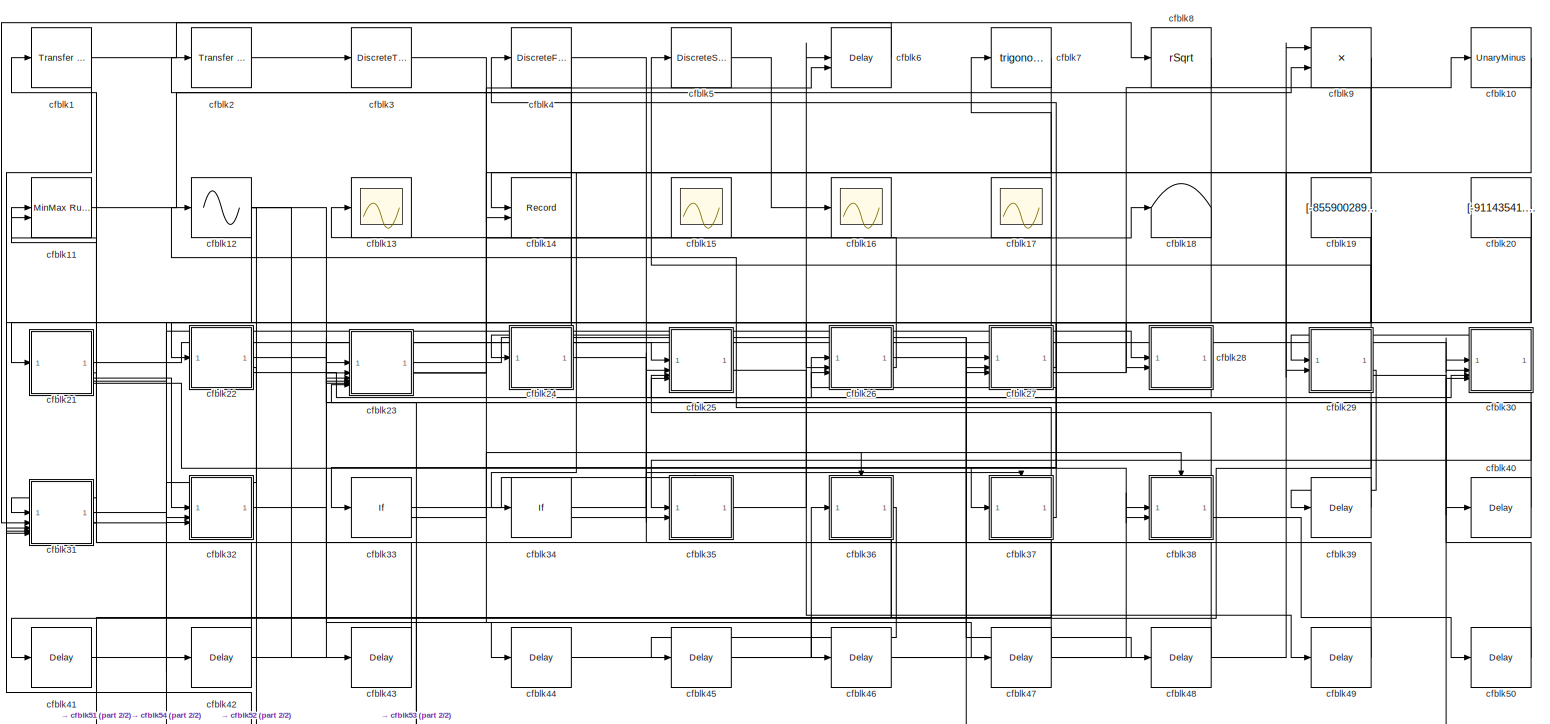
[diagram: root canvas - part 1/2, most of the canvas]
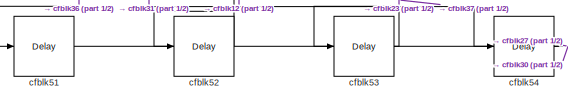
[diagram: root canvas - part 2/2, bottom left region]
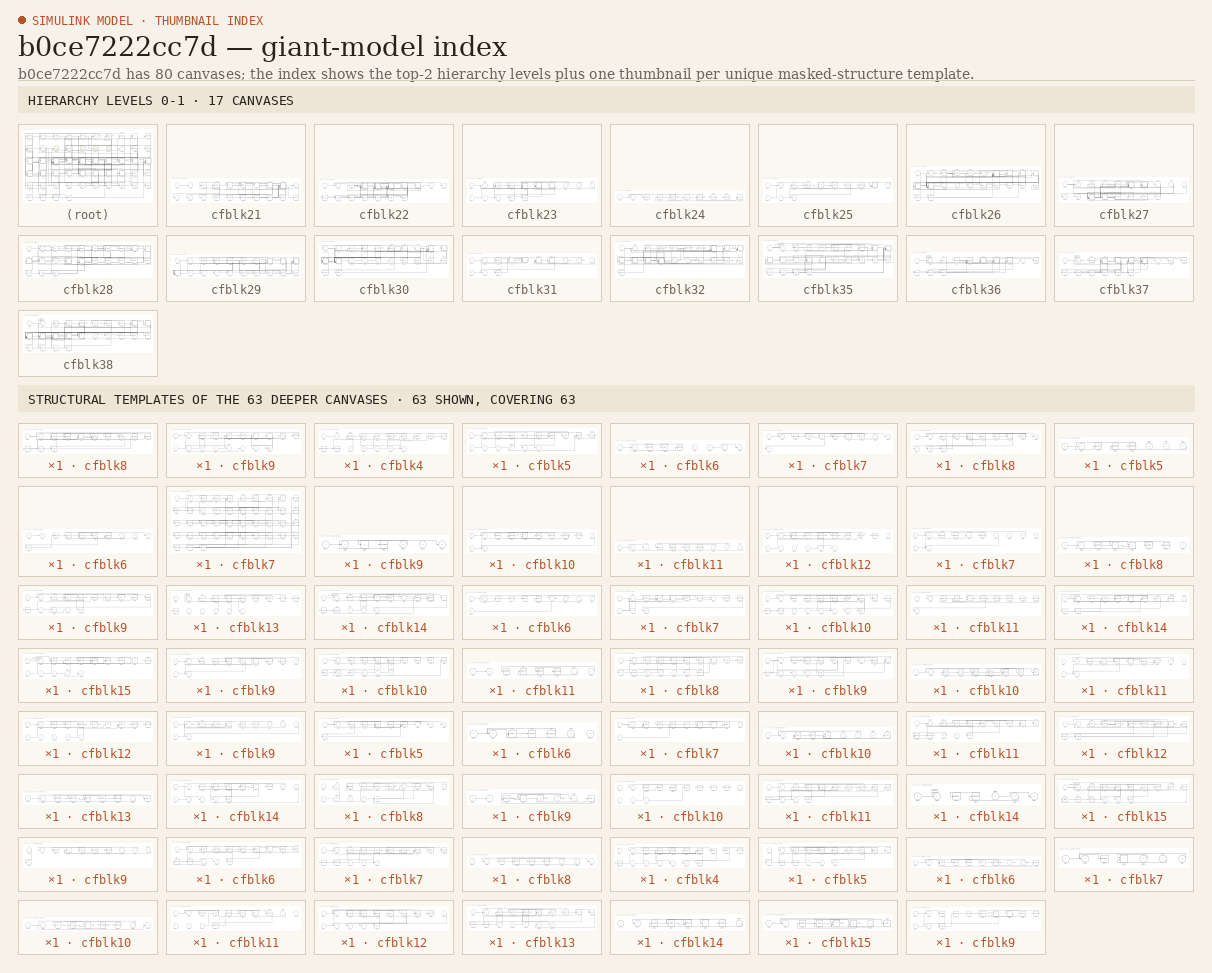
[diagram: thumbnail index - top-2 hierarchy levels (17 canvases) + 63 structural-template representatives of the remaining 63 canvases]
MODEL slx_b0ce7222cc7d
KIND model
CONFIG AbsTol = auto
CONFIG EnableMultiTasking = off
CONFIG FixedStep = auto
CONFIG MaxStep = auto
CONFIG MinStep = auto
CONFIG RelTol = 1e-3
CONFIG SampleTimeConstraint = Unconstrained
CONFIG SolverName = VariableStepAuto
CONFIG StartTime = 0.0
CONFIG StopTime = 10.0
BLOCK [Reference] cfblk1  REF=simulink/Discrete/Transfer Fcn
Lead or Lag
  SourceBlock = simulink/Discrete/Transfer Fcn\nLead or Lag
  SourceType = Lead or Lag Compensator
BLOCK [UnaryMinus] cfblk10
BLOCK [Reference] cfblk11  REF=simulink/Math
Operations/MinMax
Running
Resettable
  SourceBlock = simulink/Math\nOperations/MinMax\nRunning\nResettable
  SourceType = MinMax Running Resettable
BLOCK [Sin] cfblk12
  SampleTime = 0
  TimeSource = Use external signal
BLOCK [Scope] cfblk13
  Floating = off
  NumInputPorts = 1
BLOCK [Record] cfblk14
  CompatibilityTag = XY
  FileSettingsInternal = {"entries":[{"content":{"excelSettings":{"content":{},"type":"Streamout.ExcelSettings"}},"type":"Streamout.FileSettingStorage","uuid":""}],"packageUris":["http:\/\/schema.mathworks.com\/mf0\/streamout_blocks\/R2020a"],"version":"1.0"}
  Layout = [1 1]
  SignalsInternal = {"entries":[{"content":{"signals":[{"content":{"blockPath":[],"dimensions":[1],"domain":"","lineColor":"#a2142f","plots":[1],"port":1,"signalID":8231,"signalName":"XY Graph:1"},"type":"RecordBlkView.Signal","uuid":""},{"content":{"blockPath":[],"dimensions":[1],"domain":"","lineColor":"#139fff","plots":[1],"port":2,"signalID":8234,"signalName":"XY Graph:2"},"type":"RecordBlkView.Signal","uuid":""}...<+146ch>
  VisualizationBindings = {"xyplotplugin":{"info":[{"series":[{"bindingParametersList":[{"parameter":"X-Axis","signalID":8231,"signalName":"XY Graph:1"},{"parameter":"Y-Axis","signalID":8234,"signalName":"XY Graph:2"}],"seriesID":32873}],"subplotID":1}]}}
BLOCK [Scope] cfblk15
  Floating = on
  NumInputPorts = 1
BLOCK [Scope] cfblk16
  Floating = off
  NumInputPorts = 1
BLOCK [Scope] cfblk17
  Floating = on
  NumInputPorts = 1
BLOCK [Terminator] cfblk18
BLOCK [Constant] cfblk19
  SampleTime = 1
  Value = [-855900289.416456]
BLOCK [Reference] cfblk2  REF=simulink/Discrete/Transfer Fcn
Lead or Lag
  SourceBlock = simulink/Discrete/Transfer Fcn\nLead or Lag
  SourceType = Lead or Lag Compensator
BLOCK [Constant] cfblk20
  SampleTime = 1
  Value = [-91143541.893458]
BLOCK [SubSystem] cfblk21
BLOCK [Inport] cfblk21/cfblk1
BLOCK [Outport] cfblk21/cfblk10
  Port = 2
BLOCK [Outport] cfblk21/cfblk11
  Port = 3
BLOCK [Outport] cfblk21/cfblk12
  Port = 4
BLOCK [Outport] cfblk21/cfblk13
  Port = 5
BLOCK [Delay] cfblk21/cfblk14
  InputPortMap = u0
  SampleTime = 1
BLOCK [Delay] cfblk21/cfblk15
  InputPortMap = u0
  SampleTime = 1
BLOCK [Delay] cfblk21/cfblk16
  InputPortMap = u0
  SampleTime = 1
BLOCK [Delay] cfblk21/cfblk17
  InputPortMap = u0
  SampleTime = 1
BLOCK [Delay] cfblk21/cfblk18
  InputPortMap = u0
  SampleTime = 1
BLOCK [Delay] cfblk21/cfblk19
  InputPortMap = u0
  SampleTime = 1
BLOCK [Outport] cfblk21/cfblk2
BLOCK [Delay] cfblk21/cfblk20
  InputPortMap = u0
  SampleTime = 1
BLOCK [Delay] cfblk21/cfblk3
  DelayLengthSource = Input port
  InputPortMap = u0,p1
  SampleTime = 1
BLOCK [Delay] cfblk21/cfblk4
  InputPortMap = u0,e6
  SampleTime = 1
  ShowEnablePort = on
BLOCK [Sum] cfblk21/cfblk5
  IconShape = rectangular
  Inputs = --
BLOCK [Trigonometry] cfblk21/cfblk6
BLOCK [Sum] cfblk21/cfblk7
  Inputs = |++
BLOCK [SubSystem] cfblk21/cfblk8
BLOCK [Inport] cfblk21/cfblk8/cfblk1
BLOCK [DotProduct] cfblk21/cfblk8/cfblk10
  OutDataTypeStr = Inherit: Inherit via internal rule
BLOCK [Constant] cfblk21/cfblk8/cfblk11
  SampleTime = 1
  Value = [-944773892.989427]
BLOCK [Constant] cfblk21/cfblk8/cfblk12
  SampleTime = 1
  Value = [686051792.779080]
BLOCK [Delay] cfblk21/cfblk8/cfblk13
  InputPortMap = u0
  SampleTime = 1
BLOCK [Outport] cfblk21/cfblk8/cfblk2
BLOCK [Delay] cfblk21/cfblk8/cfblk3
  InputPortMap = u0,e6
  SampleTime = 1
  ShowEnablePort = on
BLOCK [PropagationDelay] cfblk21/cfblk8/cfblk4
  SampleTime = 1
BLOCK [Sum] cfblk21/cfblk8/cfblk5
  IconShape = rectangular
BLOCK [MinMax] cfblk21/cfblk8/cfblk6
  Inputs = 3
BLOCK [Signum] cfblk21/cfblk8/cfblk7
BLOCK [Gain] cfblk21/cfblk8/cfblk8
  Gain = [-203246058.316700]
BLOCK [UnaryMinus] cfblk21/cfblk8/cfblk9
BLOCK [SubSystem] cfblk21/cfblk9
BLOCK [Inport] cfblk21/cfblk9/cfblk1
BLOCK [Constant] cfblk21/cfblk9/cfblk10
  SampleTime = 1
  Value = [-394529649.796091]
BLOCK [Inport] cfblk21/cfblk9/cfblk11
  Port = 2
BLOCK [Inport] cfblk21/cfblk9/cfblk12
  Port = 3
BLOCK [Inport] cfblk21/cfblk9/cfblk13
  Port = 4
BLOCK [Inport] cfblk21/cfblk9/cfblk14
  Port = 5
BLOCK [Outport] cfblk21/cfblk9/cfblk15
  Port = 2
BLOCK [Outport] cfblk21/cfblk9/cfblk16
  Port = 3
BLOCK [Outport] cfblk21/cfblk9/cfblk17
  Port = 4
BLOCK [Delay] cfblk21/cfblk9/cfblk18
  InputPortMap = u0
  SampleTime = 1
BLOCK [Outport] cfblk21/cfblk9/cfblk2
BLOCK [DiscreteTransferFcn] cfblk21/cfblk9/cfblk3
  InputPortMap = u0
  SampleTime = 1
BLOCK [UnitDelay] cfblk21/cfblk9/cfblk4
  HasFrameUpgradeWarning = on
BLOCK [Delay] cfblk21/cfblk9/cfblk5
  InputPortMap = u0,e6
  SampleTime = 1
  ShowEnablePort = on
BLOCK [Signum] cfblk21/cfblk9/cfblk6
BLOCK [Product] cfblk21/cfblk9/cfblk7
BLOCK [Sum] cfblk21/cfblk9/cfblk8
  IconShape = rectangular
  Inputs = +
BLOCK [Sin] cfblk21/cfblk9/cfblk9
  SampleTime = 0
  TimeSource = Use external signal
BLOCK [SubSystem] cfblk22
BLOCK [Inport] cfblk22/cfblk1
BLOCK [Outport] cfblk22/cfblk10
  Port = 3
BLOCK [Delay] cfblk22/cfblk11
  InputPortMap = u0
  SampleTime = 1
BLOCK [Delay] cfblk22/cfblk12
  InputPortMap = u0
  SampleTime = 1
BLOCK [Delay] cfblk22/cfblk13
  InputPortMap = u0
  SampleTime = 1
BLOCK [Delay] cfblk22/cfblk14
  InputPortMap = u0
  SampleTime = 1
BLOCK [Delay] cfblk22/cfblk15
  InputPortMap = u0
  SampleTime = 1
BLOCK [Delay] cfblk22/cfblk16
  InputPortMap = u0
  SampleTime = 1
BLOCK [Delay] cfblk22/cfblk17
  InputPortMap = u0
  SampleTime = 1
BLOCK [Outport] cfblk22/cfblk2
BLOCK [Delay] cfblk22/cfblk3
  InputPortMap = u0
  SampleTime = 1
BLOCK [SubSystem] cfblk22/cfblk4
BLOCK [Inport] cfblk22/cfblk4/cfblk1
BLOCK [Rounding] cfblk22/cfblk4/cfblk10
BLOCK [Constant] cfblk22/cfblk4/cfblk11
  SampleTime = 1
  Value = [648507190.837656]
BLOCK [Constant] cfblk22/cfblk4/cfblk12
  SampleTime = 1
  Value = [-274924446.535899]
BLOCK [Inport] cfblk22/cfblk4/cfblk13
  Port = 2
BLOCK [Inport] cfblk22/cfblk4/cfblk14
  Port = 3
BLOCK [Inport] cfblk22/cfblk4/cfblk15
  Port = 4
BLOCK [Inport] cfblk22/cfblk4/cfblk16
  Port = 5
BLOCK [Outport] cfblk22/cfblk4/cfblk17
  Port = 2
BLOCK [Outport] cfblk22/cfblk4/cfblk2
BLOCK [Reference] cfblk22/cfblk4/cfblk3  REF=simulink/Discrete/Transfer Fcn
First Order
  SourceBlock = simulink/Discrete/Transfer Fcn\nFirst Order
  SourceType = First Order Transfer Fcn
BLOCK [Reference] cfblk22/cfblk4/cfblk4  REF=simulink/Discrete/Transfer Fcn
Lead or Lag
  SourceBlock = simulink/Discrete/Transfer Fcn\nLead or Lag
  SourceType = Lead or Lag Compensator
BLOCK [DiscreteFilter] cfblk22/cfblk4/cfblk5
  InputPortMap = u0
  SampleTime = 1
BLOCK [Reference] cfblk22/cfblk4/cfblk6  REF=simulink/Discrete/Difference
  SourceBlock = simulink/Discrete/Difference
  SourceType = Difference
BLOCK [DiscreteTransferFcn] cfblk22/cfblk4/cfblk7
  InputPortMap = u0
  SampleTime = 1
BLOCK [Sqrt] cfblk22/cfblk4/cfblk8
  AlgorithmType = Newton-Raphson
  Operator = rSqrt
BLOCK [Squeeze] cfblk22/cfblk4/cfblk9
BLOCK [SubSystem] cfblk22/cfblk5
BLOCK [Inport] cfblk22/cfblk5/cfblk1
BLOCK [Constant] cfblk22/cfblk5/cfblk10
  SampleTime = 1
  Value = [975173899.107865]
BLOCK [Inport] cfblk22/cfblk5/cfblk11
  Port = 2
BLOCK [Inport] cfblk22/cfblk5/cfblk12
  Port = 3
BLOCK [Inport] cfblk22/cfblk5/cfblk13
  Port = 4
BLOCK [Inport] cfblk22/cfblk5/cfblk14
  Port = 5
BLOCK [Outport] cfblk22/cfblk5/cfblk15
  Port = 2
BLOCK [Outport] cfblk22/cfblk5/cfblk16
  Port = 3
BLOCK [Outport] cfblk22/cfblk5/cfblk2
BLOCK [Delay] cfblk22/cfblk5/cfblk3
  InputPortMap = u0
  SampleTime = 1
BLOCK [DiscreteTransferFcn] cfblk22/cfblk5/cfblk4
  InputPortMap = u0
  SampleTime = 1
BLOCK [Reference] cfblk22/cfblk5/cfblk5  REF=simulink/Discrete/Tapped Delay
  SourceBlock = simulink/Discrete/Tapped Delay
  SourceType = Tapped Delay Line
BLOCK [UnaryMinus] cfblk22/cfblk5/cfblk6
BLOCK [Assignment] cfblk22/cfblk5/cfblk7
  DiagnosticForDimensions = Warning
  IndexOptions = Index vector (dialog)
  Indices = 1
  OutputSizes = 1
BLOCK [Math] cfblk22/cfblk5/cfblk8
  Operator = 10^u
BLOCK [Reference] cfblk22/cfblk5/cfblk9  REF=simulink/Math
Operations/MinMax
Running
Resettable
  SourceBlock = simulink/Math\nOperations/MinMax\nRunning\nResettable
  SourceType = MinMax Running Resettable
BLOCK [SubSystem] cfblk22/cfblk6
BLOCK [Inport] cfblk22/cfblk6/cfblk1
BLOCK [Outport] cfblk22/cfblk6/cfblk2
BLOCK [Reference] cfblk22/cfblk6/cfblk3  REF=simulink/Discrete/Transfer Fcn
First Order
  SourceBlock = simulink/Discrete/Transfer Fcn\nFirst Order
  SourceType = First Order Transfer Fcn
BLOCK [Bias] cfblk22/cfblk6/cfblk4
  Bias = [472249553.101924]
  SaturateOnIntegerOverflow = off
BLOCK [PermuteDimensions] cfblk22/cfblk6/cfblk5
BLOCK [Inport] cfblk22/cfblk6/cfblk6
  Port = 2
BLOCK [Inport] cfblk22/cfblk6/cfblk7
  Port = 3
BLOCK [Inport] cfblk22/cfblk6/cfblk8
  Port = 4
BLOCK [Outport] cfblk22/cfblk6/cfblk9
  Port = 2
BLOCK [SubSystem] cfblk22/cfblk7
BLOCK [Inport] cfblk22/cfblk7/cfblk1
BLOCK [Outport] cfblk22/cfblk7/cfblk10
  Port = 2
BLOCK [Outport] cfblk22/cfblk7/cfblk11
  Port = 3
BLOCK [Outport] cfblk22/cfblk7/cfblk2
BLOCK [Reference] cfblk22/cfblk7/cfblk3  REF=simulink/Discrete/Tapped Delay
  SourceBlock = simulink/Discrete/Tapped Delay
  SourceType = Tapped Delay Line
BLOCK [UnitDelay] cfblk22/cfblk7/cfblk4
  HasFrameUpgradeWarning = on
BLOCK [Product] cfblk22/cfblk7/cfblk5
BLOCK [Trigonometry] cfblk22/cfblk7/cfblk6
BLOCK [Sum] cfblk22/cfblk7/cfblk7
  IconShape = rectangular
  Inputs = +
BLOCK [Math] cfblk22/cfblk7/cfblk8
  Operator = log
BLOCK [Inport] cfblk22/cfblk7/cfblk9
  Port = 2
BLOCK [SubSystem] cfblk22/cfblk8
BLOCK [Inport] cfblk22/cfblk8/cfblk1
BLOCK [Outport] cfblk22/cfblk8/cfblk10
  Port = 2
BLOCK [Outport] cfblk22/cfblk8/cfblk11
  Port = 3
BLOCK [Delay] cfblk22/cfblk8/cfblk12
  InputPortMap = u0
  SampleTime = 1
BLOCK [Delay] cfblk22/cfblk8/cfblk13
  InputPortMap = u0
  SampleTime = 1
BLOCK [Outport] cfblk22/cfblk8/cfblk2
BLOCK [DiscreteFilter] cfblk22/cfblk8/cfblk3
  InputPortMap = u0
  SampleTime = 1
BLOCK [Delay] cfblk22/cfblk8/cfblk4
  InputPortMap = u0,e6
  SampleTime = 1
  ShowEnablePort = on
BLOCK [Delay] cfblk22/cfblk8/cfblk5
  DelayLengthSource = Input port
  InputPortMap = u0,p1
  SampleTime = 1
BLOCK [DiscreteFir] cfblk22/cfblk8/cfblk6
  InputPortMap = u0
  OutputPortMap = o0
  SampleTime = 1
BLOCK [Bias] cfblk22/cfblk8/cfblk7
  Bias = [39582363.719997]
  SaturateOnIntegerOverflow = off
BLOCK [Abs] cfblk22/cfblk8/cfblk8
  SaturateOnIntegerOverflow = off
BLOCK [Constant] cfblk22/cfblk8/cfblk9
  SampleTime = 1
  Value = [-572467626.401414]
BLOCK [Outport] cfblk22/cfblk9
  Port = 2
BLOCK [SubSystem] cfblk23
BLOCK [Inport] cfblk23/cfblk1
BLOCK [Inport] cfblk23/cfblk10
  Port = 4
BLOCK [Inport] cfblk23/cfblk11
  Port = 5
BLOCK [Inport] cfblk23/cfblk12
  Port = 6
BLOCK [Outport] cfblk23/cfblk13
  Port = 2
BLOCK [Delay] cfblk23/cfblk14
  InputPortMap = u0
  SampleTime = 1
BLOCK [Delay] cfblk23/cfblk15
  InputPortMap = u0
  SampleTime = 1
BLOCK [Outport] cfblk23/cfblk2
BLOCK [Delay] cfblk23/cfblk3
  InputPortMap = u0,e6
  SampleTime = 1
  ShowEnablePort = on
BLOCK [DotProduct] cfblk23/cfblk4
  OutDataTypeStr = Inherit: Inherit via internal rule
BLOCK [SubSystem] cfblk23/cfblk5
BLOCK [Inport] cfblk23/cfblk5/cfblk1
BLOCK [Outport] cfblk23/cfblk5/cfblk2
BLOCK [Squeeze] cfblk23/cfblk5/cfblk3
BLOCK [PermuteDimensions] cfblk23/cfblk5/cfblk4
BLOCK [Constant] cfblk23/cfblk5/cfblk5
  SampleTime = 1
  Value = [643765402.773875]
BLOCK [Inport] cfblk23/cfblk5/cfblk6
  Port = 2
BLOCK [Inport] cfblk23/cfblk5/cfblk7
  Port = 3
BLOCK [Inport] cfblk23/cfblk5/cfblk8
  Port = 4
BLOCK [SubSystem] cfblk23/cfblk6
BLOCK [Inport] cfblk23/cfblk6/cfblk1
BLOCK [Outport] cfblk23/cfblk6/cfblk10
  Port = 2
BLOCK [Delay] cfblk23/cfblk6/cfblk11
  InputPortMap = u0
  SampleTime = 1
BLOCK [Outport] cfblk23/cfblk6/cfblk2
BLOCK [Reference] cfblk23/cfblk6/cfblk3  REF=simulink/Discrete/Difference
  SourceBlock = simulink/Discrete/Difference
  SourceType = Difference
BLOCK [Delay] cfblk23/cfblk6/cfblk4
  InputPortMap = u0
  SampleTime = 1
BLOCK [Delay] cfblk23/cfblk6/cfblk5
  InputPortMap = u0,e6
  SampleTime = 1
  ShowEnablePort = on
BLOCK [Math] cfblk23/cfblk6/cfblk6
  Operator = log
BLOCK [Assignment] cfblk23/cfblk6/cfblk7
  DiagnosticForDimensions = Warning
  IndexOptions = Index vector (dialog)
  Indices = 1
  OutputSizes = 1
BLOCK [Inport] cfblk23/cfblk6/cfblk8
  Port = 2
BLOCK [Inport] cfblk23/cfblk6/cfblk9
  Port = 3
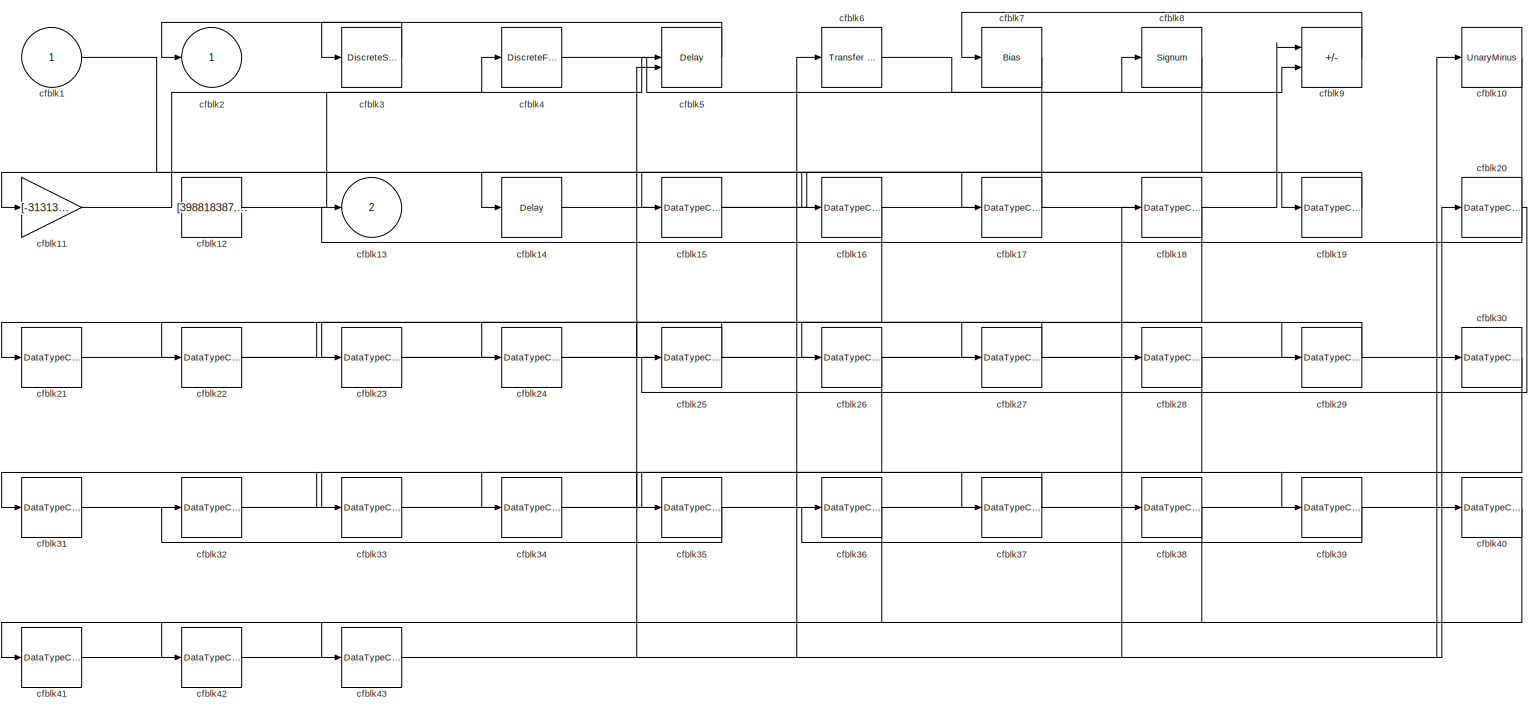
[diagram: cfblk23/cfblk7 - part 1/1, most of the canvas]
BLOCK [SubSystem] cfblk23/cfblk7
BLOCK [Inport] cfblk23/cfblk7/cfblk1
BLOCK [UnaryMinus] cfblk23/cfblk7/cfblk10
BLOCK [Gain] cfblk23/cfblk7/cfblk11
  Gain = [-313132436.671715]
BLOCK [Constant] cfblk23/cfblk7/cfblk12
  SampleTime = 1
  Value = [398818387.262440]
BLOCK [Outport] cfblk23/cfblk7/cfblk13
  Port = 2
BLOCK [Delay] cfblk23/cfblk7/cfblk14
  InputPortMap = u0
  SampleTime = 1
BLOCK [DataTypeConversion] cfblk23/cfblk7/cfblk15
  RndMeth = Floor
  SaturateOnIntegerOverflow = off
BLOCK [DataTypeConversion] cfblk23/cfblk7/cfblk16
  RndMeth = Floor
  SaturateOnIntegerOverflow = off
BLOCK [DataTypeConversion] cfblk23/cfblk7/cfblk17
  RndMeth = Floor
  SaturateOnIntegerOverflow = off
BLOCK [DataTypeConversion] cfblk23/cfblk7/cfblk18
  RndMeth = Floor
  SaturateOnIntegerOverflow = off
BLOCK [DataTypeConversion] cfblk23/cfblk7/cfblk19
  RndMeth = Floor
  SaturateOnIntegerOverflow = off
BLOCK [Outport] cfblk23/cfblk7/cfblk2
BLOCK [DataTypeConversion] cfblk23/cfblk7/cfblk20
  RndMeth = Floor
  SaturateOnIntegerOverflow = off
BLOCK [DataTypeConversion] cfblk23/cfblk7/cfblk21
  RndMeth = Floor
  SaturateOnIntegerOverflow = off
BLOCK [DataTypeConversion] cfblk23/cfblk7/cfblk22
  RndMeth = Floor
  SaturateOnIntegerOverflow = off
BLOCK [DataTypeConversion] cfblk23/cfblk7/cfblk23
  RndMeth = Floor
  SaturateOnIntegerOverflow = off
BLOCK [DataTypeConversion] cfblk23/cfblk7/cfblk24
  RndMeth = Floor
  SaturateOnIntegerOverflow = off
BLOCK [DataTypeConversion] cfblk23/cfblk7/cfblk25
  RndMeth = Floor
  SaturateOnIntegerOverflow = off
BLOCK [DataTypeConversion] cfblk23/cfblk7/cfblk26
  RndMeth = Floor
  SaturateOnIntegerOverflow = off
BLOCK [DataTypeConversion] cfblk23/cfblk7/cfblk27
  RndMeth = Floor
  SaturateOnIntegerOverflow = off
BLOCK [DataTypeConversion] cfblk23/cfblk7/cfblk28
  RndMeth = Floor
  SaturateOnIntegerOverflow = off
BLOCK [DataTypeConversion] cfblk23/cfblk7/cfblk29
  RndMeth = Floor
  SaturateOnIntegerOverflow = off
BLOCK [DiscreteStateSpace] cfblk23/cfblk7/cfblk3
BLOCK [DataTypeConversion] cfblk23/cfblk7/cfblk30
  RndMeth = Floor
  SaturateOnIntegerOverflow = off
BLOCK [DataTypeConversion] cfblk23/cfblk7/cfblk31
  RndMeth = Floor
  SaturateOnIntegerOverflow = off
BLOCK [DataTypeConversion] cfblk23/cfblk7/cfblk32
  RndMeth = Floor
  SaturateOnIntegerOverflow = off
BLOCK [DataTypeConversion] cfblk23/cfblk7/cfblk33
  RndMeth = Floor
  SaturateOnIntegerOverflow = off
BLOCK [DataTypeConversion] cfblk23/cfblk7/cfblk34
  RndMeth = Floor
  SaturateOnIntegerOverflow = off
BLOCK [DataTypeConversion] cfblk23/cfblk7/cfblk35
  RndMeth = Floor
  SaturateOnIntegerOverflow = off
BLOCK [DataTypeConversion] cfblk23/cfblk7/cfblk36
  RndMeth = Floor
  SaturateOnIntegerOverflow = off
BLOCK [DataTypeConversion] cfblk23/cfblk7/cfblk37
  RndMeth = Floor
  SaturateOnIntegerOverflow = off
BLOCK [DataTypeConversion] cfblk23/cfblk7/cfblk38
  RndMeth = Floor
  SaturateOnIntegerOverflow = off
BLOCK [DataTypeConversion] cfblk23/cfblk7/cfblk39
  RndMeth = Floor
  SaturateOnIntegerOverflow = off
BLOCK [DiscreteFilter] cfblk23/cfblk7/cfblk4
  InputPortMap = u0
  SampleTime = 1
BLOCK [DataTypeConversion] cfblk23/cfblk7/cfblk40
  RndMeth = Floor
  SaturateOnIntegerOverflow = off
BLOCK [DataTypeConversion] cfblk23/cfblk7/cfblk41
  RndMeth = Floor
  SaturateOnIntegerOverflow = off
BLOCK [DataTypeConversion] cfblk23/cfblk7/cfblk42
  RndMeth = Floor
  SaturateOnIntegerOverflow = off
BLOCK [DataTypeConversion] cfblk23/cfblk7/cfblk43
  RndMeth = Floor
  SaturateOnIntegerOverflow = off
BLOCK [Delay] cfblk23/cfblk7/cfblk5
  DelayLengthSource = Input port
  InputPortMap = u0,p1
  SampleTime = 1
BLOCK [Reference] cfblk23/cfblk7/cfblk6  REF=simulink/Discrete/Transfer Fcn
Real Zero
  SourceBlock = simulink/Discrete/Transfer Fcn\nReal Zero
  SourceType = Transfer Fcn Real Zero
BLOCK [Bias] cfblk23/cfblk7/cfblk7
  Bias = [147755228.771322]
  SaturateOnIntegerOverflow = off
BLOCK [Signum] cfblk23/cfblk7/cfblk8
BLOCK [Sum] cfblk23/cfblk7/cfblk9
  IconShape = rectangular
  Inputs = -+
BLOCK [Inport] cfblk23/cfblk8
  Port = 2
BLOCK [Inport] cfblk23/cfblk9
  Port = 3
BLOCK [SubSystem] cfblk24
BLOCK [Inport] cfblk24/cfblk1
BLOCK [Delay] cfblk24/cfblk10
  InputPortMap = u0
  SampleTime = 1
BLOCK [Outport] cfblk24/cfblk2
BLOCK [DiscreteFilter] cfblk24/cfblk3
  InputPortMap = u0
  SampleTime = 1
BLOCK [DiscreteFir] cfblk24/cfblk4
  InputPortMap = u0
  OutputPortMap = o0
  SampleTime = 1
BLOCK [DiscreteZeroPole] cfblk24/cfblk5
  Gain = 1
  Poles = [0 0.5]
BLOCK [Delay] cfblk24/cfblk6
  InputPortMap = u0
  SampleTime = 1
BLOCK [Constant] cfblk24/cfblk7
  SampleTime = 1
  Value = [-62407145.955087]
BLOCK [Constant] cfblk24/cfblk8
  SampleTime = 1
  Value = [-969597056.657864]
BLOCK [Constant] cfblk24/cfblk9
  SampleTime = 1
  Value = [861290801.323652]
BLOCK [SubSystem] cfblk25
BLOCK [Inport] cfblk25/cfblk1
BLOCK [Inport] cfblk25/cfblk10
  Port = 2
BLOCK [Inport] cfblk25/cfblk11
  Port = 3
BLOCK [Inport] cfblk25/cfblk12
  Port = 4
BLOCK [Outport] cfblk25/cfblk13
  Port = 2
BLOCK [Outport] cfblk25/cfblk2
BLOCK [DiscreteFir] cfblk25/cfblk3
  InputPortMap = u0
  OutputPortMap = o0
  SampleTime = 1
BLOCK [Reference] cfblk25/cfblk4  REF=simulink/Discrete/Difference
  SourceBlock = simulink/Discrete/Difference
  SourceType = Difference
BLOCK [Product] cfblk25/cfblk5
BLOCK [Sqrt] cfblk25/cfblk6
BLOCK [Constant] cfblk25/cfblk7
  SampleTime = 1
  Value = [-116065568.757723]
BLOCK [Constant] cfblk25/cfblk8
  SampleTime = 1
  Value = [768182998.999454]
BLOCK [SubSystem] cfblk25/cfblk9
BLOCK [Inport] cfblk25/cfblk9/cfblk1
BLOCK [Outport] cfblk25/cfblk9/cfblk2
BLOCK [Product] cfblk25/cfblk9/cfblk3
  Inputs = *
BLOCK [Constant] cfblk25/cfblk9/cfblk4
  SampleTime = 1
  Value = [-224110532.540288]
BLOCK [Inport] cfblk25/cfblk9/cfblk5
  Port = 2
BLOCK [Inport] cfblk25/cfblk9/cfblk6
  Port = 3
BLOCK [Outport] cfblk25/cfblk9/cfblk7
  Port = 2
BLOCK [SubSystem] cfblk26
BLOCK [Inport] cfblk26/cfblk1
BLOCK [SubSystem] cfblk26/cfblk10
BLOCK [Inport] cfblk26/cfblk10/cfblk1
BLOCK [Inport] cfblk26/cfblk10/cfblk10
  Port = 2
BLOCK [Inport] cfblk26/cfblk10/cfblk11
  Port = 3
BLOCK [Outport] cfblk26/cfblk10/cfblk12
  Port = 2
BLOCK [Outport] cfblk26/cfblk10/cfblk2
BLOCK [DiscreteFilter] cfblk26/cfblk10/cfblk3
  InputPortMap = u0
  SampleTime = 1
BLOCK [Reference] cfblk26/cfblk10/cfblk4  REF=slpidlib/PID Controller (2DOF)
  LibrarySourceBlock = simulink/Discrete/Discrete PID Controller (2DOF)
  SourceBlock = slpidlib/PID Controller (2DOF)
  SourceType = PID 2dof
BLOCK [Product] cfblk26/cfblk10/cfblk5
BLOCK [MinMax] cfblk26/cfblk10/cfblk6
  Function = max
BLOCK [Reshape] cfblk26/cfblk10/cfblk7
BLOCK [Constant] cfblk26/cfblk10/cfblk8
  SampleTime = 1
  Value = [-444285898.107445]
BLOCK [Constant] cfblk26/cfblk10/cfblk9
  SampleTime = 1
  Value = [110561584.175398]
BLOCK [SubSystem] cfblk26/cfblk11
BLOCK [Inport] cfblk26/cfblk11/cfblk1
BLOCK [Inport] cfblk26/cfblk11/cfblk10
  Port = 4
BLOCK [Outport] cfblk26/cfblk11/cfblk2
BLOCK [Product] cfblk26/cfblk11/cfblk3
  Inputs = *
BLOCK [ComplexToMagnitudeAngle] cfblk26/cfblk11/cfblk4
BLOCK [ComplexToMagnitudeAngle] cfblk26/cfblk11/cfblk5
BLOCK [Constant] cfblk26/cfblk11/cfblk6
  SampleTime = 1
  Value = [-195519243.471746]
BLOCK [Constant] cfblk26/cfblk11/cfblk7
  SampleTime = 1
  Value = [79708844.362110]
BLOCK [Inport] cfblk26/cfblk11/cfblk8
  Port = 2
BLOCK [Inport] cfblk26/cfblk11/cfblk9
  Port = 3
BLOCK [SubSystem] cfblk26/cfblk12
BLOCK [Inport] cfblk26/cfblk12/cfblk1
BLOCK [Inport] cfblk26/cfblk12/cfblk10
  Port = 2
BLOCK [Inport] cfblk26/cfblk12/cfblk11
  Port = 3
BLOCK [Inport] cfblk26/cfblk12/cfblk12
  Port = 4
BLOCK [Inport] cfblk26/cfblk12/cfblk13
  Port = 5
BLOCK [Inport] cfblk26/cfblk12/cfblk14
  Port = 6
BLOCK [Inport] cfblk26/cfblk12/cfblk15
  Port = 7
BLOCK [Outport] cfblk26/cfblk12/cfblk16
  Port = 2
BLOCK [Outport] cfblk26/cfblk12/cfblk2
BLOCK [PropagationDelay] cfblk26/cfblk12/cfblk3
  SampleTime = 1
BLOCK [Reference] cfblk26/cfblk12/cfblk4  REF=slpidlib/PID Controller
  LibrarySourceBlock = simulink/Discrete/Discrete PID Controller
  SourceBlock = slpidlib/PID Controller
  SourceType = PID 1dof
BLOCK [Reference] cfblk26/cfblk12/cfblk5  REF=simulink/Discrete/Tapped Delay
  SourceBlock = simulink/Discrete/Tapped Delay
  SourceType = Tapped Delay Line
BLOCK [Reference] cfblk26/cfblk12/cfblk6  REF=simulink/Discrete/Tapped Delay
  SourceBlock = simulink/Discrete/Tapped Delay
  SourceType = Tapped Delay Line
BLOCK [Reference] cfblk26/cfblk12/cfblk7  REF=simulink/Discrete/Tapped Delay
  SourceBlock = simulink/Discrete/Tapped Delay
  SourceType = Tapped Delay Line
BLOCK [Gain] cfblk26/cfblk12/cfblk8
  Gain = [-201467499.152364]
BLOCK [Constant] cfblk26/cfblk12/cfblk9
  SampleTime = 1
  Value = [497385123.665515]
BLOCK [Inport] cfblk26/cfblk13
  Port = 2
BLOCK [Inport] cfblk26/cfblk14
  Port = 3
BLOCK [Outport] cfblk26/cfblk15
  Port = 2
BLOCK [Delay] cfblk26/cfblk16
  InputPortMap = u0
  SampleTime = 1
BLOCK [Delay] cfblk26/cfblk17
  InputPortMap = u0
  SampleTime = 1
BLOCK [Delay] cfblk26/cfblk18
  InputPortMap = u0
  SampleTime = 1
BLOCK [Delay] cfblk26/cfblk19
  InputPortMap = u0
  SampleTime = 1
BLOCK [Outport] cfblk26/cfblk2
BLOCK [Delay] cfblk26/cfblk20
  InputPortMap = u0
  SampleTime = 1
BLOCK [Delay] cfblk26/cfblk21
  InputPortMap = u0
  SampleTime = 1
BLOCK [Delay] cfblk26/cfblk22
  InputPortMap = u0
  SampleTime = 1
BLOCK [Reference] cfblk26/cfblk3  REF=simulink/Discrete/Tapped Delay
  SourceBlock = simulink/Discrete/Tapped Delay
  SourceType = Tapped Delay Line
BLOCK [UnitDelay] cfblk26/cfblk4
  HasFrameUpgradeWarning = on
BLOCK [Bias] cfblk26/cfblk5
  Bias = [-832326298.735195]
  SaturateOnIntegerOverflow = off
BLOCK [Sum] cfblk26/cfblk6
  Inputs = |++
BLOCK [SubSystem] cfblk26/cfblk7
BLOCK [Inport] cfblk26/cfblk7/cfblk1
BLOCK [Inport] cfblk26/cfblk7/cfblk10
  Port = 5
BLOCK [Inport] cfblk26/cfblk7/cfblk11
  Port = 6
BLOCK [Outport] cfblk26/cfblk7/cfblk12
  Port = 2
BLOCK [Outport] cfblk26/cfblk7/cfblk2
BLOCK [Reference] cfblk26/cfblk7/cfblk3  REF=simulink/Discrete/Tapped Delay
  SourceBlock = simulink/Discrete/Tapped Delay
  SourceType = Tapped Delay Line
BLOCK [PermuteDimensions] cfblk26/cfblk7/cfblk4
BLOCK [Sum] cfblk26/cfblk7/cfblk5
  IconShape = rectangular
  Inputs = +
BLOCK [Constant] cfblk26/cfblk7/cfblk6
  SampleTime = 1
  Value = [-114840235.410385]
BLOCK [Inport] cfblk26/cfblk7/cfblk7
  Port = 2
BLOCK [Inport] cfblk26/cfblk7/cfblk8
  Port = 3
BLOCK [Inport] cfblk26/cfblk7/cfblk9
  Port = 4
BLOCK [SubSystem] cfblk26/cfblk8
BLOCK [Inport] cfblk26/cfblk8/cfblk1
BLOCK [Outport] cfblk26/cfblk8/cfblk2
BLOCK [Reference] cfblk26/cfblk8/cfblk3  REF=simulink/Discrete/Transfer Fcn
Lead or Lag
  SourceBlock = simulink/Discrete/Transfer Fcn\nLead or Lag
  SourceType = Lead or Lag Compensator
BLOCK [Sum] cfblk26/cfblk8/cfblk4
  IconShape = rectangular
  Inputs = +
BLOCK [Product] cfblk26/cfblk8/cfblk5
  Inputs = **
BLOCK [Bias] cfblk26/cfblk8/cfblk6
  Bias = [533778897.403462]
  SaturateOnIntegerOverflow = off
BLOCK [Constant] cfblk26/cfblk8/cfblk7
  SampleTime = 1
  Value = [133452723.711656]
BLOCK [Inport] cfblk26/cfblk8/cfblk8
  Port = 2
BLOCK [SubSystem] cfblk26/cfblk9
BLOCK [Inport] cfblk26/cfblk9/cfblk1
BLOCK [PermuteDimensions] cfblk26/cfblk9/cfblk10
BLOCK [Constant] cfblk26/cfblk9/cfblk11
  SampleTime = 1
  Value = [-85184821.182690]
BLOCK [Inport] cfblk26/cfblk9/cfblk12
  Port = 2
BLOCK [Outport] cfblk26/cfblk9/cfblk13
  Port = 2
BLOCK [Outport] cfblk26/cfblk9/cfblk14
  Port = 3
BLOCK [Delay] cfblk26/cfblk9/cfblk15
  InputPortMap = u0
  SampleTime = 1
BLOCK [Outport] cfblk26/cfblk9/cfblk2
BLOCK [UnitDelay] cfblk26/cfblk9/cfblk3
  HasFrameUpgradeWarning = on
BLOCK [Delay] cfblk26/cfblk9/cfblk4
  InputPortMap = u0,e6
  SampleTime = 1
  ShowEnablePort = on
BLOCK [Reference] cfblk26/cfblk9/cfblk5  REF=simulink/Discrete/Transfer Fcn
First Order
  SourceBlock = simulink/Discrete/Transfer Fcn\nFirst Order
  SourceType = First Order Transfer Fcn
BLOCK [Reference] cfblk26/cfblk9/cfblk6  REF=simulink/Discrete/Transfer Fcn
Real Zero
  SourceBlock = simulink/Discrete/Transfer Fcn\nReal Zero
  SourceType = Transfer Fcn Real Zero
BLOCK [Reference] cfblk26/cfblk9/cfblk7  REF=simulink/Discrete/Transfer Fcn
Real Zero
  SourceBlock = simulink/Discrete/Transfer Fcn\nReal Zero
  SourceType = Transfer Fcn Real Zero
BLOCK [Math] cfblk26/cfblk9/cfblk8
  Operator = log
BLOCK [Signum] cfblk26/cfblk9/cfblk9
BLOCK [SubSystem] cfblk27
BLOCK [Inport] cfblk27/cfblk1
BLOCK [Inport] cfblk27/cfblk10
  Port = 3
BLOCK [Outport] cfblk27/cfblk11
  Port = 2
BLOCK [Outport] cfblk27/cfblk12
  Port = 3
BLOCK [SubSystem] cfblk27/cfblk13
  TreatAsAtomicUnit = on
BLOCK [ActionPort] cfblk27/cfblk13/Action Port
  ActionPortLabel = if(u1 >= 0)
BLOCK [Inport] cfblk27/cfblk13/cfblk1
BLOCK [Constant] cfblk27/cfblk13/cfblk10
  SampleTime = 1
  Value = [-948128083.942944]
BLOCK [Constant] cfblk27/cfblk13/cfblk11
  SampleTime = 1
  Value = [490005400.726542]
BLOCK [Inport] cfblk27/cfblk13/cfblk12
  Port = 2
BLOCK [Inport] cfblk27/cfblk13/cfblk13
  Port = 3
BLOCK [Inport] cfblk27/cfblk13/cfblk14
  Port = 4
BLOCK [Inport] cfblk27/cfblk13/cfblk15
  Port = 5
BLOCK [Outport] cfblk27/cfblk13/cfblk16
  Port = 2
BLOCK [Outport] cfblk27/cfblk13/cfblk2
BLOCK [Delay] cfblk27/cfblk13/cfblk3
  InputPortMap = u0
BLOCK [Reference] cfblk27/cfblk13/cfblk4  REF=simulink/Discrete/Transfer Fcn
Real Zero
  SourceBlock = simulink/Discrete/Transfer Fcn\nReal Zero
  SourceType = Transfer Fcn Real Zero
BLOCK [UnaryMinus] cfblk27/cfblk13/cfblk5
BLOCK [PermuteDimensions] cfblk27/cfblk13/cfblk6
BLOCK [Math] cfblk27/cfblk13/cfblk7
  Operator = square
BLOCK [Sqrt] cfblk27/cfblk13/cfblk8
  AlgorithmType = Newton-Raphson
  Operator = rSqrt
BLOCK [Constant] cfblk27/cfblk13/cfblk9
  SampleTime = 1
  Value = [-184797246.634087]
BLOCK [SubSystem] cfblk27/cfblk14
  TreatAsAtomicUnit = on
BLOCK [ActionPort] cfblk27/cfblk14/Action Port
  ActionPortLabel = else
BLOCK [Inport] cfblk27/cfblk14/cfblk1
BLOCK [Product] cfblk27/cfblk14/cfblk10
  Inputs = *
BLOCK [Constant] cfblk27/cfblk14/cfblk11
  SampleTime = 1
  Value = [434062338.445238]
BLOCK [Constant] cfblk27/cfblk14/cfblk12
  SampleTime = 1
  Value = [-276938237.314802]
BLOCK [Inport] cfblk27/cfblk14/cfblk13
  Port = 2
BLOCK [Inport] cfblk27/cfblk14/cfblk14
  Port = 3
BLOCK [Outport] cfblk27/cfblk14/cfblk15
  Port = 2
BLOCK [Outport] cfblk27/cfblk14/cfblk2
BLOCK [DiscreteTransferFcn] cfblk27/cfblk14/cfblk3
  InputPortMap = u0
BLOCK [PermuteDimensions] cfblk27/cfblk14/cfblk4
BLOCK [Abs] cfblk27/cfblk14/cfblk5
  SaturateOnIntegerOverflow = off
BLOCK [Sqrt] cfblk27/cfblk14/cfblk6
  AlgorithmType = Newton-Raphson
  Operator = rSqrt
BLOCK [Sum] cfblk27/cfblk14/cfblk7
  Inputs = |++
BLOCK [ComplexToMagnitudeAngle] cfblk27/cfblk14/cfblk8
BLOCK [Assignment] cfblk27/cfblk14/cfblk9
  DiagnosticForDimensions = Warning
  IndexOptions = Index vector (dialog)
  Indices = 1
  OutputSizes = 1
BLOCK [Delay] cfblk27/cfblk15
  InputPortMap = u0
  SampleTime = 1
BLOCK [Delay] cfblk27/cfblk16
  InputPortMap = u0
  SampleTime = 1
BLOCK [Delay] cfblk27/cfblk17
  InputPortMap = u0
  SampleTime = 1
BLOCK [Delay] cfblk27/cfblk18
  InputPortMap = u0
  SampleTime = 1
BLOCK [Outport] cfblk27/cfblk2
BLOCK [Math] cfblk27/cfblk3
  Operator = hermitian
BLOCK [Reshape] cfblk27/cfblk4
BLOCK [Math] cfblk27/cfblk5
  Operator = mod
BLOCK [SubSystem] cfblk27/cfblk6
BLOCK [Inport] cfblk27/cfblk6/cfblk1
BLOCK [Inport] cfblk27/cfblk6/cfblk10
  Port = 4
BLOCK [Inport] cfblk27/cfblk6/cfblk11
  Port = 5
BLOCK [Outport] cfblk27/cfblk6/cfblk2
BLOCK [Reference] cfblk27/cfblk6/cfblk3  REF=simulink/Discrete/Transfer Fcn
First Order
  SourceBlock = simulink/Discrete/Transfer Fcn\nFirst Order
  SourceType = First Order Transfer Fcn
BLOCK [Rounding] cfblk27/cfblk6/cfblk4
BLOCK [Reference] cfblk27/cfblk6/cfblk5  REF=simulink/Math
Operations/Slider
Gain
  SourceBlock = simulink/Math\nOperations/Slider\nGain
  SourceType = Slider Gain
BLOCK [MinMax] cfblk27/cfblk6/cfblk6
BLOCK [Sum] cfblk27/cfblk6/cfblk7
  Inputs = |++
BLOCK [Inport] cfblk27/cfblk6/cfblk8
  Port = 2
BLOCK [Inport] cfblk27/cfblk6/cfblk9
  Port = 3
BLOCK [SubSystem] cfblk27/cfblk7
BLOCK [Inport] cfblk27/cfblk7/cfblk1
BLOCK [Constant] cfblk27/cfblk7/cfblk10
  SampleTime = 1
  Value = [582284518.256667]
BLOCK [Inport] cfblk27/cfblk7/cfblk11
  Port = 2
BLOCK [Inport] cfblk27/cfblk7/cfblk12
  Port = 3
BLOCK [Outport] cfblk27/cfblk7/cfblk13
  Port = 2
BLOCK [Outport] cfblk27/cfblk7/cfblk2
BLOCK [DiscreteFilter] cfblk27/cfblk7/cfblk3
  InputPortMap = u0
  SampleTime = 1
BLOCK [Delay] cfblk27/cfblk7/cfblk4
  DelayLengthSource = Input port
  InputPortMap = u0,p1
  SampleTime = 1
BLOCK [Sum] cfblk27/cfblk7/cfblk5
  IconShape = rectangular
  Inputs = +-
BLOCK [Sqrt] cfblk27/cfblk7/cfblk6
  AlgorithmType = Newton-Raphson
  Operator = rSqrt
BLOCK [Rounding] cfblk27/cfblk7/cfblk7
BLOCK [Sum] cfblk27/cfblk7/cfblk8
  Inputs = |++
BLOCK [Constant] cfblk27/cfblk7/cfblk9
  SampleTime = 1
  Value = [-744069437.869244]
BLOCK [If] cfblk27/cfblk8
  IfExpression = u1 >= 0
  SampleTime = 1
BLOCK [Inport] cfblk27/cfblk9
  Port = 2
BLOCK [SubSystem] cfblk28
BLOCK [Inport] cfblk28/cfblk1
BLOCK [SubSystem] cfblk28/cfblk10
BLOCK [Inport] cfblk28/cfblk10/cfblk1
BLOCK [Constant] cfblk28/cfblk10/cfblk10
  SampleTime = 1
  Value = [646209084.084435]
BLOCK [Constant] cfblk28/cfblk10/cfblk11
  SampleTime = 1
  Value = [-257284982.765856]
BLOCK [Constant] cfblk28/cfblk10/cfblk12
  SampleTime = 1
  Value = [-211443739.235091]
BLOCK [Inport] cfblk28/cfblk10/cfblk13
  Port = 2
BLOCK [Inport] cfblk28/cfblk10/cfblk14
  Port = 3
BLOCK [Inport] cfblk28/cfblk10/cfblk15
  Port = 4
BLOCK [Outport] cfblk28/cfblk10/cfblk16
  Port = 2
BLOCK [Outport] cfblk28/cfblk10/cfblk17
  Port = 3
BLOCK [Delay] cfblk28/cfblk10/cfblk18
  InputPortMap = u0
  SampleTime = 1
BLOCK [Outport] cfblk28/cfblk10/cfblk2
BLOCK [DiscreteFir] cfblk28/cfblk10/cfblk3
  InputPortMap = u0
  OutputPortMap = o0
  SampleTime = 1
BLOCK [Reference] cfblk28/cfblk10/cfblk4  REF=simulink/Discrete/Difference
  SourceBlock = simulink/Discrete/Difference
  SourceType = Difference
BLOCK [DiscreteZeroPole] cfblk28/cfblk10/cfblk5
  Gain = 1
  Poles = [0 0.5]
BLOCK [UnaryMinus] cfblk28/cfblk10/cfblk6
BLOCK [Gain] cfblk28/cfblk10/cfblk7
  Gain = [-456063098.224722]
BLOCK [MinMax] cfblk28/cfblk10/cfblk8
  Function = max
  Inputs = 2
BLOCK [Trigonometry] cfblk28/cfblk10/cfblk9
BLOCK [SubSystem] cfblk28/cfblk11
BLOCK [Inport] cfblk28/cfblk11/cfblk1
BLOCK [Constant] cfblk28/cfblk11/cfblk10
  SampleTime = 1
  Value = [479830781.881466]
BLOCK [Outport] cfblk28/cfblk11/cfblk11
  Port = 2
BLOCK [Outport] cfblk28/cfblk11/cfblk2
BLOCK [Reference] cfblk28/cfblk11/cfblk3  REF=slpidlib/PID Controller
  LibrarySourceBlock = simulink/Discrete/Discrete PID Controller
  SourceBlock = slpidlib/PID Controller
  SourceType = PID 1dof
BLOCK [Squeeze] cfblk28/cfblk11/cfblk4
BLOCK [Sum] cfblk28/cfblk11/cfblk5
  IconShape = rectangular
  Inputs = -+
BLOCK [Constant] cfblk28/cfblk11/cfblk6
  SampleTime = 1
  Value = [-455191628.779563]
BLOCK [Constant] cfblk28/cfblk11/cfblk7
  SampleTime = 1
  Value = [-79291059.941655]
BLOCK [Constant] cfblk28/cfblk11/cfblk8
  SampleTime = 1
  Value = [412992511.942067]
BLOCK [Constant] cfblk28/cfblk11/cfblk9
  SampleTime = 1
  Value = [642115547.192818]
BLOCK [If] cfblk28/cfblk12
  IfExpression = u1 >= 0
  SampleTime = 1
BLOCK [Inport] cfblk28/cfblk13
  Port = 2
BLOCK [SubSystem] cfblk28/cfblk14
  TreatAsAtomicUnit = on
BLOCK [ActionPort] cfblk28/cfblk14/Action Port
  ActionPortLabel = if(u1 >= 0)
BLOCK [Inport] cfblk28/cfblk14/cfblk1
BLOCK [Inport] cfblk28/cfblk14/cfblk10
  Port = 2
BLOCK [Delay] cfblk28/cfblk14/cfblk11
  InputPortMap = u0
BLOCK [Delay] cfblk28/cfblk14/cfblk12
  InputPortMap = u0
BLOCK [Outport] cfblk28/cfblk14/cfblk2
BLOCK [Reference] cfblk28/cfblk14/cfblk3  REF=simulink/Discrete/Transfer Fcn
Lead or Lag
  SourceBlock = simulink/Discrete/Transfer Fcn\nLead or Lag
  SourceType = Lead or Lag Compensator
BLOCK [UnitDelay] cfblk28/cfblk14/cfblk4
  HasFrameUpgradeWarning = on
  SampleTime = -1
BLOCK [Reference] cfblk28/cfblk14/cfblk5  REF=simulink/Math
Operations/MinMax
Running
Resettable
  SourceBlock = simulink/Math\nOperations/MinMax\nRunning\nResettable
  SourceType = MinMax Running Resettable
BLOCK [Product] cfblk28/cfblk14/cfblk6
BLOCK [Reference] cfblk28/cfblk14/cfblk7  REF=simulink/Math
Operations/MinMax
Running
Resettable
  SourceBlock = simulink/Math\nOperations/MinMax\nRunning\nResettable
  SourceType = MinMax Running Resettable
BLOCK [Sqrt] cfblk28/cfblk14/cfblk8
BLOCK [PermuteDimensions] cfblk28/cfblk14/cfblk9
BLOCK [SubSystem] cfblk28/cfblk15
  TreatAsAtomicUnit = on
BLOCK [ActionPort] cfblk28/cfblk15/Action Port
  ActionPortLabel = else
BLOCK [Inport] cfblk28/cfblk15/cfblk1
BLOCK [Constant] cfblk28/cfblk15/cfblk10
  SampleTime = 1
  Value = [-336067786.967802]
BLOCK [Inport] cfblk28/cfblk15/cfblk11
  Port = 2
BLOCK [Inport] cfblk28/cfblk15/cfblk12
  Port = 3
BLOCK [Inport] cfblk28/cfblk15/cfblk13
  Port = 4
BLOCK [Inport] cfblk28/cfblk15/cfblk14
  Port = 5
BLOCK [Outport] cfblk28/cfblk15/cfblk15
  Port = 2
BLOCK [Outport] cfblk28/cfblk15/cfblk2
BLOCK [Delay] cfblk28/cfblk15/cfblk3
  DelayLengthSource = Input port
  InputPortMap = u0,p1
BLOCK [DiscreteTransferFcn] cfblk28/cfblk15/cfblk4
  InputPortMap = u0
BLOCK [Reference] cfblk28/cfblk15/cfblk5  REF=simulink/Discrete/Difference
  SourceBlock = simulink/Discrete/Difference
  SourceType = Difference
BLOCK [Reference] cfblk28/cfblk15/cfblk6  REF=simulink/Math
Operations/MinMax
Running
Resettable
  SourceBlock = simulink/Math\nOperations/MinMax\nRunning\nResettable
  SourceType = MinMax Running Resettable
BLOCK [DotProduct] cfblk28/cfblk15/cfblk7
  OutDataTypeStr = Inherit: Inherit via internal rule
BLOCK [UnaryMinus] cfblk28/cfblk15/cfblk8
BLOCK [Sum] cfblk28/cfblk15/cfblk9
  IconShape = rectangular
  Inputs = +-
BLOCK [Delay] cfblk28/cfblk16
  InputPortMap = u0
  SampleTime = 1
BLOCK [Delay] cfblk28/cfblk17
  InputPortMap = u0
  SampleTime = 1
BLOCK [Delay] cfblk28/cfblk18
  InputPortMap = u0
  SampleTime = 1
BLOCK [Delay] cfblk28/cfblk19
  InputPortMap = u0
  SampleTime = 1
BLOCK [Outport] cfblk28/cfblk2
BLOCK [Delay] cfblk28/cfblk20
  InputPortMap = u0
  SampleTime = 1
BLOCK [Delay] cfblk28/cfblk21
  InputPortMap = u0
  SampleTime = 1
BLOCK [Delay] cfblk28/cfblk22
  InputPortMap = u0
  SampleTime = 1
BLOCK [Delay] cfblk28/cfblk23
  InputPortMap = u0
  SampleTime = 1
BLOCK [Sum] cfblk28/cfblk3
  IconShape = rectangular
  Inputs = +-
BLOCK [Reshape] cfblk28/cfblk4
BLOCK [DotProduct] cfblk28/cfblk5
  OutDataTypeStr = Inherit: Inherit via internal rule
BLOCK [Sum] cfblk28/cfblk6
  IconShape = rectangular
  Inputs = -+
BLOCK [Sqrt] cfblk28/cfblk7
  AlgorithmType = Newton-Raphson
  Operator = rSqrt
BLOCK [Reference] cfblk28/cfblk8  REF=simulink/Math
Operations/Slider
Gain
  SourceBlock = simulink/Math\nOperations/Slider\nGain
  SourceType = Slider Gain
BLOCK [SubSystem] cfblk28/cfblk9
BLOCK [Inport] cfblk28/cfblk9/cfblk1
BLOCK [Inport] cfblk28/cfblk9/cfblk10
  Port = 2
BLOCK [Inport] cfblk28/cfblk9/cfblk11
  Port = 3
BLOCK [Outport] cfblk28/cfblk9/cfblk12
  Port = 2
BLOCK [Outport] cfblk28/cfblk9/cfblk2
BLOCK [DiscreteFir] cfblk28/cfblk9/cfblk3
  InputPortMap = u0
  OutputPortMap = o0
  SampleTime = 1
BLOCK [DiscreteZeroPole] cfblk28/cfblk9/cfblk4
  Gain = 1
  Poles = [0 0.5]
BLOCK [Math] cfblk28/cfblk9/cfblk5
  Operator = transpose
BLOCK [Sin] cfblk28/cfblk9/cfblk6
  SampleTime = 0
  TimeSource = Use external signal
BLOCK [Sum] cfblk28/cfblk9/cfblk7
  IconShape = rectangular
  Inputs = +-
BLOCK [Polyval] cfblk28/cfblk9/cfblk8
  Coefs = [ +2.081618890e-019, -1.441693666e-014, +4.719686976e-010, -8.536869453e-006, +1.621573104e-001, -8.087801117e+001 ]
BLOCK [Constant] cfblk28/cfblk9/cfblk9
  SampleTime = 1
  Value = [-435810766.032511]
BLOCK [SubSystem] cfblk29
BLOCK [Inport] cfblk29/cfblk1
BLOCK [SubSystem] cfblk29/cfblk10
BLOCK [Inport] cfblk29/cfblk10/cfblk1
BLOCK [Squeeze] cfblk29/cfblk10/cfblk10
BLOCK [Reference] cfblk29/cfblk10/cfblk11  REF=simulink/Math
Operations/Slider
Gain
  SourceBlock = simulink/Math\nOperations/Slider\nGain
  SourceType = Slider Gain
BLOCK [Sin] cfblk29/cfblk10/cfblk12
  SampleTime = 0
  TimeSource = Use external signal
BLOCK [MinMax] cfblk29/cfblk10/cfblk13
  Function = max
BLOCK [Inport] cfblk29/cfblk10/cfblk14
  Port = 2
BLOCK [Inport] cfblk29/cfblk10/cfblk15
  Port = 3
BLOCK [Inport] cfblk29/cfblk10/cfblk16
  Port = 4
BLOCK [Outport] cfblk29/cfblk10/cfblk2
BLOCK [DiscreteFilter] cfblk29/cfblk10/cfblk3
  InputPortMap = u0
  SampleTime = 1
BLOCK [Reference] cfblk29/cfblk10/cfblk4  REF=simulink/Discrete/Transfer Fcn
First Order
  SourceBlock = simulink/Discrete/Transfer Fcn\nFirst Order
  SourceType = First Order Transfer Fcn
BLOCK [Delay] cfblk29/cfblk10/cfblk5
  InputPortMap = u0
  SampleTime = 1
BLOCK [Reference] cfblk29/cfblk10/cfblk6  REF=slpidlib/PID Controller (2DOF)
  LibrarySourceBlock = simulink/Discrete/Discrete PID Controller (2DOF)
  SourceBlock = slpidlib/PID Controller (2DOF)
  SourceType = PID 2dof
BLOCK [Sqrt] cfblk29/cfblk10/cfblk7
BLOCK [Reference] cfblk29/cfblk10/cfblk8  REF=simulink/Math
Operations/Slider
Gain
  SourceBlock = simulink/Math\nOperations/Slider\nGain
  SourceType = Slider Gain
BLOCK [Sqrt] cfblk29/cfblk10/cfblk9
BLOCK [SubSystem] cfblk29/cfblk11
BLOCK [Inport] cfblk29/cfblk11/cfblk1
BLOCK [Outport] cfblk29/cfblk11/cfblk2
BLOCK [DiscreteIntegrator] cfblk29/cfblk11/cfblk3
  ICPrevOutput = DiscIntNeverNeededParam
  ICPrevScaledInput = DiscIntNeverNeededParam
  InitialConditionSetting = Auto
BLOCK [Reference] cfblk29/cfblk11/cfblk4  REF=simulink/Discrete/Transfer Fcn
First Order
  SourceBlock = simulink/Discrete/Transfer Fcn\nFirst Order
  SourceType = First Order Transfer Fcn
BLOCK [Reference] cfblk29/cfblk11/cfblk5  REF=simulink/Discrete/Difference
  SourceBlock = simulink/Discrete/Difference
  SourceType = Difference
BLOCK [Constant] cfblk29/cfblk11/cfblk6
  SampleTime = 1
  Value = [588376459.048067]
BLOCK [Inport] cfblk29/cfblk11/cfblk7
  Port = 2
BLOCK [Inport] cfblk29/cfblk11/cfblk8
  Port = 3
BLOCK [Inport] cfblk29/cfblk12
  Port = 2
BLOCK [Outport] cfblk29/cfblk13
  Port = 2
BLOCK [Outport] cfblk29/cfblk14
  Port = 3
BLOCK [Outport] cfblk29/cfblk15
  Port = 4
BLOCK [Delay] cfblk29/cfblk16
  InputPortMap = u0
  SampleTime = 1
BLOCK [Delay] cfblk29/cfblk17
  InputPortMap = u0
  SampleTime = 1
BLOCK [Delay] cfblk29/cfblk18
  InputPortMap = u0
  SampleTime = 1
BLOCK [Delay] cfblk29/cfblk19
  InputPortMap = u0
  SampleTime = 1
BLOCK [Outport] cfblk29/cfblk2
BLOCK [Delay] cfblk29/cfblk20
  InputPortMap = u0
  SampleTime = 1
BLOCK [DiscreteFir] cfblk29/cfblk3
  InputPortMap = u0
  OutputPortMap = o0
  SampleTime = 1
BLOCK [Reference] cfblk29/cfblk4  REF=slpidlib/PID Controller (2DOF)
  LibrarySourceBlock = simulink/Discrete/Discrete PID Controller (2DOF)
  SourceBlock = slpidlib/PID Controller (2DOF)
  SourceType = PID 2dof
BLOCK [Reference] cfblk29/cfblk5  REF=simulink/Discrete/Transfer Fcn
Real Zero
  SourceBlock = simulink/Discrete/Transfer Fcn\nReal Zero
  SourceType = Transfer Fcn Real Zero
BLOCK [Gain] cfblk29/cfblk6
  Gain = [278016999.507000]
BLOCK [Bias] cfblk29/cfblk7
  Bias = [329389800.192733]
  SaturateOnIntegerOverflow = off
BLOCK [SubSystem] cfblk29/cfblk8
BLOCK [Inport] cfblk29/cfblk8/cfblk1
BLOCK [UnaryMinus] cfblk29/cfblk8/cfblk10
BLOCK [Sum] cfblk29/cfblk8/cfblk11
  IconShape = rectangular
  Inputs = +
BLOCK [Signum] cfblk29/cfblk8/cfblk12
BLOCK [Inport] cfblk29/cfblk8/cfblk13
  Port = 2
BLOCK [Inport] cfblk29/cfblk8/cfblk14
  Port = 3
BLOCK [Inport] cfblk29/cfblk8/cfblk15
  Port = 4
BLOCK [Outport] cfblk29/cfblk8/cfblk16
  Port = 2
BLOCK [Delay] cfblk29/cfblk8/cfblk17
  InputPortMap = u0
  SampleTime = 1
BLOCK [Outport] cfblk29/cfblk8/cfblk2
BLOCK [DiscreteTransferFcn] cfblk29/cfblk8/cfblk3
  InputPortMap = u0
  SampleTime = 1
BLOCK [PropagationDelay] cfblk29/cfblk8/cfblk4
  SampleTime = 1
BLOCK [Reference] cfblk29/cfblk8/cfblk5  REF=simulink/Discrete/Tapped Delay
  SourceBlock = simulink/Discrete/Tapped Delay
  SourceType = Tapped Delay Line
BLOCK [Abs] cfblk29/cfblk8/cfblk6
  SaturateOnIntegerOverflow = off
BLOCK [Signum] cfblk29/cfblk8/cfblk7
BLOCK [Sum] cfblk29/cfblk8/cfblk8
  IconShape = rectangular
  Inputs = +-
BLOCK [Bias] cfblk29/cfblk8/cfblk9
  Bias = [-858267756.816617]
  SaturateOnIntegerOverflow = off
BLOCK [SubSystem] cfblk29/cfblk9
BLOCK [Inport] cfblk29/cfblk9/cfblk1
BLOCK [Product] cfblk29/cfblk9/cfblk10
  Inputs = **
BLOCK [Constant] cfblk29/cfblk9/cfblk11
  SampleTime = 1
  Value = [479689241.654462]
BLOCK [Outport] cfblk29/cfblk9/cfblk12
  Port = 2
BLOCK [Outport] cfblk29/cfblk9/cfblk13
  Port = 3
BLOCK [Outport] cfblk29/cfblk9/cfblk14
  Port = 4
BLOCK [Delay] cfblk29/cfblk9/cfblk15
  InputPortMap = u0
  SampleTime = 1
BLOCK [Outport] cfblk29/cfblk9/cfblk2
BLOCK [DiscreteFir] cfblk29/cfblk9/cfblk3
  InputPortMap = u0
  OutputPortMap = o0
  SampleTime = 1
BLOCK [Reference] cfblk29/cfblk9/cfblk4  REF=slpidlib/PID Controller (2DOF)
  LibrarySourceBlock = simulink/Discrete/Discrete PID Controller (2DOF)
  SourceBlock = slpidlib/PID Controller (2DOF)
  SourceType = PID 2dof
BLOCK [DiscreteFir] cfblk29/cfblk9/cfblk5
  InputPortMap = u0
  OutputPortMap = o0
  SampleTime = 1
BLOCK [Sqrt] cfblk29/cfblk9/cfblk6
BLOCK [Polyval] cfblk29/cfblk9/cfblk7
  Coefs = [ +2.081618890e-019, -1.441693666e-014, +4.719686976e-010, -8.536869453e-006, +1.621573104e-001, -8.087801117e+001 ]
BLOCK [Product] cfblk29/cfblk9/cfblk8
  Inputs = *
BLOCK [Reshape] cfblk29/cfblk9/cfblk9
BLOCK [DiscreteTransferFcn] cfblk3
  InputPortMap = u0
  SampleTime = 1
BLOCK [SubSystem] cfblk30
BLOCK [Inport] cfblk30/cfblk1
BLOCK [SubSystem] cfblk30/cfblk10
BLOCK [Inport] cfblk30/cfblk10/cfblk1
BLOCK [Outport] cfblk30/cfblk10/cfblk2
BLOCK [DiscreteFilter] cfblk30/cfblk10/cfblk3
  InputPortMap = u0
  SampleTime = 1
BLOCK [Polyval] cfblk30/cfblk10/cfblk4
  Coefs = [ +2.081618890e-019, -1.441693666e-014, +4.719686976e-010, -8.536869453e-006, +1.621573104e-001, -8.087801117e+001 ]
BLOCK [DotProduct] cfblk30/cfblk10/cfblk5
  OutDataTypeStr = Inherit: Inherit via internal rule
BLOCK [Gain] cfblk30/cfblk10/cfblk6
  Gain = [-153146466.781093]
BLOCK [Reference] cfblk30/cfblk10/cfblk7  REF=simulink/Math
Operations/MinMax
Running
Resettable
  SourceBlock = simulink/Math\nOperations/MinMax\nRunning\nResettable
  SourceType = MinMax Running Resettable
BLOCK [Delay] cfblk30/cfblk10/cfblk8
  InputPortMap = u0
  SampleTime = 1
BLOCK [Delay] cfblk30/cfblk10/cfblk9
  InputPortMap = u0
  SampleTime = 1
BLOCK [SubSystem] cfblk30/cfblk11
BLOCK [Inport] cfblk30/cfblk11/cfblk1
BLOCK [Inport] cfblk30/cfblk11/cfblk10
  Port = 3
BLOCK [Inport] cfblk30/cfblk11/cfblk11
  Port = 4
BLOCK [Outport] cfblk30/cfblk11/cfblk12
  Port = 2
BLOCK [Outport] cfblk30/cfblk11/cfblk2
BLOCK [DiscreteIntegrator] cfblk30/cfblk11/cfblk3
  ICPrevOutput = DiscIntNeverNeededParam
  ICPrevScaledInput = DiscIntNeverNeededParam
  InitialConditionSetting = Auto
BLOCK [UnitDelay] cfblk30/cfblk11/cfblk4
  HasFrameUpgradeWarning = on
BLOCK [Delay] cfblk30/cfblk11/cfblk5
  InputPortMap = u0
  SampleTime = 1
BLOCK [Product] cfblk30/cfblk11/cfblk6
  Inputs = *
BLOCK [ComplexToRealImag] cfblk30/cfblk11/cfblk7
BLOCK [Sum] cfblk30/cfblk11/cfblk8
  Inputs = |++
BLOCK [Inport] cfblk30/cfblk11/cfblk9
  Port = 2
BLOCK [SubSystem] cfblk30/cfblk12
BLOCK [Inport] cfblk30/cfblk12/cfblk1
BLOCK [Constant] cfblk30/cfblk12/cfblk10
  SampleTime = 1
  Value = [-412814386.705550]
BLOCK [Inport] cfblk30/cfblk12/cfblk11
  Port = 2
BLOCK [Inport] cfblk30/cfblk12/cfblk12
  Port = 3
BLOCK [Inport] cfblk30/cfblk12/cfblk13
  Port = 4
BLOCK [Inport] cfblk30/cfblk12/cfblk14
  Port = 5
BLOCK [Inport] cfblk30/cfblk12/cfblk15
  Port = 6
BLOCK [Outport] cfblk30/cfblk12/cfblk2
BLOCK [Reference] cfblk30/cfblk12/cfblk3  REF=simulink/Discrete/Difference
  SourceBlock = simulink/Discrete/Difference
  SourceType = Difference
BLOCK [Delay] cfblk30/cfblk12/cfblk4
  InputPortMap = u0
  SampleTime = 1
BLOCK [DiscreteIntegrator] cfblk30/cfblk12/cfblk5
  ICPrevOutput = DiscIntNeverNeededParam
  ICPrevScaledInput = DiscIntNeverNeededParam
  InitialConditionSetting = Auto
BLOCK [Product] cfblk30/cfblk12/cfblk6
  Inputs = *
BLOCK [Abs] cfblk30/cfblk12/cfblk7
  SaturateOnIntegerOverflow = off
BLOCK [Math] cfblk30/cfblk12/cfblk8
  Operator = rem
BLOCK [Constant] cfblk30/cfblk12/cfblk9
  SampleTime = 1
  Value = [-358048231.761178]
BLOCK [Inport] cfblk30/cfblk13
  Port = 2
BLOCK [Inport] cfblk30/cfblk14
  Port = 3
BLOCK [Inport] cfblk30/cfblk15
  Port = 4
BLOCK [Outport] cfblk30/cfblk16
  Port = 2
BLOCK [Delay] cfblk30/cfblk17
  InputPortMap = u0
  SampleTime = 1
BLOCK [Delay] cfblk30/cfblk18
  InputPortMap = u0
  SampleTime = 1
BLOCK [Delay] cfblk30/cfblk19
  InputPortMap = u0
  SampleTime = 1
BLOCK [Outport] cfblk30/cfblk2
BLOCK [Delay] cfblk30/cfblk20
  InputPortMap = u0
  SampleTime = 1
BLOCK [Delay] cfblk30/cfblk21
  InputPortMap = u0
  SampleTime = 1
BLOCK [Delay] cfblk30/cfblk22
  InputPortMap = u0
  SampleTime = 1
BLOCK [Delay] cfblk30/cfblk3
  DelayLengthSource = Input port
  InputPortMap = u0,p1
  SampleTime = 1
BLOCK [Delay] cfblk30/cfblk4
  DelayLengthSource = Input port
  InputPortMap = u0,p1
  SampleTime = 1
BLOCK [Signum] cfblk30/cfblk5
BLOCK [Reference] cfblk30/cfblk6  REF=simulink/Math
Operations/MinMax
Running
Resettable
  SourceBlock = simulink/Math\nOperations/MinMax\nRunning\nResettable
  SourceType = MinMax Running Resettable
BLOCK [Product] cfblk30/cfblk7
BLOCK [Product] cfblk30/cfblk8
  Inputs = *
BLOCK [SubSystem] cfblk30/cfblk9
BLOCK [Inport] cfblk30/cfblk9/cfblk1
BLOCK [Inport] cfblk30/cfblk9/cfblk10
  Port = 4
BLOCK [Inport] cfblk30/cfblk9/cfblk11
  Port = 5
BLOCK [Outport] cfblk30/cfblk9/cfblk12
  Port = 2
BLOCK [Outport] cfblk30/cfblk9/cfblk2
BLOCK [UnitDelay] cfblk30/cfblk9/cfblk3
  HasFrameUpgradeWarning = on
BLOCK [Reference] cfblk30/cfblk9/cfblk4  REF=simulink/Discrete/Transfer Fcn
First Order
  SourceBlock = simulink/Discrete/Transfer Fcn\nFirst Order
  SourceType = First Order Transfer Fcn
BLOCK [Product] cfblk30/cfblk9/cfblk5
BLOCK [ComplexToRealImag] cfblk30/cfblk9/cfblk6
BLOCK [Constant] cfblk30/cfblk9/cfblk7
  SampleTime = 1
  Value = [-977466501.557983]
BLOCK [Inport] cfblk30/cfblk9/cfblk8
  Port = 2
BLOCK [Inport] cfblk30/cfblk9/cfblk9
  Port = 3
BLOCK [SubSystem] cfblk31
BLOCK [Inport] cfblk31/cfblk1
BLOCK [Inport] cfblk31/cfblk10
  Port = 4
BLOCK [Inport] cfblk31/cfblk11
  Port = 5
BLOCK [Outport] cfblk31/cfblk12
  Port = 2
BLOCK [Delay] cfblk31/cfblk13
  InputPortMap = u0
  SampleTime = 1
BLOCK [Outport] cfblk31/cfblk2
BLOCK [DiscreteFilter] cfblk31/cfblk3
  InputPortMap = u0
  SampleTime = 1
BLOCK [Sum] cfblk31/cfblk4
  IconShape = rectangular
BLOCK [SubSystem] cfblk31/cfblk5
BLOCK [Inport] cfblk31/cfblk5/cfblk1
BLOCK [Outport] cfblk31/cfblk5/cfblk10
  Port = 3
BLOCK [Delay] cfblk31/cfblk5/cfblk11
  InputPortMap = u0
  SampleTime = 1
BLOCK [Outport] cfblk31/cfblk5/cfblk2
BLOCK [Reference] cfblk31/cfblk5/cfblk3  REF=simulink/Discrete/Transfer Fcn
Lead or Lag
  SourceBlock = simulink/Discrete/Transfer Fcn\nLead or Lag
  SourceType = Lead or Lag Compensator
BLOCK [Reference] cfblk31/cfblk5/cfblk4  REF=simulink/Discrete/Transfer Fcn
Real Zero
  SourceBlock = simulink/Discrete/Transfer Fcn\nReal Zero
  SourceType = Transfer Fcn Real Zero
BLOCK [Delay] cfblk31/cfblk5/cfblk5
  DelayLengthSource = Input port
  InputPortMap = u0,p1
  SampleTime = 1
BLOCK [DiscreteTransferFcn] cfblk31/cfblk5/cfblk6
  InputPortMap = u0
  SampleTime = 1
BLOCK [MinMax] cfblk31/cfblk5/cfblk7
  Inputs = 3
BLOCK [Inport] cfblk31/cfblk5/cfblk8
  Port = 2
BLOCK [Outport] cfblk31/cfblk5/cfblk9
  Port = 2
BLOCK [SubSystem] cfblk31/cfblk6
BLOCK [Inport] cfblk31/cfblk6/cfblk1
BLOCK [Outport] cfblk31/cfblk6/cfblk2
BLOCK [Delay] cfblk31/cfblk6/cfblk3
  InputPortMap = u0,e6
  SampleTime = 1
  ShowEnablePort = on
BLOCK [Signum] cfblk31/cfblk6/cfblk4
BLOCK [Constant] cfblk31/cfblk6/cfblk5
  SampleTime = 1
  Value = [477423711.429881]
BLOCK [Inport] cfblk31/cfblk6/cfblk6
  Port = 2
BLOCK [Inport] cfblk31/cfblk6/cfblk7
  Port = 3
BLOCK [SubSystem] cfblk31/cfblk7
BLOCK [Inport] cfblk31/cfblk7/cfblk1
BLOCK [Inport] cfblk31/cfblk7/cfblk10
  Port = 2
BLOCK [Inport] cfblk31/cfblk7/cfblk11
  Port = 3
BLOCK [Outport] cfblk31/cfblk7/cfblk2
BLOCK [Delay] cfblk31/cfblk7/cfblk3
  InputPortMap = u0,e6
  SampleTime = 1
  ShowEnablePort = on
BLOCK [DiscreteStateSpace] cfblk31/cfblk7/cfblk4
BLOCK [Reference] cfblk31/cfblk7/cfblk5  REF=slpidlib/PID Controller
  LibrarySourceBlock = simulink/Discrete/Discrete PID Controller
  SourceBlock = slpidlib/PID Controller
  SourceType = PID 1dof
BLOCK [Bias] cfblk31/cfblk7/cfblk6
  Bias = [-297291763.854817]
  SaturateOnIntegerOverflow = off
BLOCK [Sum] cfblk31/cfblk7/cfblk7
  IconShape = rectangular
  Inputs = +-
BLOCK [Sum] cfblk31/cfblk7/cfblk8
  IconShape = rectangular
  Inputs = +
BLOCK [MinMax] cfblk31/cfblk7/cfblk9
  Inputs = 2
BLOCK [Inport] cfblk31/cfblk8
  Port = 2
BLOCK [Inport] cfblk31/cfblk9
  Port = 3
BLOCK [SubSystem] cfblk32
BLOCK [Inport] cfblk32/cfblk1
BLOCK [SubSystem] cfblk32/cfblk10
BLOCK [Inport] cfblk32/cfblk10/cfblk1
BLOCK [Outport] cfblk32/cfblk10/cfblk2
BLOCK [Delay] cfblk32/cfblk10/cfblk3
  DelayLengthSource = Input port
  InputPortMap = u0,p1
  SampleTime = 1
BLOCK [Reference] cfblk32/cfblk10/cfblk4  REF=slpidlib/PID Controller
  LibrarySourceBlock = simulink/Discrete/Discrete PID Controller
  SourceBlock = slpidlib/PID Controller
  SourceType = PID 1dof
BLOCK [Product] cfblk32/cfblk10/cfblk5
BLOCK [Inport] cfblk32/cfblk10/cfblk6
  Port = 2
BLOCK [Inport] cfblk32/cfblk10/cfblk7
  Port = 3
BLOCK [Inport] cfblk32/cfblk10/cfblk8
  Port = 4
BLOCK [Delay] cfblk32/cfblk10/cfblk9
  InputPortMap = u0
  SampleTime = 1
BLOCK [SubSystem] cfblk32/cfblk11
BLOCK [Inport] cfblk32/cfblk11/cfblk1
BLOCK [Abs] cfblk32/cfblk11/cfblk10
  SaturateOnIntegerOverflow = off
BLOCK [Reference] cfblk32/cfblk11/cfblk11  REF=simulink/Math
Operations/MinMax
Running
Resettable
  SourceBlock = simulink/Math\nOperations/MinMax\nRunning\nResettable
  SourceType = MinMax Running Resettable
BLOCK [Constant] cfblk32/cfblk11/cfblk12
  SampleTime = 1
  Value = [-789312740.158080]
BLOCK [Inport] cfblk32/cfblk11/cfblk13
  Port = 2
BLOCK [Inport] cfblk32/cfblk11/cfblk14
  Port = 3
BLOCK [Delay] cfblk32/cfblk11/cfblk15
  InputPortMap = u0
  SampleTime = 1
BLOCK [Outport] cfblk32/cfblk11/cfblk2
BLOCK [Reference] cfblk32/cfblk11/cfblk3  REF=simulink/Discrete/Difference
  SourceBlock = simulink/Discrete/Difference
  SourceType = Difference
BLOCK [Reference] cfblk32/cfblk11/cfblk4  REF=simulink/Discrete/Transfer Fcn
Real Zero
  SourceBlock = simulink/Discrete/Transfer Fcn\nReal Zero
  SourceType = Transfer Fcn Real Zero
BLOCK [ComplexToRealImag] cfblk32/cfblk11/cfblk5
BLOCK [PermuteDimensions] cfblk32/cfblk11/cfblk6
BLOCK [Bias] cfblk32/cfblk11/cfblk7
  Bias = [125373746.296323]
  SaturateOnIntegerOverflow = off
BLOCK [Signum] cfblk32/cfblk11/cfblk8
BLOCK [Sum] cfblk32/cfblk11/cfblk9
  IconShape = rectangular
  Inputs = +-
BLOCK [SubSystem] cfblk32/cfblk12
BLOCK [Inport] cfblk32/cfblk12/cfblk1
BLOCK [Sqrt] cfblk32/cfblk12/cfblk10
  AlgorithmType = Newton-Raphson
  Operator = rSqrt
BLOCK [Delay] cfblk32/cfblk12/cfblk11
  InputPortMap = u0
  SampleTime = 1
BLOCK [Delay] cfblk32/cfblk12/cfblk12
  InputPortMap = u0
  SampleTime = 1
BLOCK [Outport] cfblk32/cfblk12/cfblk2
BLOCK [DiscreteFir] cfblk32/cfblk12/cfblk3
  InputPortMap = u0
  OutputPortMap = o0
  SampleTime = 1
BLOCK [DiscreteFilter] cfblk32/cfblk12/cfblk4
  InputPortMap = u0
  SampleTime = 1
BLOCK [Delay] cfblk32/cfblk12/cfblk5
  DelayLengthSource = Input port
  InputPortMap = u0,p1
  SampleTime = 1
BLOCK [Reference] cfblk32/cfblk12/cfblk6  REF=slpidlib/PID Controller (2DOF)
  LibrarySourceBlock = simulink/Discrete/Discrete PID Controller (2DOF)
  SourceBlock = slpidlib/PID Controller (2DOF)
  SourceType = PID 2dof
BLOCK [DiscreteFilter] cfblk32/cfblk12/cfblk7
  InputPortMap = u0
  SampleTime = 1
BLOCK [Reference] cfblk32/cfblk12/cfblk8  REF=simulink/Math
Operations/MinMax
Running
Resettable
  SourceBlock = simulink/Math\nOperations/MinMax\nRunning\nResettable
  SourceType = MinMax Running Resettable
BLOCK [Product] cfblk32/cfblk12/cfblk9
BLOCK [SubSystem] cfblk32/cfblk13
BLOCK [Inport] cfblk32/cfblk13/cfblk1
BLOCK [Outport] cfblk32/cfblk13/cfblk2
BLOCK [DiscreteStateSpace] cfblk32/cfblk13/cfblk3
BLOCK [Reference] cfblk32/cfblk13/cfblk4  REF=simulink/Discrete/Difference
  SourceBlock = simulink/Discrete/Difference
  SourceType = Difference
BLOCK [Reference] cfblk32/cfblk13/cfblk5  REF=simulink/Math
Operations/MinMax
Running
Resettable
  SourceBlock = simulink/Math\nOperations/MinMax\nRunning\nResettable
  SourceType = MinMax Running Resettable
BLOCK [Sqrt] cfblk32/cfblk13/cfblk6
  AlgorithmType = Newton-Raphson
  Operator = rSqrt
BLOCK [Constant] cfblk32/cfblk13/cfblk7
  SampleTime = 1
  Value = [-291909290.970619]
BLOCK [Inport] cfblk32/cfblk13/cfblk8
  Port = 2
BLOCK [Delay] cfblk32/cfblk13/cfblk9
  InputPortMap = u0
  SampleTime = 1
BLOCK [SubSystem] cfblk32/cfblk14
BLOCK [Inport] cfblk32/cfblk14/cfblk1
BLOCK [Inport] cfblk32/cfblk14/cfblk10
  Port = 3
BLOCK [Inport] cfblk32/cfblk14/cfblk11
  Port = 4
BLOCK [Outport] cfblk32/cfblk14/cfblk12
  Port = 2
BLOCK [Outport] cfblk32/cfblk14/cfblk13
  Port = 3
BLOCK [Outport] cfblk32/cfblk14/cfblk14
  Port = 4
BLOCK [Delay] cfblk32/cfblk14/cfblk15
  InputPortMap = u0
  SampleTime = 1
BLOCK [Outport] cfblk32/cfblk14/cfblk2
BLOCK [Reference] cfblk32/cfblk14/cfblk3  REF=simulink/Discrete/Transfer Fcn
Lead or Lag
  SourceBlock = simulink/Discrete/Transfer Fcn\nLead or Lag
  SourceType = Lead or Lag Compensator
BLOCK [Reference] cfblk32/cfblk14/cfblk4  REF=slpidlib/PID Controller (2DOF)
  LibrarySourceBlock = simulink/Discrete/Discrete PID Controller (2DOF)
  SourceBlock = slpidlib/PID Controller (2DOF)
  SourceType = PID 2dof
BLOCK [Sin] cfblk32/cfblk14/cfblk5
  SampleTime = 0
  TimeSource = Use external signal
BLOCK [Math] cfblk32/cfblk14/cfblk6
  Operator = transpose
BLOCK [Product] cfblk32/cfblk14/cfblk7
BLOCK [Constant] cfblk32/cfblk14/cfblk8
  SampleTime = 1
  Value = [-199593818.818905]
BLOCK [Inport] cfblk32/cfblk14/cfblk9
  Port = 2
BLOCK [Inport] cfblk32/cfblk15
  Port = 2
BLOCK [Inport] cfblk32/cfblk16
  Port = 3
BLOCK [Delay] cfblk32/cfblk17
  InputPortMap = u0
  SampleTime = 1
BLOCK [Delay] cfblk32/cfblk18
  InputPortMap = u0
  SampleTime = 1
BLOCK [Delay] cfblk32/cfblk19
  InputPortMap = u0
  SampleTime = 1
BLOCK [Outport] cfblk32/cfblk2
BLOCK [Delay] cfblk32/cfblk20
  InputPortMap = u0
  SampleTime = 1
BLOCK [Delay] cfblk32/cfblk21
  InputPortMap = u0
  SampleTime = 1
BLOCK [Reference] cfblk32/cfblk3  REF=slpidlib/PID Controller (2DOF)
  LibrarySourceBlock = simulink/Discrete/Discrete PID Controller (2DOF)
  SourceBlock = slpidlib/PID Controller (2DOF)
  SourceType = PID 2dof
BLOCK [Gain] cfblk32/cfblk4
  Gain = [591556294.453337]
BLOCK [Bias] cfblk32/cfblk5
  Bias = [931758771.651375]
  SaturateOnIntegerOverflow = off
BLOCK [Reshape] cfblk32/cfblk6
BLOCK [Constant] cfblk32/cfblk7
  SampleTime = 1
  Value = [-506716404.001358]
BLOCK [SubSystem] cfblk32/cfblk8
BLOCK [Inport] cfblk32/cfblk8/cfblk1
BLOCK [Inport] cfblk32/cfblk8/cfblk10
  Port = 2
BLOCK [Inport] cfblk32/cfblk8/cfblk11
  Port = 3
BLOCK [Inport] cfblk32/cfblk8/cfblk12
  Port = 4
BLOCK [Inport] cfblk32/cfblk8/cfblk13
  Port = 5
BLOCK [Inport] cfblk32/cfblk8/cfblk14
  Port = 6
BLOCK [Delay] cfblk32/cfblk8/cfblk15
  InputPortMap = u0
  SampleTime = 1
BLOCK [Outport] cfblk32/cfblk8/cfblk2
BLOCK [PropagationDelay] cfblk32/cfblk8/cfblk3
  SampleTime = 1
BLOCK [Reference] cfblk32/cfblk8/cfblk4  REF=simulink/Discrete/Transfer Fcn
Lead or Lag
  SourceBlock = simulink/Discrete/Transfer Fcn\nLead or Lag
  SourceType = Lead or Lag Compensator
BLOCK [Reference] cfblk32/cfblk8/cfblk5  REF=simulink/Discrete/Transfer Fcn
First Order
  SourceBlock = simulink/Discrete/Transfer Fcn\nFirst Order
  SourceType = First Order Transfer Fcn
BLOCK [Reference] cfblk32/cfblk8/cfblk6  REF=simulink/Discrete/Transfer Fcn
Lead or Lag
  SourceBlock = simulink/Discrete/Transfer Fcn\nLead or Lag
  SourceType = Lead or Lag Compensator
BLOCK [Sum] cfblk32/cfblk8/cfblk7
  Inputs = |++
BLOCK [Rounding] cfblk32/cfblk8/cfblk8
BLOCK [ComplexToRealImag] cfblk32/cfblk8/cfblk9
BLOCK [SubSystem] cfblk32/cfblk9
BLOCK [Inport] cfblk32/cfblk9/cfblk1
BLOCK [Outport] cfblk32/cfblk9/cfblk2
BLOCK [DotProduct] cfblk32/cfblk9/cfblk3
  OutDataTypeStr = Inherit: Inherit via internal rule
BLOCK [Product] cfblk32/cfblk9/cfblk4
  Inputs = **
BLOCK [Inport] cfblk32/cfblk9/cfblk5
  Port = 2
BLOCK [Inport] cfblk32/cfblk9/cfblk6
  Port = 3
BLOCK [Outport] cfblk32/cfblk9/cfblk7
  Port = 2
BLOCK [Delay] cfblk32/cfblk9/cfblk8
  InputPortMap = u0
  SampleTime = 1
BLOCK [If] cfblk33
  IfExpression = u1 >= 0
  SampleTime = 1
BLOCK [If] cfblk34
  IfExpression = u1 >= 0
  SampleTime = 1
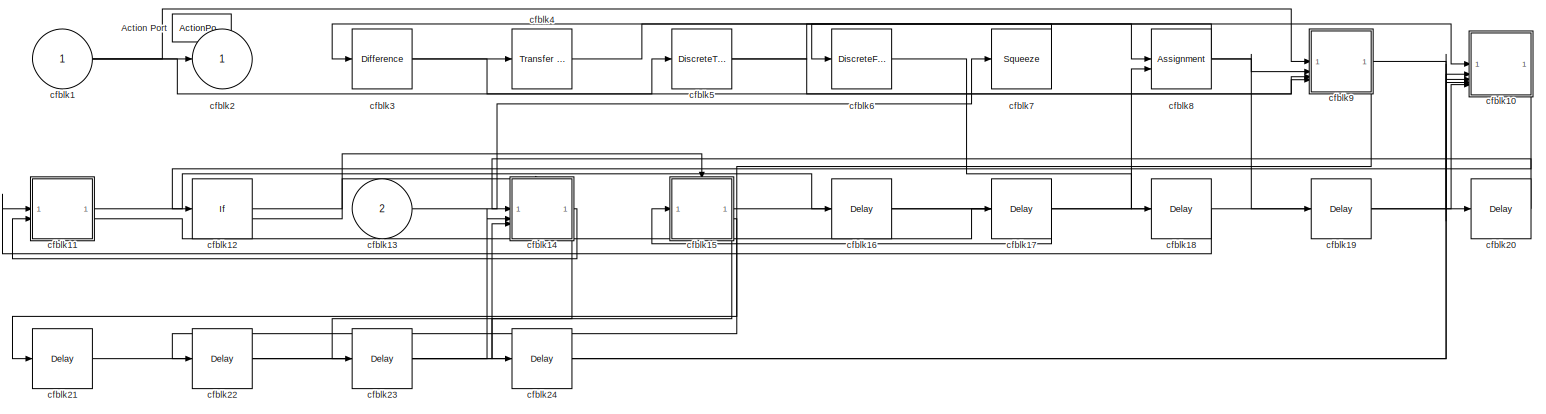
[diagram: cfblk35 - part 1/1, most of the canvas]
BLOCK [SubSystem] cfblk35
  TreatAsAtomicUnit = on
BLOCK [ActionPort] cfblk35/Action Port
  ActionPortLabel = if(u1 >= 0)
BLOCK [Inport] cfblk35/cfblk1
BLOCK [SubSystem] cfblk35/cfblk10
BLOCK [Inport] cfblk35/cfblk10/cfblk1
BLOCK [Inport] cfblk35/cfblk10/cfblk10
  Port = 2
BLOCK [Inport] cfblk35/cfblk10/cfblk11
  Port = 3
BLOCK [Inport] cfblk35/cfblk10/cfblk12
  Port = 4
BLOCK [Inport] cfblk35/cfblk10/cfblk13
  Port = 5
BLOCK [Outport] cfblk35/cfblk10/cfblk2
BLOCK [DiscreteZeroPole] cfblk35/cfblk10/cfblk3
  Gain = 1
  Poles = [0 0.5]
  SampleTime = -1
BLOCK [DiscreteStateSpace] cfblk35/cfblk10/cfblk4
  SampleTime = -1
BLOCK [Reference] cfblk35/cfblk10/cfblk5  REF=simulink/Math
Operations/Slider
Gain
  SourceBlock = simulink/Math\nOperations/Slider\nGain
  SourceType = Slider Gain
BLOCK [Sin] cfblk35/cfblk10/cfblk6
  SampleTime = 0
  TimeSource = Use external signal
BLOCK [Constant] cfblk35/cfblk10/cfblk7
  SampleTime = 1
  Value = [-112437375.894826]
BLOCK [Constant] cfblk35/cfblk10/cfblk8
  SampleTime = 1
  Value = [-453137305.741607]
BLOCK [Constant] cfblk35/cfblk10/cfblk9
  SampleTime = 1
  Value = [-741340996.395799]
BLOCK [SubSystem] cfblk35/cfblk11
BLOCK [Inport] cfblk35/cfblk11/cfblk1
BLOCK [UnaryMinus] cfblk35/cfblk11/cfblk10
BLOCK [Squeeze] cfblk35/cfblk11/cfblk11
BLOCK [Inport] cfblk35/cfblk11/cfblk12
  Port = 2
BLOCK [Outport] cfblk35/cfblk11/cfblk13
  Port = 2
BLOCK [Delay] cfblk35/cfblk11/cfblk14
  InputPortMap = u0
BLOCK [Outport] cfblk35/cfblk11/cfblk2
BLOCK [Reference] cfblk35/cfblk11/cfblk3  REF=simulink/Discrete/Transfer Fcn
Real Zero
  SourceBlock = simulink/Discrete/Transfer Fcn\nReal Zero
  SourceType = Transfer Fcn Real Zero
BLOCK [DiscreteFir] cfblk35/cfblk11/cfblk4
  InputPortMap = u0
  OutputPortMap = o0
BLOCK [Delay] cfblk35/cfblk11/cfblk5
  DelayLengthSource = Input port
  InputPortMap = u0,p1
BLOCK [DiscreteStateSpace] cfblk35/cfblk11/cfblk6
  SampleTime = -1
BLOCK [Reference] cfblk35/cfblk11/cfblk7  REF=simulink/Discrete/Transfer Fcn
First Order
  SourceBlock = simulink/Discrete/Transfer Fcn\nFirst Order
  SourceType = First Order Transfer Fcn
BLOCK [Reshape] cfblk35/cfblk11/cfblk8
BLOCK [Reference] cfblk35/cfblk11/cfblk9  REF=simulink/Math
Operations/Slider
Gain
  SourceBlock = simulink/Math\nOperations/Slider\nGain
  SourceType = Slider Gain
BLOCK [If] cfblk35/cfblk12
  IfExpression = u1 >= 0
  SampleTime = 1
BLOCK [Inport] cfblk35/cfblk13
  Port = 2
BLOCK [SubSystem] cfblk35/cfblk14
  TreatAsAtomicUnit = on
BLOCK [ActionPort] cfblk35/cfblk14/Action Port
  ActionPortLabel = if(u1 >= 0)
BLOCK [Inport] cfblk35/cfblk14/cfblk1
BLOCK [Outport] cfblk35/cfblk14/cfblk2
BLOCK [DiscreteZeroPole] cfblk35/cfblk14/cfblk3
  Gain = 1
  Poles = [0 0.5]
  SampleTime = -1
BLOCK [Signum] cfblk35/cfblk14/cfblk4
BLOCK [Inport] cfblk35/cfblk14/cfblk5
  Port = 2
BLOCK [Inport] cfblk35/cfblk14/cfblk6
  Port = 3
BLOCK [Outport] cfblk35/cfblk14/cfblk7
  Port = 2
BLOCK [SubSystem] cfblk35/cfblk15
  TreatAsAtomicUnit = on
BLOCK [ActionPort] cfblk35/cfblk15/Action Port
  ActionPortLabel = else
BLOCK [Inport] cfblk35/cfblk15/cfblk1
BLOCK [Signum] cfblk35/cfblk15/cfblk10
BLOCK [Math] cfblk35/cfblk15/cfblk11
BLOCK [Bias] cfblk35/cfblk15/cfblk12
  Bias = [228101489.768927]
  SaturateOnIntegerOverflow = off
BLOCK [Constant] cfblk35/cfblk15/cfblk13
  SampleTime = 1
  Value = [208020800.146715]
BLOCK [Outport] cfblk35/cfblk15/cfblk14
  Port = 2
BLOCK [Outport] cfblk35/cfblk15/cfblk15
  Port = 3
BLOCK [Delay] cfblk35/cfblk15/cfblk16
  InputPortMap = u0
BLOCK [Outport] cfblk35/cfblk15/cfblk2
BLOCK [DiscreteStateSpace] cfblk35/cfblk15/cfblk3
  SampleTime = -1
BLOCK [Reference] cfblk35/cfblk15/cfblk4  REF=slpidlib/PID Controller (2DOF)
  LibrarySourceBlock = simulink/Discrete/Discrete PID Controller (2DOF)
  SourceBlock = slpidlib/PID Controller (2DOF)
  SourceType = PID 2dof
BLOCK [Reference] cfblk35/cfblk15/cfblk5  REF=slpidlib/PID Controller
  LibrarySourceBlock = simulink/Discrete/Discrete PID Controller
  SourceBlock = slpidlib/PID Controller
  SourceType = PID 1dof
BLOCK [DiscreteZeroPole] cfblk35/cfblk15/cfblk6
  Gain = 1
  Poles = [0 0.5]
  SampleTime = -1
BLOCK [UnitDelay] cfblk35/cfblk15/cfblk7
  HasFrameUpgradeWarning = on
  SampleTime = -1
BLOCK [Reference] cfblk35/cfblk15/cfblk8  REF=slpidlib/PID Controller
  LibrarySourceBlock = simulink/Discrete/Discrete PID Controller
  SourceBlock = slpidlib/PID Controller
  SourceType = PID 1dof
BLOCK [Sqrt] cfblk35/cfblk15/cfblk9
  AlgorithmType = Newton-Raphson
  Operator = rSqrt
BLOCK [Delay] cfblk35/cfblk16
  InputPortMap = u0
BLOCK [Delay] cfblk35/cfblk17
  InputPortMap = u0
BLOCK [Delay] cfblk35/cfblk18
  InputPortMap = u0
BLOCK [Delay] cfblk35/cfblk19
  InputPortMap = u0
BLOCK [Outport] cfblk35/cfblk2
BLOCK [Delay] cfblk35/cfblk20
  InputPortMap = u0
BLOCK [Delay] cfblk35/cfblk21
  InputPortMap = u0
BLOCK [Delay] cfblk35/cfblk22
  InputPortMap = u0
BLOCK [Delay] cfblk35/cfblk23
  InputPortMap = u0
BLOCK [Delay] cfblk35/cfblk24
  InputPortMap = u0
BLOCK [Reference] cfblk35/cfblk3  REF=simulink/Discrete/Difference
  SourceBlock = simulink/Discrete/Difference
  SourceType = Difference
BLOCK [Reference] cfblk35/cfblk4  REF=simulink/Discrete/Transfer Fcn
Lead or Lag
  SourceBlock = simulink/Discrete/Transfer Fcn\nLead or Lag
  SourceType = Lead or Lag Compensator
BLOCK [DiscreteTransferFcn] cfblk35/cfblk5
  InputPortMap = u0
BLOCK [DiscreteFir] cfblk35/cfblk6
  InputPortMap = u0
  OutputPortMap = o0
BLOCK [Squeeze] cfblk35/cfblk7
BLOCK [Assignment] cfblk35/cfblk8
  DiagnosticForDimensions = Warning
  IndexOptions = Index vector (dialog)
  Indices = 1
  OutputSizes = 1
BLOCK [SubSystem] cfblk35/cfblk9
BLOCK [Inport] cfblk35/cfblk9/cfblk1
BLOCK [Inport] cfblk35/cfblk9/cfblk10
  Port = 4
BLOCK [Outport] cfblk35/cfblk9/cfblk11
  Port = 2
BLOCK [Outport] cfblk35/cfblk9/cfblk2
BLOCK [PermuteDimensions] cfblk35/cfblk9/cfblk3
BLOCK [Sum] cfblk35/cfblk9/cfblk4
  IconShape = rectangular
  Inputs = +-
BLOCK [Sin] cfblk35/cfblk9/cfblk5
  SampleTime = 0
  TimeSource = Use external signal
BLOCK [Constant] cfblk35/cfblk9/cfblk6
  SampleTime = 1
  Value = [547262071.975775]
BLOCK [Constant] cfblk35/cfblk9/cfblk7
  SampleTime = 1
  Value = [-884998425.678320]
BLOCK [Inport] cfblk35/cfblk9/cfblk8
  Port = 2
BLOCK [Inport] cfblk35/cfblk9/cfblk9
  Port = 3
BLOCK [SubSystem] cfblk36
  TreatAsAtomicUnit = on
BLOCK [ActionPort] cfblk36/Action Port
  ActionPortLabel = else
BLOCK [Inport] cfblk36/cfblk1
BLOCK [Delay] cfblk36/cfblk10
  InputPortMap = u0
BLOCK [Delay] cfblk36/cfblk11
  InputPortMap = u0
BLOCK [Delay] cfblk36/cfblk12
  InputPortMap = u0
BLOCK [Delay] cfblk36/cfblk13
  InputPortMap = u0
BLOCK [Outport] cfblk36/cfblk2
BLOCK [Delay] cfblk36/cfblk3
  InputPortMap = u0
BLOCK [DiscreteIntegrator] cfblk36/cfblk4
  ICPrevOutput = DiscIntNeverNeededParam
  ICPrevScaledInput = DiscIntNeverNeededParam
  InitialConditionSetting = Auto
  SampleTime = -1
BLOCK [DotProduct] cfblk36/cfblk5
  OutDataTypeStr = Inherit: Inherit via internal rule
BLOCK [SubSystem] cfblk36/cfblk6
BLOCK [Inport] cfblk36/cfblk6/cfblk1
BLOCK [Reference] cfblk36/cfblk6/cfblk10  REF=simulink/Math
Operations/Slider
Gain
  SourceBlock = simulink/Math\nOperations/Slider\nGain
  SourceType = Slider Gain
BLOCK [Polyval] cfblk36/cfblk6/cfblk11
  Coefs = [ +2.081618890e-019, -1.441693666e-014, +4.719686976e-010, -8.536869453e-006, +1.621573104e-001, -8.087801117e+001 ]
BLOCK [Constant] cfblk36/cfblk6/cfblk12
  SampleTime = 1
  Value = [-516293650.996945]
BLOCK [Inport] cfblk36/cfblk6/cfblk13
  Port = 2
BLOCK [Outport] cfblk36/cfblk6/cfblk14
  Port = 2
BLOCK [Delay] cfblk36/cfblk6/cfblk15
  InputPortMap = u0
BLOCK [Outport] cfblk36/cfblk6/cfblk2
BLOCK [DiscreteZeroPole] cfblk36/cfblk6/cfblk3
  Gain = 1
  Poles = [0 0.5]
  SampleTime = -1
BLOCK [Reference] cfblk36/cfblk6/cfblk4  REF=simulink/Discrete/Transfer Fcn
Lead or Lag
  SourceBlock = simulink/Discrete/Transfer Fcn\nLead or Lag
  SourceType = Lead or Lag Compensator
BLOCK [DiscreteStateSpace] cfblk36/cfblk6/cfblk5
  SampleTime = -1
BLOCK [ComplexToRealImag] cfblk36/cfblk6/cfblk6
BLOCK [Trigonometry] cfblk36/cfblk6/cfblk7
BLOCK [Product] cfblk36/cfblk6/cfblk8
  Inputs = **
BLOCK [PermuteDimensions] cfblk36/cfblk6/cfblk9
BLOCK [SubSystem] cfblk36/cfblk7
BLOCK [Inport] cfblk36/cfblk7/cfblk1
BLOCK [ComplexToRealImag] cfblk36/cfblk7/cfblk10
BLOCK [Constant] cfblk36/cfblk7/cfblk11
  SampleTime = 1
  Value = [929504628.332843]
BLOCK [Constant] cfblk36/cfblk7/cfblk12
  SampleTime = 1
  Value = [-286290192.988281]
BLOCK [Inport] cfblk36/cfblk7/cfblk13
  Port = 2
BLOCK [Inport] cfblk36/cfblk7/cfblk14
  Port = 3
BLOCK [Outport] cfblk36/cfblk7/cfblk15
  Port = 2
BLOCK [Outport] cfblk36/cfblk7/cfblk2
BLOCK [Reference] cfblk36/cfblk7/cfblk3  REF=simulink/Discrete/Transfer Fcn
Lead or Lag
  SourceBlock = simulink/Discrete/Transfer Fcn\nLead or Lag
  SourceType = Lead or Lag Compensator
BLOCK [Reshape] cfblk36/cfblk7/cfblk4
BLOCK [Bias] cfblk36/cfblk7/cfblk5
  Bias = [-880605367.001001]
  SaturateOnIntegerOverflow = off
BLOCK [DotProduct] cfblk36/cfblk7/cfblk6
  OutDataTypeStr = Inherit: Inherit via internal rule
BLOCK [PermuteDimensions] cfblk36/cfblk7/cfblk7
BLOCK [Reference] cfblk36/cfblk7/cfblk8  REF=simulink/Math
Operations/MinMax
Running
Resettable
  SourceBlock = simulink/Math\nOperations/MinMax\nRunning\nResettable
  SourceType = MinMax Running Resettable
BLOCK [Sqrt] cfblk36/cfblk7/cfblk9
  AlgorithmType = Newton-Raphson
  Operator = rSqrt
BLOCK [SubSystem] cfblk36/cfblk8
BLOCK [Inport] cfblk36/cfblk8/cfblk1
BLOCK [Outport] cfblk36/cfblk8/cfblk2
BLOCK [Reference] cfblk36/cfblk8/cfblk3  REF=simulink/Discrete/Transfer Fcn
Real Zero
  SourceBlock = simulink/Discrete/Transfer Fcn\nReal Zero
  SourceType = Transfer Fcn Real Zero
BLOCK [Reference] cfblk36/cfblk8/cfblk4  REF=simulink/Discrete/Transfer Fcn
Real Zero
  SourceBlock = simulink/Discrete/Transfer Fcn\nReal Zero
  SourceType = Transfer Fcn Real Zero
BLOCK [Constant] cfblk36/cfblk8/cfblk5
  SampleTime = 1
  Value = [893736484.888777]
BLOCK [Constant] cfblk36/cfblk8/cfblk6
  SampleTime = 1
  Value = [-931401752.986753]
BLOCK [Inport] cfblk36/cfblk8/cfblk7
  Port = 2
BLOCK [Inport] cfblk36/cfblk8/cfblk8
  Port = 3
BLOCK [Outport] cfblk36/cfblk8/cfblk9
  Port = 2
BLOCK [Outport] cfblk36/cfblk9
  Port = 2
BLOCK [SubSystem] cfblk37
  TreatAsAtomicUnit = on
BLOCK [ActionPort] cfblk37/Action Port
  ActionPortLabel = if(u1 >= 0)
BLOCK [Inport] cfblk37/cfblk1
BLOCK [Delay] cfblk37/cfblk10
  InputPortMap = u0
BLOCK [Delay] cfblk37/cfblk11
  InputPortMap = u0
BLOCK [Delay] cfblk37/cfblk12
  InputPortMap = u0
BLOCK [Delay] cfblk37/cfblk13
  InputPortMap = u0
BLOCK [Delay] cfblk37/cfblk14
  InputPortMap = u0
BLOCK [Delay] cfblk37/cfblk15
  InputPortMap = u0
BLOCK [Delay] cfblk37/cfblk16
  InputPortMap = u0
BLOCK [Outport] cfblk37/cfblk2
BLOCK [Reshape] cfblk37/cfblk3
BLOCK [SubSystem] cfblk37/cfblk4
BLOCK [Inport] cfblk37/cfblk4/cfblk1
BLOCK [Constant] cfblk37/cfblk4/cfblk10
  SampleTime = 1
  Value = [-744076515.280142]
BLOCK [Constant] cfblk37/cfblk4/cfblk11
  SampleTime = 1
  Value = [-214790099.930049]
BLOCK [Inport] cfblk37/cfblk4/cfblk12
  Port = 2
BLOCK [Inport] cfblk37/cfblk4/cfblk13
  Port = 3
BLOCK [Inport] cfblk37/cfblk4/cfblk14
  Port = 4
BLOCK [Outport] cfblk37/cfblk4/cfblk15
  Port = 2
BLOCK [Outport] cfblk37/cfblk4/cfblk16
  Port = 3
BLOCK [Delay] cfblk37/cfblk4/cfblk17
  InputPortMap = u0
BLOCK [Outport] cfblk37/cfblk4/cfblk2
BLOCK [Delay] cfblk37/cfblk4/cfblk3
  InputPortMap = u0
BLOCK [Reshape] cfblk37/cfblk4/cfblk4
BLOCK [UnaryMinus] cfblk37/cfblk4/cfblk5
BLOCK [Bias] cfblk37/cfblk4/cfblk6
  Bias = [884710916.406855]
  SaturateOnIntegerOverflow = off
BLOCK [MinMax] cfblk37/cfblk4/cfblk7
  Function = max
  Inputs = 2
BLOCK [Reference] cfblk37/cfblk4/cfblk8  REF=simulink/Math
Operations/Slider
Gain
  SourceBlock = simulink/Math\nOperations/Slider\nGain
  SourceType = Slider Gain
BLOCK [Sqrt] cfblk37/cfblk4/cfblk9
  AlgorithmType = Newton-Raphson
  Operator = rSqrt
BLOCK [SubSystem] cfblk37/cfblk5
BLOCK [Inport] cfblk37/cfblk5/cfblk1
BLOCK [Abs] cfblk37/cfblk5/cfblk10
  SaturateOnIntegerOverflow = off
BLOCK [Sum] cfblk37/cfblk5/cfblk11
  IconShape = rectangular
  Inputs = +
BLOCK [Constant] cfblk37/cfblk5/cfblk12
  SampleTime = 1
  Value = [-34818510.735228]
BLOCK [Constant] cfblk37/cfblk5/cfblk13
  SampleTime = 1
  Value = [-645267266.388667]
BLOCK [Inport] cfblk37/cfblk5/cfblk14
  Port = 2
BLOCK [Outport] cfblk37/cfblk5/cfblk15
  Port = 2
BLOCK [Outport] cfblk37/cfblk5/cfblk16
  Port = 3
BLOCK [Outport] cfblk37/cfblk5/cfblk2
BLOCK [Delay] cfblk37/cfblk5/cfblk3
  DelayLengthSource = Input port
  InputPortMap = u0,p1
BLOCK [Reference] cfblk37/cfblk5/cfblk4  REF=simulink/Math
Operations/Slider
Gain
  SourceBlock = simulink/Math\nOperations/Slider\nGain
  SourceType = Slider Gain
BLOCK [Squeeze] cfblk37/cfblk5/cfblk5
BLOCK [Reshape] cfblk37/cfblk5/cfblk6
BLOCK [Signum] cfblk37/cfblk5/cfblk7
BLOCK [Sin] cfblk37/cfblk5/cfblk8
  SampleTime = 0
  TimeSource = Use external signal
BLOCK [Reference] cfblk37/cfblk5/cfblk9  REF=simulink/Math
Operations/MinMax
Running
Resettable
  SourceBlock = simulink/Math\nOperations/MinMax\nRunning\nResettable
  SourceType = MinMax Running Resettable
BLOCK [SubSystem] cfblk37/cfblk6
BLOCK [Inport] cfblk37/cfblk6/cfblk1
BLOCK [Delay] cfblk37/cfblk6/cfblk10
  InputPortMap = u0
BLOCK [Outport] cfblk37/cfblk6/cfblk2
BLOCK [Delay] cfblk37/cfblk6/cfblk3
  DelayLengthSource = Input port
  InputPortMap = u0,p1
BLOCK [Reference] cfblk37/cfblk6/cfblk4  REF=simulink/Discrete/Difference
  SourceBlock = simulink/Discrete/Difference
  SourceType = Difference
BLOCK [DiscreteStateSpace] cfblk37/cfblk6/cfblk5
  SampleTime = -1
BLOCK [Abs] cfblk37/cfblk6/cfblk6
  SaturateOnIntegerOverflow = off
BLOCK [Constant] cfblk37/cfblk6/cfblk7
  SampleTime = 1
  Value = [-149473581.259236]
BLOCK [Inport] cfblk37/cfblk6/cfblk8
  Port = 2
BLOCK [Inport] cfblk37/cfblk6/cfblk9
  Port = 3
BLOCK [SubSystem] cfblk37/cfblk7
BLOCK [Inport] cfblk37/cfblk7/cfblk1
BLOCK [Outport] cfblk37/cfblk7/cfblk2
BLOCK [Reference] cfblk37/cfblk7/cfblk3  REF=simulink/Discrete/Transfer Fcn
Lead or Lag
  SourceBlock = simulink/Discrete/Transfer Fcn\nLead or Lag
  SourceType = Lead or Lag Compensator
BLOCK [Sum] cfblk37/cfblk7/cfblk4
  IconShape = rectangular
BLOCK [Inport] cfblk37/cfblk7/cfblk5
  Port = 2
BLOCK [Inport] cfblk37/cfblk7/cfblk6
  Port = 3
BLOCK [Inport] cfblk37/cfblk7/cfblk7
  Port = 4
BLOCK [Outport] cfblk37/cfblk8
  Port = 2
BLOCK [Delay] cfblk37/cfblk9
  InputPortMap = u0
BLOCK [SubSystem] cfblk38
  TreatAsAtomicUnit = on
BLOCK [ActionPort] cfblk38/Action Port
  ActionPortLabel = else
BLOCK [Inport] cfblk38/cfblk1
BLOCK [SubSystem] cfblk38/cfblk10
BLOCK [Inport] cfblk38/cfblk10/cfblk1
BLOCK [Outport] cfblk38/cfblk10/cfblk2
BLOCK [Abs] cfblk38/cfblk10/cfblk3
  SaturateOnIntegerOverflow = off
BLOCK [Sin] cfblk38/cfblk10/cfblk4
  SampleTime = 0
  TimeSource = Use external signal
BLOCK [Product] cfblk38/cfblk10/cfblk5
  Inputs = **
BLOCK [Constant] cfblk38/cfblk10/cfblk6
  SampleTime = 1
  Value = [-244203584.019798]
BLOCK [Constant] cfblk38/cfblk10/cfblk7
  SampleTime = 1
  Value = [-497272579.083426]
BLOCK [Inport] cfblk38/cfblk10/cfblk8
  Port = 2
BLOCK [Outport] cfblk38/cfblk10/cfblk9
  Port = 2
BLOCK [SubSystem] cfblk38/cfblk11
BLOCK [Inport] cfblk38/cfblk11/cfblk1
BLOCK [Inport] cfblk38/cfblk11/cfblk10
  Port = 3
BLOCK [Inport] cfblk38/cfblk11/cfblk11
  Port = 4
BLOCK [Inport] cfblk38/cfblk11/cfblk12
  Port = 5
BLOCK [Inport] cfblk38/cfblk11/cfblk13
  Port = 6
BLOCK [Delay] cfblk38/cfblk11/cfblk14
  InputPortMap = u0
BLOCK [Outport] cfblk38/cfblk11/cfblk2
BLOCK [Reference] cfblk38/cfblk11/cfblk3  REF=slpidlib/PID Controller
  LibrarySourceBlock = simulink/Discrete/Discrete PID Controller
  SourceBlock = slpidlib/PID Controller
  SourceType = PID 1dof
BLOCK [UnitDelay] cfblk38/cfblk11/cfblk4
  HasFrameUpgradeWarning = on
  SampleTime = -1
BLOCK [Rounding] cfblk38/cfblk11/cfblk5
BLOCK [Polyval] cfblk38/cfblk11/cfblk6
  Coefs = [ +2.081618890e-019, -1.441693666e-014, +4.719686976e-010, -8.536869453e-006, +1.621573104e-001, -8.087801117e+001 ]
BLOCK [Sum] cfblk38/cfblk11/cfblk7
  IconShape = rectangular
  Inputs = --
BLOCK [Squeeze] cfblk38/cfblk11/cfblk8
BLOCK [Inport] cfblk38/cfblk11/cfblk9
  Port = 2
BLOCK [SubSystem] cfblk38/cfblk12
BLOCK [Inport] cfblk38/cfblk12/cfblk1
BLOCK [Inport] cfblk38/cfblk12/cfblk10
  Port = 2
BLOCK [Inport] cfblk38/cfblk12/cfblk11
  Port = 3
BLOCK [Outport] cfblk38/cfblk12/cfblk12
  Port = 2
BLOCK [Outport] cfblk38/cfblk12/cfblk13
  Port = 3
BLOCK [Outport] cfblk38/cfblk12/cfblk14
  Port = 4
BLOCK [Delay] cfblk38/cfblk12/cfblk15
  InputPortMap = u0
BLOCK [Outport] cfblk38/cfblk12/cfblk2
BLOCK [Delay] cfblk38/cfblk12/cfblk3
  DelayLengthSource = Input port
  InputPortMap = u0,p1
BLOCK [Delay] cfblk38/cfblk12/cfblk4
  DelayLengthSource = Input port
  InputPortMap = u0,p1
BLOCK [Reference] cfblk38/cfblk12/cfblk5  REF=simulink/Discrete/Difference
  SourceBlock = simulink/Discrete/Difference
  SourceType = Difference
BLOCK [Delay] cfblk38/cfblk12/cfblk6
  InputPortMap = u0
BLOCK [Squeeze] cfblk38/cfblk12/cfblk7
BLOCK [Trigonometry] cfblk38/cfblk12/cfblk8
BLOCK [Constant] cfblk38/cfblk12/cfblk9
  SampleTime = 1
  Value = [685636712.719749]
BLOCK [SubSystem] cfblk38/cfblk13
BLOCK [Inport] cfblk38/cfblk13/cfblk1
BLOCK [Polyval] cfblk38/cfblk13/cfblk10
  Coefs = [ +2.081618890e-019, -1.441693666e-014, +4.719686976e-010, -8.536869453e-006, +1.621573104e-001, -8.087801117e+001 ]
BLOCK [ComplexToRealImag] cfblk38/cfblk13/cfblk11
BLOCK [Constant] cfblk38/cfblk13/cfblk12
  SampleTime = 1
  Value = [836032568.367008]
BLOCK [Inport] cfblk38/cfblk13/cfblk13
  Port = 2
BLOCK [Inport] cfblk38/cfblk13/cfblk14
  Port = 3
BLOCK [Inport] cfblk38/cfblk13/cfblk15
  Port = 4
BLOCK [Outport] cfblk38/cfblk13/cfblk16
  Port = 2
BLOCK [Outport] cfblk38/cfblk13/cfblk17
  Port = 3
BLOCK [Outport] cfblk38/cfblk13/cfblk2
BLOCK [DiscreteStateSpace] cfblk38/cfblk13/cfblk3
  SampleTime = -1
BLOCK [DiscreteStateSpace] cfblk38/cfblk13/cfblk4
  SampleTime = -1
BLOCK [Reference] cfblk38/cfblk13/cfblk5  REF=slpidlib/PID Controller
  LibrarySourceBlock = simulink/Discrete/Discrete PID Controller
  SourceBlock = slpidlib/PID Controller
  SourceType = PID 1dof
BLOCK [Reference] cfblk38/cfblk13/cfblk6  REF=slpidlib/PID Controller (2DOF)
  LibrarySourceBlock = simulink/Discrete/Discrete PID Controller (2DOF)
  SourceBlock = slpidlib/PID Controller (2DOF)
  SourceType = PID 2dof
BLOCK [Delay] cfblk38/cfblk13/cfblk7
  InputPortMap = u0
BLOCK [DiscreteFir] cfblk38/cfblk13/cfblk8
  InputPortMap = u0
  OutputPortMap = o0
BLOCK [Polyval] cfblk38/cfblk13/cfblk9
  Coefs = [ +2.081618890e-019, -1.441693666e-014, +4.719686976e-010, -8.536869453e-006, +1.621573104e-001, -8.087801117e+001 ]
BLOCK [SubSystem] cfblk38/cfblk14
BLOCK [Inport] cfblk38/cfblk14/cfblk1
BLOCK [Outport] cfblk38/cfblk14/cfblk2
BLOCK [Reference] cfblk38/cfblk14/cfblk3  REF=simulink/Discrete/Tapped Delay
  SourceBlock = simulink/Discrete/Tapped Delay
  SourceType = Tapped Delay Line
BLOCK [Sqrt] cfblk38/cfblk14/cfblk4
  AlgorithmType = Newton-Raphson
  Operator = rSqrt
BLOCK [DotProduct] cfblk38/cfblk14/cfblk5
  OutDataTypeStr = Inherit: Inherit via internal rule
BLOCK [Sum] cfblk38/cfblk14/cfblk6
  IconShape = rectangular
  Inputs = +
BLOCK [Constant] cfblk38/cfblk14/cfblk7
  SampleTime = 1
  Value = [-459725490.486942]
BLOCK [Inport] cfblk38/cfblk14/cfblk8
  Port = 2
BLOCK [SubSystem] cfblk38/cfblk15
BLOCK [Inport] cfblk38/cfblk15/cfblk1
BLOCK [Outport] cfblk38/cfblk15/cfblk2
BLOCK [Reference] cfblk38/cfblk15/cfblk3  REF=simulink/Discrete/Transfer Fcn
Lead or Lag
  SourceBlock = simulink/Discrete/Transfer Fcn\nLead or Lag
  SourceType = Lead or Lag Compensator
BLOCK [Sqrt] cfblk38/cfblk15/cfblk4
BLOCK [Sum] cfblk38/cfblk15/cfblk5
  IconShape = rectangular
BLOCK [Product] cfblk38/cfblk15/cfblk6
  Inputs = **
BLOCK [Inport] cfblk38/cfblk15/cfblk7
  Port = 2
BLOCK [Delay] cfblk38/cfblk15/cfblk8
  InputPortMap = u0
BLOCK [Inport] cfblk38/cfblk16
  Port = 2
BLOCK [Outport] cfblk38/cfblk17
  Port = 2
BLOCK [Delay] cfblk38/cfblk18
  InputPortMap = u0
BLOCK [Delay] cfblk38/cfblk19
  InputPortMap = u0
BLOCK [Outport] cfblk38/cfblk2
BLOCK [Delay] cfblk38/cfblk20
  InputPortMap = u0
BLOCK [Delay] cfblk38/cfblk21
  InputPortMap = u0
BLOCK [Delay] cfblk38/cfblk22
  InputPortMap = u0
BLOCK [Delay] cfblk38/cfblk23
  InputPortMap = u0
BLOCK [Delay] cfblk38/cfblk24
  InputPortMap = u0
BLOCK [Reference] cfblk38/cfblk3  REF=simulink/Discrete/Difference
  SourceBlock = simulink/Discrete/Difference
  SourceType = Difference
BLOCK [Delay] cfblk38/cfblk4
  InputPortMap = u0,e6
  ShowEnablePort = on
BLOCK [Reference] cfblk38/cfblk5  REF=slpidlib/PID Controller (2DOF)
  LibrarySourceBlock = simulink/Discrete/Discrete PID Controller (2DOF)
  SourceBlock = slpidlib/PID Controller (2DOF)
  SourceType = PID 2dof
BLOCK [Abs] cfblk38/cfblk6
  SaturateOnIntegerOverflow = off
BLOCK [Sqrt] cfblk38/cfblk7
BLOCK [ComplexToRealImag] cfblk38/cfblk8
BLOCK [SubSystem] cfblk38/cfblk9
BLOCK [Inport] cfblk38/cfblk9/cfblk1
BLOCK [Constant] cfblk38/cfblk9/cfblk10
  SampleTime = 1
  Value = [914520238.174114]
BLOCK [Inport] cfblk38/cfblk9/cfblk11
  Port = 2
BLOCK [Outport] cfblk38/cfblk9/cfblk12
  Port = 2
BLOCK [Delay] cfblk38/cfblk9/cfblk13
  InputPortMap = u0
BLOCK [Outport] cfblk38/cfblk9/cfblk2
BLOCK [Reference] cfblk38/cfblk9/cfblk3  REF=simulink/Discrete/Transfer Fcn
Real Zero
  SourceBlock = simulink/Discrete/Transfer Fcn\nReal Zero
  SourceType = Transfer Fcn Real Zero
BLOCK [DiscreteFir] cfblk38/cfblk9/cfblk4
  InputPortMap = u0
  OutputPortMap = o0
BLOCK [Squeeze] cfblk38/cfblk9/cfblk5
BLOCK [Bias] cfblk38/cfblk9/cfblk6
  Bias = [760130353.807291]
  SaturateOnIntegerOverflow = off
BLOCK [Product] cfblk38/cfblk9/cfblk7
BLOCK [Sum] cfblk38/cfblk9/cfblk8
  IconShape = rectangular
  Inputs = +
BLOCK [Polyval] cfblk38/cfblk9/cfblk9
  Coefs = [ +2.081618890e-019, -1.441693666e-014, +4.719686976e-010, -8.536869453e-006, +1.621573104e-001, -8.087801117e+001 ]
BLOCK [Delay] cfblk39
  InputPortMap = u0
  SampleTime = 1
BLOCK [DiscreteFir] cfblk4
  InputPortMap = u0
  OutputPortMap = o0
  SampleTime = 1
BLOCK [Delay] cfblk40
  InputPortMap = u0
  SampleTime = 1
BLOCK [Delay] cfblk41
  InputPortMap = u0
  SampleTime = 1
BLOCK [Delay] cfblk42
  InputPortMap = u0
  SampleTime = 1
BLOCK [Delay] cfblk43
  InputPortMap = u0
  SampleTime = 1
BLOCK [Delay] cfblk44
  InputPortMap = u0
  SampleTime = 1
BLOCK [Delay] cfblk45
  InputPortMap = u0
  SampleTime = 1
BLOCK [Delay] cfblk46
  InputPortMap = u0
  SampleTime = 1
BLOCK [Delay] cfblk47
  InputPortMap = u0
  SampleTime = 1
BLOCK [Delay] cfblk48
  InputPortMap = u0
  SampleTime = 1
BLOCK [Delay] cfblk49
  InputPortMap = u0
  SampleTime = 1
BLOCK [DiscreteStateSpace] cfblk5
BLOCK [Delay] cfblk50
  InputPortMap = u0
  SampleTime = 1
BLOCK [Delay] cfblk51
  InputPortMap = u0
  SampleTime = 1
BLOCK [Delay] cfblk52
  InputPortMap = u0
  SampleTime = 1
BLOCK [Delay] cfblk53
  InputPortMap = u0
  SampleTime = 1
BLOCK [Delay] cfblk54
  InputPortMap = u0
  SampleTime = 1
BLOCK [Delay] cfblk6
  InputPortMap = u0,e6
  SampleTime = 1
  ShowEnablePort = on
BLOCK [Trigonometry] cfblk7
BLOCK [Sqrt] cfblk8
  AlgorithmType = Newton-Raphson
  Operator = rSqrt
BLOCK [Product] cfblk9
LINE cfblk10:1 -> cfblk29:2
LINE cfblk11:1 -> cfblk9:2
NET cfblk12:1 -> cfblk26:2, cfblk32:3, cfblk43:1, cfblk52:1
NET cfblk19:1 -> cfblk33:1, cfblk35:2, cfblk37:1
NET cfblk1:1 -> cfblk31:5, cfblk8:1
NET cfblk20:1 -> cfblk21:1, cfblk31:3
LINE cfblk21/cfblk14:1 -> cfblk21/cfblk4:1
LINE cfblk21/cfblk15:1 -> cfblk21/cfblk9:3
LINE cfblk21/cfblk16:1 -> cfblk21/cfblk9:4
LINE cfblk21/cfblk17:1 -> cfblk21/cfblk9:2
LINE cfblk21/cfblk18:1 -> cfblk21/cfblk9:1
LINE cfblk21/cfblk19:1 -> cfblk21/cfblk4:2
LINE cfblk21/cfblk1:1 -> cfblk21/cfblk2:1
LINE cfblk21/cfblk20:1 -> cfblk21/cfblk7:2
LINE cfblk21/cfblk3:1 -> cfblk21/cfblk12:1
NET cfblk21/cfblk4:1 -> cfblk21/cfblk11:1, cfblk21/cfblk3:1, cfblk21/cfblk3:2, cfblk21/cfblk7:1
NET cfblk21/cfblk5:1 -> cfblk21/cfblk17:1, cfblk21/cfblk8:1
NET cfblk21/cfblk6:1 -> cfblk21/cfblk13:1, cfblk21/cfblk18:1
NET cfblk21/cfblk7:1 -> cfblk21/cfblk14:1, cfblk21/cfblk9:5
LINE cfblk21/cfblk8/cfblk10:1 -> cfblk21/cfblk8/cfblk2:1
NET cfblk21/cfblk8/cfblk11:1 -> cfblk21/cfblk8/cfblk10:2, cfblk21/cfblk8/cfblk5:1
LINE cfblk21/cfblk8/cfblk12:1 -> cfblk21/cfblk8/cfblk9:1
LINE cfblk21/cfblk8/cfblk13:1 -> cfblk21/cfblk8/cfblk3:2
NET cfblk21/cfblk8/cfblk1:1 -> cfblk21/cfblk8/cfblk5:2, cfblk21/cfblk8/cfblk6:1
LINE cfblk21/cfblk8/cfblk3:1 -> cfblk21/cfblk8/cfblk8:1
LINE cfblk21/cfblk8/cfblk4:1 -> cfblk21/cfblk8/cfblk3:1
NET cfblk21/cfblk8/cfblk5:1 -> cfblk21/cfblk8/cfblk10:1, cfblk21/cfblk8/cfblk6:2
LINE cfblk21/cfblk8/cfblk6:1 -> cfblk21/cfblk8/cfblk4:2
LINE cfblk21/cfblk8/cfblk7:1 -> cfblk21/cfblk8/cfblk4:1
LINE cfblk21/cfblk8/cfblk8:1 -> cfblk21/cfblk8/cfblk13:1
NET cfblk21/cfblk8/cfblk9:1 -> cfblk21/cfblk8/cfblk6:3, cfblk21/cfblk8/cfblk7:1
NET cfblk21/cfblk8:1 -> cfblk21/cfblk10:1, cfblk21/cfblk15:1, cfblk21/cfblk16:1
LINE cfblk21/cfblk9/cfblk10:1 -> cfblk21/cfblk9/cfblk4:1
LINE cfblk21/cfblk9/cfblk11:1 -> cfblk21/cfblk9/cfblk15:1
LINE cfblk21/cfblk9/cfblk12:1 -> cfblk21/cfblk9/cfblk9:1
LINE cfblk21/cfblk9/cfblk13:1 -> cfblk21/cfblk9/cfblk3:1
LINE cfblk21/cfblk9/cfblk14:1 -> cfblk21/cfblk9/cfblk7:1
LINE cfblk21/cfblk9/cfblk18:1 -> cfblk21/cfblk9/cfblk5:1
LINE cfblk21/cfblk9/cfblk1:1 -> cfblk21/cfblk9/cfblk16:1
LINE cfblk21/cfblk9/cfblk3:1 -> cfblk21/cfblk9/cfblk8:1
LINE cfblk21/cfblk9/cfblk4:1 -> cfblk21/cfblk9/cfblk2:1
LINE cfblk21/cfblk9/cfblk5:1 -> cfblk21/cfblk9/cfblk6:1
LINE cfblk21/cfblk9/cfblk6:1 -> cfblk21/cfblk9/cfblk18:1
NET cfblk21/cfblk9/cfblk8:1 -> cfblk21/cfblk9/cfblk17:1, cfblk21/cfblk9/cfblk7:2
LINE cfblk21/cfblk9/cfblk9:1 -> cfblk21/cfblk9/cfblk5:2
LINE cfblk21/cfblk9:1 -> cfblk21/cfblk5:1
LINE cfblk21/cfblk9:2 -> cfblk21/cfblk6:1
LINE cfblk21/cfblk9:3 -> cfblk21/cfblk5:2
NET cfblk21/cfblk9:4 -> cfblk21/cfblk19:1, cfblk21/cfblk20:1
LINE cfblk21:1 -> cfblk25:1
LINE cfblk21:2 -> cfblk31:1
LINE cfblk21:3 -> cfblk32:1
LINE cfblk21:4 -> cfblk28:1
LINE cfblk21:5 -> cfblk38:2
LINE cfblk22/cfblk11:1 -> cfblk22/cfblk6:4
LINE cfblk22/cfblk12:1 -> cfblk22/cfblk4:1
LINE cfblk22/cfblk13:1 -> cfblk22/cfblk5:4
LINE cfblk22/cfblk14:1 -> cfblk22/cfblk4:4
LINE cfblk22/cfblk15:1 -> cfblk22/cfblk6:2
LINE cfblk22/cfblk16:1 -> cfblk22/cfblk5:5
LINE cfblk22/cfblk17:1 -> cfblk22/cfblk6:3
LINE cfblk22/cfblk1:1 -> cfblk22/cfblk8:1
NET cfblk22/cfblk3:1 -> cfblk22/cfblk10:1, cfblk22/cfblk16:1, cfblk22/cfblk4:2, cfblk22/cfblk4:3
LINE cfblk22/cfblk4/cfblk10:1 -> cfblk22/cfblk4/cfblk4:1
LINE cfblk22/cfblk4/cfblk11:1 -> cfblk22/cfblk4/cfblk7:1
LINE cfblk22/cfblk4/cfblk13:1 -> cfblk22/cfblk4/cfblk3:1
LINE cfblk22/cfblk4/cfblk14:1 -> cfblk22/cfblk4/cfblk5:1
LINE cfblk22/cfblk4/cfblk15:1 -> cfblk22/cfblk4/cfblk8:1
LINE cfblk22/cfblk4/cfblk16:1 -> cfblk22/cfblk4/cfblk9:1
LINE cfblk22/cfblk4/cfblk1:1 -> cfblk22/cfblk4/cfblk2:1
LINE cfblk22/cfblk4/cfblk3:1 -> cfblk22/cfblk4/cfblk17:1
LINE cfblk22/cfblk4/cfblk7:1 -> cfblk22/cfblk4/cfblk6:1
LINE cfblk22/cfblk4/cfblk9:1 -> cfblk22/cfblk4/cfblk10:1
LINE cfblk22/cfblk4:1 -> cfblk22/cfblk7:1
LINE cfblk22/cfblk4:2 -> cfblk22/cfblk15:1
LINE cfblk22/cfblk5/cfblk10:1 -> cfblk22/cfblk5/cfblk9:2
LINE cfblk22/cfblk5/cfblk11:1 -> cfblk22/cfblk5/cfblk8:1
LINE cfblk22/cfblk5/cfblk12:1 -> cfblk22/cfblk5/cfblk7:1
LINE cfblk22/cfblk5/cfblk13:1 -> cfblk22/cfblk5/cfblk9:1
LINE cfblk22/cfblk5/cfblk14:1 -> cfblk22/cfblk5/cfblk2:1
LINE cfblk22/cfblk5/cfblk1:1 -> cfblk22/cfblk5/cfblk5:1
LINE cfblk22/cfblk5/cfblk3:1 -> cfblk22/cfblk5/cfblk4:1
LINE cfblk22/cfblk5/cfblk5:1 -> cfblk22/cfblk5/cfblk16:1
LINE cfblk22/cfblk5/cfblk6:1 -> cfblk22/cfblk5/cfblk7:2
LINE cfblk22/cfblk5/cfblk7:1 -> cfblk22/cfblk5/cfblk15:1
LINE cfblk22/cfblk5/cfblk8:1 -> cfblk22/cfblk5/cfblk3:1
LINE cfblk22/cfblk5/cfblk9:1 -> cfblk22/cfblk5/cfblk6:1
LINE cfblk22/cfblk5:1 -> cfblk22/cfblk3:1
LINE cfblk22/cfblk5:2 -> cfblk22/cfblk17:1
LINE cfblk22/cfblk5:3 -> cfblk22/cfblk7:2
LINE cfblk22/cfblk6/cfblk1:1 -> cfblk22/cfblk6/cfblk5:1
LINE cfblk22/cfblk6/cfblk3:1 -> cfblk22/cfblk6/cfblk2:1
LINE cfblk22/cfblk6/cfblk4:1 -> cfblk22/cfblk6/cfblk3:1
LINE cfblk22/cfblk6/cfblk5:1 -> cfblk22/cfblk6/cfblk4:1
LINE cfblk22/cfblk6/cfblk7:1 -> cfblk22/cfblk6/cfblk9:1
LINE cfblk22/cfblk6:1 -> cfblk22/cfblk2:1
LINE cfblk22/cfblk6:2 -> cfblk22/cfblk5:3
LINE cfblk22/cfblk7/cfblk1:1 -> cfblk22/cfblk7/cfblk3:1
LINE cfblk22/cfblk7/cfblk3:1 -> cfblk22/cfblk7/cfblk5:1
LINE cfblk22/cfblk7/cfblk4:1 -> cfblk22/cfblk7/cfblk5:2
NET cfblk22/cfblk7/cfblk5:1 -> cfblk22/cfblk7/cfblk11:1, cfblk22/cfblk7/cfblk8:1
LINE cfblk22/cfblk7/cfblk6:1 -> cfblk22/cfblk7/cfblk10:1
LINE cfblk22/cfblk7/cfblk7:1 -> cfblk22/cfblk7/cfblk4:1
NET cfblk22/cfblk7/cfblk8:1 -> cfblk22/cfblk7/cfblk2:1, cfblk22/cfblk7/cfblk6:1
LINE cfblk22/cfblk7/cfblk9:1 -> cfblk22/cfblk7/cfblk7:1
LINE cfblk22/cfblk7:1 -> cfblk22/cfblk11:1
LINE cfblk22/cfblk7:2 -> cfblk22/cfblk12:1
NET cfblk22/cfblk7:3 -> cfblk22/cfblk13:1, cfblk22/cfblk14:1
LINE cfblk22/cfblk8/cfblk12:1 -> cfblk22/cfblk8/cfblk4:2
LINE cfblk22/cfblk8/cfblk13:1 -> cfblk22/cfblk8/cfblk3:1
LINE cfblk22/cfblk8/cfblk1:1 -> cfblk22/cfblk8/cfblk4:1
LINE cfblk22/cfblk8/cfblk3:1 -> cfblk22/cfblk8/cfblk8:1
LINE cfblk22/cfblk8/cfblk4:1 -> cfblk22/cfblk8/cfblk6:1
LINE cfblk22/cfblk8/cfblk5:1 -> cfblk22/cfblk8/cfblk13:1
LINE cfblk22/cfblk8/cfblk6:1 -> cfblk22/cfblk8/cfblk12:1
LINE cfblk22/cfblk8/cfblk7:1 -> cfblk22/cfblk8/cfblk10:1
NET cfblk22/cfblk8/cfblk8:1 -> cfblk22/cfblk8/cfblk11:1, cfblk22/cfblk8/cfblk5:2
NET cfblk22/cfblk8/cfblk9:1 -> cfblk22/cfblk8/cfblk2:1, cfblk22/cfblk8/cfblk5:1, cfblk22/cfblk8/cfblk7:1
LINE cfblk22/cfblk8:1 -> cfblk22/cfblk6:1
LINE cfblk22/cfblk8:2 -> cfblk22/cfblk5:1
NET cfblk22/cfblk8:3 -> cfblk22/cfblk4:5, cfblk22/cfblk5:2, cfblk22/cfblk9:1
LINE cfblk22:1 -> cfblk30:2
LINE cfblk22:2 -> cfblk32:2
LINE cfblk22:3 -> cfblk30:3
LINE cfblk23/cfblk10:1 -> cfblk23/cfblk5:4
LINE cfblk23/cfblk11:1 -> cfblk23/cfblk4:1
LINE cfblk23/cfblk12:1 -> cfblk23/cfblk3:2
LINE cfblk23/cfblk14:1 -> cfblk23/cfblk3:1
LINE cfblk23/cfblk15:1 -> cfblk23/cfblk4:2
LINE cfblk23/cfblk1:1 -> cfblk23/cfblk5:3
LINE cfblk23/cfblk3:1 -> cfblk23/cfblk6:2
LINE cfblk23/cfblk4:1 -> cfblk23/cfblk7:1
LINE cfblk23/cfblk5/cfblk1:1 -> cfblk23/cfblk5/cfblk3:1
LINE cfblk23/cfblk5/cfblk5:1 -> cfblk23/cfblk5/cfblk2:1
LINE cfblk23/cfblk5/cfblk8:1 -> cfblk23/cfblk5/cfblk4:1
LINE cfblk23/cfblk5:1 -> cfblk23/cfblk13:1
LINE cfblk23/cfblk6/cfblk11:1 -> cfblk23/cfblk6/cfblk3:1
LINE cfblk23/cfblk6/cfblk1:1 -> cfblk23/cfblk6/cfblk2:1
LINE cfblk23/cfblk6/cfblk3:1 -> cfblk23/cfblk6/cfblk7:1
LINE cfblk23/cfblk6/cfblk4:1 -> cfblk23/cfblk6/cfblk6:1
LINE cfblk23/cfblk6/cfblk5:1 -> cfblk23/cfblk6/cfblk10:1
NET cfblk23/cfblk6/cfblk6:1 -> cfblk23/cfblk6/cfblk11:1, cfblk23/cfblk6/cfblk5:1
LINE cfblk23/cfblk6/cfblk7:1 -> cfblk23/cfblk6/cfblk4:1
LINE cfblk23/cfblk6/cfblk8:1 -> cfblk23/cfblk6/cfblk5:2
LINE cfblk23/cfblk6/cfblk9:1 -> cfblk23/cfblk6/cfblk7:2
LINE cfblk23/cfblk6:1 -> cfblk23/cfblk14:1
LINE cfblk23/cfblk6:2 -> cfblk23/cfblk5:2
LINE cfblk23/cfblk7/cfblk10:1 -> cfblk23/cfblk7/cfblk13:1
LINE cfblk23/cfblk7/cfblk11:1 -> cfblk23/cfblk7/cfblk5:1
LINE cfblk23/cfblk7/cfblk12:1 -> cfblk23/cfblk7/cfblk4:1
LINE cfblk23/cfblk7/cfblk14:1 -> cfblk23/cfblk7/cfblk9:1
LINE cfblk23/cfblk7/cfblk15:1 -> cfblk23/cfblk7/cfblk19:1
LINE cfblk23/cfblk7/cfblk16:1 -> cfblk23/cfblk7/cfblk21:1
LINE cfblk23/cfblk7/cfblk17:1 -> cfblk23/cfblk7/cfblk15:1
LINE cfblk23/cfblk7/cfblk18:1 -> cfblk23/cfblk7/cfblk23:1
LINE cfblk23/cfblk7/cfblk19:1 -> cfblk23/cfblk7/cfblk16:1
LINE cfblk23/cfblk7/cfblk1:1 -> cfblk23/cfblk7/cfblk17:1
LINE cfblk23/cfblk7/cfblk20:1 -> cfblk23/cfblk7/cfblk25:1
LINE cfblk23/cfblk7/cfblk21:1 -> cfblk23/cfblk7/cfblk18:1
LINE cfblk23/cfblk7/cfblk22:1 -> cfblk23/cfblk7/cfblk27:1
LINE cfblk23/cfblk7/cfblk23:1 -> cfblk23/cfblk7/cfblk20:1
LINE cfblk23/cfblk7/cfblk24:1 -> cfblk23/cfblk7/cfblk29:1
LINE cfblk23/cfblk7/cfblk25:1 -> cfblk23/cfblk7/cfblk22:1
LINE cfblk23/cfblk7/cfblk26:1 -> cfblk23/cfblk7/cfblk31:1
LINE cfblk23/cfblk7/cfblk27:1 -> cfblk23/cfblk7/cfblk24:1
LINE cfblk23/cfblk7/cfblk28:1 -> cfblk23/cfblk7/cfblk33:1
LINE cfblk23/cfblk7/cfblk29:1 -> cfblk23/cfblk7/cfblk26:1
LINE cfblk23/cfblk7/cfblk30:1 -> cfblk23/cfblk7/cfblk35:1
LINE cfblk23/cfblk7/cfblk31:1 -> cfblk23/cfblk7/cfblk28:1
LINE cfblk23/cfblk7/cfblk32:1 -> cfblk23/cfblk7/cfblk37:1
LINE cfblk23/cfblk7/cfblk33:1 -> cfblk23/cfblk7/cfblk30:1
LINE cfblk23/cfblk7/cfblk34:1 -> cfblk23/cfblk7/cfblk39:1
LINE cfblk23/cfblk7/cfblk35:1 -> cfblk23/cfblk7/cfblk32:1
LINE cfblk23/cfblk7/cfblk36:1 -> cfblk23/cfblk7/cfblk41:1
LINE cfblk23/cfblk7/cfblk37:1 -> cfblk23/cfblk7/cfblk34:1
LINE cfblk23/cfblk7/cfblk38:1 -> cfblk23/cfblk7/cfblk43:1
LINE cfblk23/cfblk7/cfblk39:1 -> cfblk23/cfblk7/cfblk36:1
LINE cfblk23/cfblk7/cfblk3:1 -> cfblk23/cfblk7/cfblk2:1
LINE cfblk23/cfblk7/cfblk40:1 -> cfblk23/cfblk7/cfblk42:1
LINE cfblk23/cfblk7/cfblk41:1 -> cfblk23/cfblk7/cfblk38:1
NET cfblk23/cfblk7/cfblk42:1 -> cfblk23/cfblk7/cfblk10:1, cfblk23/cfblk7/cfblk5:2, cfblk23/cfblk7/cfblk6:1
LINE cfblk23/cfblk7/cfblk43:1 -> cfblk23/cfblk7/cfblk40:1
LINE cfblk23/cfblk7/cfblk4:1 -> cfblk23/cfblk7/cfblk9:2
LINE cfblk23/cfblk7/cfblk5:1 -> cfblk23/cfblk7/cfblk3:1
LINE cfblk23/cfblk7/cfblk6:1 -> cfblk23/cfblk7/cfblk8:1
LINE cfblk23/cfblk7/cfblk7:1 -> cfblk23/cfblk7/cfblk14:1
LINE cfblk23/cfblk7/cfblk8:1 -> cfblk23/cfblk7/cfblk11:1
LINE cfblk23/cfblk7/cfblk9:1 -> cfblk23/cfblk7/cfblk7:1
LINE cfblk23/cfblk7:1 -> cfblk23/cfblk6:3
NET cfblk23/cfblk7:2 -> cfblk23/cfblk15:1, cfblk23/cfblk2:1
LINE cfblk23/cfblk8:1 -> cfblk23/cfblk5:1
LINE cfblk23/cfblk9:1 -> cfblk23/cfblk6:1
LINE cfblk23:1 -> cfblk27:2
NET cfblk23:2 -> cfblk18:1, cfblk6:2
LINE cfblk24/cfblk10:1 -> cfblk24/cfblk4:1
LINE cfblk24/cfblk1:1 -> cfblk24/cfblk3:1
LINE cfblk24/cfblk4:1 -> cfblk24/cfblk6:1
LINE cfblk24/cfblk5:1 -> cfblk24/cfblk2:1
LINE cfblk24/cfblk6:1 -> cfblk24/cfblk10:1
LINE cfblk24/cfblk7:1 -> cfblk24/cfblk5:1
NET cfblk24:1 -> cfblk26:3, cfblk2:1
LINE cfblk25/cfblk10:1 -> cfblk25/cfblk9:1
LINE cfblk25/cfblk11:1 -> cfblk25/cfblk2:1
LINE cfblk25/cfblk12:1 -> cfblk25/cfblk6:1
LINE cfblk25/cfblk1:1 -> cfblk25/cfblk4:1
LINE cfblk25/cfblk3:1 -> cfblk25/cfblk9:3
LINE cfblk25/cfblk4:1 -> cfblk25/cfblk5:2
LINE cfblk25/cfblk5:1 -> cfblk25/cfblk9:2
LINE cfblk25/cfblk6:1 -> cfblk25/cfblk5:1
LINE cfblk25/cfblk7:1 -> cfblk25/cfblk13:1
LINE cfblk25/cfblk8:1 -> cfblk25/cfblk3:1
LINE cfblk25/cfblk9/cfblk1:1 -> cfblk25/cfblk9/cfblk7:1
LINE cfblk25/cfblk9/cfblk4:1 -> cfblk25/cfblk9/cfblk2:1
LINE cfblk25/cfblk9/cfblk5:1 -> cfblk25/cfblk9/cfblk3:1
LINE cfblk25:1 -> cfblk24:1
LINE cfblk25:2 -> cfblk49:1
LINE cfblk26/cfblk10/cfblk10:1 -> cfblk26/cfblk10/cfblk12:1
LINE cfblk26/cfblk10/cfblk11:1 -> cfblk26/cfblk10/cfblk6:1
LINE cfblk26/cfblk10/cfblk1:1 -> cfblk26/cfblk10/cfblk7:1
LINE cfblk26/cfblk10/cfblk4:1 -> cfblk26/cfblk10/cfblk5:1
LINE cfblk26/cfblk10/cfblk5:1 -> cfblk26/cfblk10/cfblk2:1
LINE cfblk26/cfblk10/cfblk6:1 -> cfblk26/cfblk10/cfblk5:2
LINE cfblk26/cfblk10/cfblk7:1 -> cfblk26/cfblk10/cfblk4:1
LINE cfblk26/cfblk10/cfblk8:1 -> cfblk26/cfblk10/cfblk4:2
LINE cfblk26/cfblk10/cfblk9:1 -> cfblk26/cfblk10/cfblk3:1
LINE cfblk26/cfblk10:1 -> cfblk26/cfblk20:1
NET cfblk26/cfblk10:2 -> cfblk26/cfblk12:4, cfblk26/cfblk12:7, cfblk26/cfblk21:1
LINE cfblk26/cfblk11/cfblk10:1 -> cfblk26/cfblk11/cfblk2:1
LINE cfblk26/cfblk11/cfblk1:1 -> cfblk26/cfblk11/cfblk3:1
LINE cfblk26/cfblk11/cfblk8:1 -> cfblk26/cfblk11/cfblk5:1
LINE cfblk26/cfblk11/cfblk9:1 -> cfblk26/cfblk11/cfblk4:1
NET cfblk26/cfblk11:1 -> cfblk26/cfblk6:2, cfblk26/cfblk7:5, cfblk26/cfblk9:1
LINE cfblk26/cfblk12/cfblk11:1 -> cfblk26/cfblk12/cfblk8:1
LINE cfblk26/cfblk12/cfblk14:1 -> cfblk26/cfblk12/cfblk16:1
LINE cfblk26/cfblk12/cfblk15:1 -> cfblk26/cfblk12/cfblk3:2
LINE cfblk26/cfblk12/cfblk1:1 -> cfblk26/cfblk12/cfblk4:1
LINE cfblk26/cfblk12/cfblk3:1 -> cfblk26/cfblk12/cfblk6:1
LINE cfblk26/cfblk12/cfblk4:1 -> cfblk26/cfblk12/cfblk7:1
LINE cfblk26/cfblk12/cfblk6:1 -> cfblk26/cfblk12/cfblk2:1
LINE cfblk26/cfblk12/cfblk7:1 -> cfblk26/cfblk12/cfblk3:1
LINE cfblk26/cfblk12/cfblk8:1 -> cfblk26/cfblk12/cfblk5:1
LINE cfblk26/cfblk12:1 -> cfblk26/cfblk4:1
LINE cfblk26/cfblk12:2 -> cfblk26/cfblk17:1
LINE cfblk26/cfblk13:1 -> cfblk26/cfblk12:1
LINE cfblk26/cfblk14:1 -> cfblk26/cfblk12:2
LINE cfblk26/cfblk16:1 -> cfblk26/cfblk11:3
LINE cfblk26/cfblk17:1 -> cfblk26/cfblk11:4
LINE cfblk26/cfblk18:1 -> cfblk26/cfblk7:3
LINE cfblk26/cfblk19:1 -> cfblk26/cfblk7:1
NET cfblk26/cfblk1:1 -> cfblk26/cfblk11:1, cfblk26/cfblk7:6
LINE cfblk26/cfblk20:1 -> cfblk26/cfblk11:2
LINE cfblk26/cfblk21:1 -> cfblk26/cfblk7:4
LINE cfblk26/cfblk22:1 -> cfblk26/cfblk9:2
NET cfblk26/cfblk3:1 -> cfblk26/cfblk10:1, cfblk26/cfblk10:3, cfblk26/cfblk22:1, cfblk26/cfblk2:1, cfblk26/cfblk8:2
LINE cfblk26/cfblk4:1 -> cfblk26/cfblk16:1
NET cfblk26/cfblk5:1 -> cfblk26/cfblk12:5, cfblk26/cfblk19:1
LINE cfblk26/cfblk6:1 -> cfblk26/cfblk5:1
LINE cfblk26/cfblk7/cfblk11:1 -> cfblk26/cfblk7/cfblk5:1
LINE cfblk26/cfblk7/cfblk1:1 -> cfblk26/cfblk7/cfblk3:1
LINE cfblk26/cfblk7/cfblk6:1 -> cfblk26/cfblk7/cfblk4:1
LINE cfblk26/cfblk7/cfblk7:1 -> cfblk26/cfblk7/cfblk12:1
LINE cfblk26/cfblk7/cfblk9:1 -> cfblk26/cfblk7/cfblk2:1
LINE cfblk26/cfblk7:1 -> cfblk26/cfblk12:3
NET cfblk26/cfblk7:2 -> cfblk26/cfblk10:2, cfblk26/cfblk8:1
LINE cfblk26/cfblk8/cfblk1:1 -> cfblk26/cfblk8/cfblk4:1
LINE cfblk26/cfblk8/cfblk3:1 -> cfblk26/cfblk8/cfblk5:1
LINE cfblk26/cfblk8/cfblk4:1 -> cfblk26/cfblk8/cfblk5:2
LINE cfblk26/cfblk8/cfblk5:1 -> cfblk26/cfblk8/cfblk2:1
LINE cfblk26/cfblk8/cfblk6:1 -> cfblk26/cfblk8/cfblk3:1
LINE cfblk26/cfblk8/cfblk7:1 -> cfblk26/cfblk8/cfblk6:1
NET cfblk26/cfblk8:1 -> cfblk26/cfblk18:1, cfblk26/cfblk6:1
LINE cfblk26/cfblk9/cfblk10:1 -> cfblk26/cfblk9/cfblk13:1
LINE cfblk26/cfblk9/cfblk11:1 -> cfblk26/cfblk9/cfblk6:1
LINE cfblk26/cfblk9/cfblk12:1 -> cfblk26/cfblk9/cfblk14:1
LINE cfblk26/cfblk9/cfblk15:1 -> cfblk26/cfblk9/cfblk3:1
LINE cfblk26/cfblk9/cfblk1:1 -> cfblk26/cfblk9/cfblk7:1
LINE cfblk26/cfblk9/cfblk3:1 -> cfblk26/cfblk9/cfblk5:1
LINE cfblk26/cfblk9/cfblk4:1 -> cfblk26/cfblk9/cfblk15:1
LINE cfblk26/cfblk9/cfblk5:1 -> cfblk26/cfblk9/cfblk4:2
LINE cfblk26/cfblk9/cfblk6:1 -> cfblk26/cfblk9/cfblk9:1
LINE cfblk26/cfblk9/cfblk7:1 -> cfblk26/cfblk9/cfblk10:1
LINE cfblk26/cfblk9/cfblk8:1 -> cfblk26/cfblk9/cfblk4:1
NET cfblk26/cfblk9/cfblk9:1 -> cfblk26/cfblk9/cfblk2:1, cfblk26/cfblk9/cfblk8:1
LINE cfblk26/cfblk9:1 -> cfblk26/cfblk15:1
LINE cfblk26/cfblk9:2 -> cfblk26/cfblk3:1
NET cfblk26/cfblk9:3 -> cfblk26/cfblk12:6, cfblk26/cfblk7:2
LINE cfblk26:1 -> cfblk48:1
LINE cfblk26:2 -> cfblk13:1
LINE cfblk27/cfblk10:1 -> cfblk27/cfblk11:1
LINE cfblk27/cfblk13/cfblk14:1 -> cfblk27/cfblk13/cfblk4:1
LINE cfblk27/cfblk13/cfblk15:1 -> cfblk27/cfblk13/cfblk3:1
LINE cfblk27/cfblk13/cfblk3:1 -> cfblk27/cfblk13/cfblk8:1
LINE cfblk27/cfblk13/cfblk4:1 -> cfblk27/cfblk13/cfblk6:1
LINE cfblk27/cfblk13/cfblk5:1 -> cfblk27/cfblk13/cfblk16:1
LINE cfblk27/cfblk13/cfblk6:1 -> cfblk27/cfblk13/cfblk2:1
LINE cfblk27/cfblk13/cfblk8:1 -> cfblk27/cfblk13/cfblk7:1
LINE cfblk27/cfblk13/cfblk9:1 -> cfblk27/cfblk13/cfblk5:1
LINE cfblk27/cfblk13:1 -> cfblk27/cfblk14:2
NET cfblk27/cfblk13:2 -> cfblk27/cfblk6:3, cfblk27/cfblk6:4, cfblk27/cfblk6:5
LINE cfblk27/cfblk14/cfblk10:1 -> cfblk27/cfblk14/cfblk15:1
LINE cfblk27/cfblk14/cfblk11:1 -> cfblk27/cfblk14/cfblk8:1
LINE cfblk27/cfblk14/cfblk13:1 -> cfblk27/cfblk14/cfblk6:1
LINE cfblk27/cfblk14/cfblk14:1 -> cfblk27/cfblk14/cfblk4:1
LINE cfblk27/cfblk14/cfblk1:1 -> cfblk27/cfblk14/cfblk9:2
LINE cfblk27/cfblk14/cfblk3:1 -> cfblk27/cfblk14/cfblk7:1
LINE cfblk27/cfblk14/cfblk4:1 -> cfblk27/cfblk14/cfblk9:1
LINE cfblk27/cfblk14/cfblk5:1 -> cfblk27/cfblk14/cfblk10:1
LINE cfblk27/cfblk14/cfblk6:1 -> cfblk27/cfblk14/cfblk5:1
LINE cfblk27/cfblk14/cfblk8:1 -> cfblk27/cfblk14/cfblk3:1
LINE cfblk27/cfblk14/cfblk8:2 -> cfblk27/cfblk14/cfblk2:1
LINE cfblk27/cfblk14/cfblk9:1 -> cfblk27/cfblk14/cfblk7:2
LINE cfblk27/cfblk14:1 -> cfblk27/cfblk15:1
NET cfblk27/cfblk14:2 -> cfblk27/cfblk16:1, cfblk27/cfblk17:1, cfblk27/cfblk18:1
LINE cfblk27/cfblk15:1 -> cfblk27/cfblk13:1
LINE cfblk27/cfblk16:1 -> cfblk27/cfblk13:2
LINE cfblk27/cfblk17:1 -> cfblk27/cfblk13:5
LINE cfblk27/cfblk18:1 -> cfblk27/cfblk7:2
NET cfblk27/cfblk1:1 -> cfblk27/cfblk13:4, cfblk27/cfblk5:2, cfblk27/cfblk7:1
LINE cfblk27/cfblk3:1 -> cfblk27/cfblk13:3
NET cfblk27/cfblk4:1 -> cfblk27/cfblk5:1, cfblk27/cfblk6:1
NET cfblk27/cfblk5:1 -> cfblk27/cfblk12:1, cfblk27/cfblk8:1
LINE cfblk27/cfblk6/cfblk10:1 -> cfblk27/cfblk6/cfblk2:1
LINE cfblk27/cfblk6/cfblk11:1 -> cfblk27/cfblk6/cfblk7:2
LINE cfblk27/cfblk6/cfblk1:1 -> cfblk27/cfblk6/cfblk3:1
LINE cfblk27/cfblk6/cfblk3:1 -> cfblk27/cfblk6/cfblk4:1
LINE cfblk27/cfblk6/cfblk6:1 -> cfblk27/cfblk6/cfblk5:1
LINE cfblk27/cfblk6/cfblk8:1 -> cfblk27/cfblk6/cfblk7:1
LINE cfblk27/cfblk6/cfblk9:1 -> cfblk27/cfblk6/cfblk6:1
LINE cfblk27/cfblk6:1 -> cfblk27/cfblk2:1
LINE cfblk27/cfblk7/cfblk10:1 -> cfblk27/cfblk7/cfblk13:1
NET cfblk27/cfblk7/cfblk11:1 -> cfblk27/cfblk7/cfblk6:1, cfblk27/cfblk7/cfblk8:2
LINE cfblk27/cfblk7/cfblk12:1 -> cfblk27/cfblk7/cfblk2:1
LINE cfblk27/cfblk7/cfblk1:1 -> cfblk27/cfblk7/cfblk4:2
LINE cfblk27/cfblk7/cfblk3:1 -> cfblk27/cfblk7/cfblk5:2
LINE cfblk27/cfblk7/cfblk4:1 -> cfblk27/cfblk7/cfblk3:1
LINE cfblk27/cfblk7/cfblk5:1 -> cfblk27/cfblk7/cfblk7:1
LINE cfblk27/cfblk7/cfblk6:1 -> cfblk27/cfblk7/cfblk5:1
LINE cfblk27/cfblk7/cfblk7:1 -> cfblk27/cfblk7/cfblk8:1
LINE cfblk27/cfblk7/cfblk9:1 -> cfblk27/cfblk7/cfblk4:1
LINE cfblk27/cfblk7:1 -> cfblk27/cfblk6:2
NET cfblk27/cfblk7:2 -> cfblk27/cfblk3:1, cfblk27/cfblk4:1
LINE cfblk27/cfblk8:1 -> cfblk27/cfblk13:ifaction
LINE cfblk27/cfblk8:2 -> cfblk27/cfblk14:ifaction
NET cfblk27/cfblk9:1 -> cfblk27/cfblk14:1, cfblk27/cfblk14:3, cfblk27/cfblk7:3
LINE cfblk27:1 -> cfblk7:1
LINE cfblk27:2 -> cfblk4:1
LINE cfblk27:3 -> cfblk10:1
LINE cfblk28/cfblk10/cfblk10:1 -> cfblk28/cfblk10/cfblk17:1
LINE cfblk28/cfblk10/cfblk11:1 -> cfblk28/cfblk10/cfblk16:1
LINE cfblk28/cfblk10/cfblk14:1 -> cfblk28/cfblk10/cfblk8:2
LINE cfblk28/cfblk10/cfblk15:1 -> cfblk28/cfblk10/cfblk7:1
LINE cfblk28/cfblk10/cfblk18:1 -> cfblk28/cfblk10/cfblk4:1
LINE cfblk28/cfblk10/cfblk1:1 -> cfblk28/cfblk10/cfblk6:1
LINE cfblk28/cfblk10/cfblk4:1 -> cfblk28/cfblk10/cfblk8:1
LINE cfblk28/cfblk10/cfblk5:1 -> cfblk28/cfblk10/cfblk9:1
LINE cfblk28/cfblk10/cfblk6:1 -> cfblk28/cfblk10/cfblk5:1
LINE cfblk28/cfblk10/cfblk7:1 -> cfblk28/cfblk10/cfblk3:1
LINE cfblk28/cfblk10/cfblk8:1 -> cfblk28/cfblk10/cfblk18:1
LINE cfblk28/cfblk10/cfblk9:1 -> cfblk28/cfblk10/cfblk2:1
LINE cfblk28/cfblk10:1 -> cfblk28/cfblk2:1
LINE cfblk28/cfblk10:2 -> cfblk28/cfblk17:1
LINE cfblk28/cfblk10:3 -> cfblk28/cfblk18:1
LINE cfblk28/cfblk11/cfblk10:1 -> cfblk28/cfblk11/cfblk3:1
LINE cfblk28/cfblk11/cfblk3:1 -> cfblk28/cfblk11/cfblk5:2
LINE cfblk28/cfblk11/cfblk4:1 -> cfblk28/cfblk11/cfblk2:1
LINE cfblk28/cfblk11/cfblk6:1 -> cfblk28/cfblk11/cfblk11:1
LINE cfblk28/cfblk11/cfblk7:1 -> cfblk28/cfblk11/cfblk4:1
LINE cfblk28/cfblk11/cfblk8:1 -> cfblk28/cfblk11/cfblk5:1
LINE cfblk28/cfblk11:1 -> cfblk28/cfblk16:1
NET cfblk28/cfblk11:2 -> cfblk28/cfblk7:1, cfblk28/cfblk9:3
LINE cfblk28/cfblk12:1 -> cfblk28/cfblk14:ifaction
LINE cfblk28/cfblk12:2 -> cfblk28/cfblk15:ifaction
LINE cfblk28/cfblk13:1 -> cfblk28/cfblk6:1
LINE cfblk28/cfblk14/cfblk10:1 -> cfblk28/cfblk14/cfblk6:2
LINE cfblk28/cfblk14/cfblk11:1 -> cfblk28/cfblk14/cfblk7:2
LINE cfblk28/cfblk14/cfblk12:1 -> cfblk28/cfblk14/cfblk4:1
NET cfblk28/cfblk14/cfblk1:1 -> cfblk28/cfblk14/cfblk5:2, cfblk28/cfblk14/cfblk7:1
LINE cfblk28/cfblk14/cfblk3:1 -> cfblk28/cfblk14/cfblk9:1
LINE cfblk28/cfblk14/cfblk4:1 -> cfblk28/cfblk14/cfblk8:1
LINE cfblk28/cfblk14/cfblk5:1 -> cfblk28/cfblk14/cfblk6:1
LINE cfblk28/cfblk14/cfblk6:1 -> cfblk28/cfblk14/cfblk2:1
NET cfblk28/cfblk14/cfblk7:1 -> cfblk28/cfblk14/cfblk3:1, cfblk28/cfblk14/cfblk5:1
LINE cfblk28/cfblk14/cfblk8:1 -> cfblk28/cfblk14/cfblk12:1
LINE cfblk28/cfblk14/cfblk9:1 -> cfblk28/cfblk14/cfblk11:1
LINE cfblk28/cfblk14:1 -> cfblk28/cfblk11:1
LINE cfblk28/cfblk15/cfblk10:1 -> cfblk28/cfblk15/cfblk6:2
LINE cfblk28/cfblk15/cfblk11:1 -> cfblk28/cfblk15/cfblk6:1
LINE cfblk28/cfblk15/cfblk12:1 -> cfblk28/cfblk15/cfblk7:2
LINE cfblk28/cfblk15/cfblk13:1 -> cfblk28/cfblk15/cfblk15:1
LINE cfblk28/cfblk15/cfblk14:1 -> cfblk28/cfblk15/cfblk4:1
LINE cfblk28/cfblk15/cfblk1:1 -> cfblk28/cfblk15/cfblk3:2
LINE cfblk28/cfblk15/cfblk3:1 -> cfblk28/cfblk15/cfblk9:2
LINE cfblk28/cfblk15/cfblk4:1 -> cfblk28/cfblk15/cfblk7:1
LINE cfblk28/cfblk15/cfblk5:1 -> cfblk28/cfblk15/cfblk9:1
LINE cfblk28/cfblk15/cfblk6:1 -> cfblk28/cfblk15/cfblk5:1
LINE cfblk28/cfblk15/cfblk7:1 -> cfblk28/cfblk15/cfblk3:1
LINE cfblk28/cfblk15/cfblk8:1 -> cfblk28/cfblk15/cfblk2:1
LINE cfblk28/cfblk15/cfblk9:1 -> cfblk28/cfblk15/cfblk8:1
LINE cfblk28/cfblk15:1 -> cfblk28/cfblk6:2
NET cfblk28/cfblk15:2 -> cfblk28/cfblk10:3, cfblk28/cfblk10:4, cfblk28/cfblk5:1
LINE cfblk28/cfblk16:1 -> cfblk28/cfblk15:1
LINE cfblk28/cfblk17:1 -> cfblk28/cfblk14:2
LINE cfblk28/cfblk18:1 -> cfblk28/cfblk15:2
LINE cfblk28/cfblk19:1 -> cfblk28/cfblk15:4
LINE cfblk28/cfblk1:1 -> cfblk28/cfblk3:2
LINE cfblk28/cfblk20:1 -> cfblk28/cfblk12:1
LINE cfblk28/cfblk21:1 -> cfblk28/cfblk15:5
LINE cfblk28/cfblk22:1 -> cfblk28/cfblk3:1
LINE cfblk28/cfblk23:1 -> cfblk28/cfblk15:3
LINE cfblk28/cfblk3:1 -> cfblk28/cfblk8:1
NET cfblk28/cfblk4:1 -> cfblk28/cfblk20:1, cfblk28/cfblk21:1
LINE cfblk28/cfblk5:1 -> cfblk28/cfblk4:1
NET cfblk28/cfblk6:1 -> cfblk28/cfblk10:2, cfblk28/cfblk19:1, cfblk28/cfblk9:2
NET cfblk28/cfblk7:1 -> cfblk28/cfblk22:1, cfblk28/cfblk23:1
NET cfblk28/cfblk8:1 -> cfblk28/cfblk14:1, cfblk28/cfblk9:1
LINE cfblk28/cfblk9/cfblk10:1 -> cfblk28/cfblk9/cfblk5:1
LINE cfblk28/cfblk9/cfblk11:1 -> cfblk28/cfblk9/cfblk7:2
LINE cfblk28/cfblk9/cfblk1:1 -> cfblk28/cfblk9/cfblk3:1
LINE cfblk28/cfblk9/cfblk4:1 -> cfblk28/cfblk9/cfblk8:1
LINE cfblk28/cfblk9/cfblk5:1 -> cfblk28/cfblk9/cfblk4:1
LINE cfblk28/cfblk9/cfblk6:1 -> cfblk28/cfblk9/cfblk12:1
LINE cfblk28/cfblk9/cfblk7:1 -> cfblk28/cfblk9/cfblk2:1
LINE cfblk28/cfblk9/cfblk8:1 -> cfblk28/cfblk9/cfblk7:1
LINE cfblk28/cfblk9/cfblk9:1 -> cfblk28/cfblk9/cfblk6:1
LINE cfblk28/cfblk9:1 -> cfblk28/cfblk10:1
LINE cfblk28/cfblk9:2 -> cfblk28/cfblk5:2
LINE cfblk28:1 -> cfblk25:4
LINE cfblk29/cfblk10/cfblk10:1 -> cfblk29/cfblk10/cfblk9:1
LINE cfblk29/cfblk10/cfblk11:1 -> cfblk29/cfblk10/cfblk13:1
LINE cfblk29/cfblk10/cfblk12:1 -> cfblk29/cfblk10/cfblk11:1
LINE cfblk29/cfblk10/cfblk13:1 -> cfblk29/cfblk10/cfblk10:1
LINE cfblk29/cfblk10/cfblk14:1 -> cfblk29/cfblk10/cfblk6:2
LINE cfblk29/cfblk10/cfblk15:1 -> cfblk29/cfblk10/cfblk7:1
LINE cfblk29/cfblk10/cfblk16:1 -> cfblk29/cfblk10/cfblk2:1
LINE cfblk29/cfblk10/cfblk1:1 -> cfblk29/cfblk10/cfblk5:1
LINE cfblk29/cfblk10/cfblk4:1 -> cfblk29/cfblk10/cfblk6:1
LINE cfblk29/cfblk10/cfblk5:1 -> cfblk29/cfblk10/cfblk12:1
LINE cfblk29/cfblk10/cfblk6:1 -> cfblk29/cfblk10/cfblk8:1
LINE cfblk29/cfblk10/cfblk8:1 -> cfblk29/cfblk10/cfblk3:1
LINE cfblk29/cfblk10/cfblk9:1 -> cfblk29/cfblk10/cfblk4:1
LINE cfblk29/cfblk10:1 -> cfblk29/cfblk5:1
LINE cfblk29/cfblk11/cfblk1:1 -> cfblk29/cfblk11/cfblk2:1
LINE cfblk29/cfblk11/cfblk6:1 -> cfblk29/cfblk11/cfblk5:1
LINE cfblk29/cfblk11/cfblk7:1 -> cfblk29/cfblk11/cfblk4:1
LINE cfblk29/cfblk11/cfblk8:1 -> cfblk29/cfblk11/cfblk3:1
LINE cfblk29/cfblk11:1 -> cfblk29/cfblk8:2
LINE cfblk29/cfblk12:1 -> cfblk29/cfblk6:1
LINE cfblk29/cfblk16:1 -> cfblk29/cfblk8:4
LINE cfblk29/cfblk17:1 -> cfblk29/cfblk4:2
LINE cfblk29/cfblk18:1 -> cfblk29/cfblk10:2
LINE cfblk29/cfblk19:1 -> cfblk29/cfblk10:3
NET cfblk29/cfblk1:1 -> cfblk29/cfblk11:3, cfblk29/cfblk4:1
LINE cfblk29/cfblk20:1 -> cfblk29/cfblk10:4
LINE cfblk29/cfblk3:1 -> cfblk29/cfblk8:1
LINE cfblk29/cfblk4:1 -> cfblk29/cfblk10:1
NET cfblk29/cfblk5:1 -> cfblk29/cfblk11:1, cfblk29/cfblk11:2, cfblk29/cfblk13:1, cfblk29/cfblk19:1, cfblk29/cfblk20:1
NET cfblk29/cfblk6:1 -> cfblk29/cfblk3:1, cfblk29/cfblk8:3
NET cfblk29/cfblk7:1 -> cfblk29/cfblk15:1, cfblk29/cfblk16:1
LINE cfblk29/cfblk8/cfblk10:1 -> cfblk29/cfblk8/cfblk3:1
LINE cfblk29/cfblk8/cfblk11:1 -> cfblk29/cfblk8/cfblk4:1
LINE cfblk29/cfblk8/cfblk12:1 -> cfblk29/cfblk8/cfblk17:1
LINE cfblk29/cfblk8/cfblk13:1 -> cfblk29/cfblk8/cfblk6:1
LINE cfblk29/cfblk8/cfblk14:1 -> cfblk29/cfblk8/cfblk11:1
LINE cfblk29/cfblk8/cfblk15:1 -> cfblk29/cfblk8/cfblk2:1
LINE cfblk29/cfblk8/cfblk17:1 -> cfblk29/cfblk8/cfblk8:2
LINE cfblk29/cfblk8/cfblk1:1 -> cfblk29/cfblk8/cfblk5:1
LINE cfblk29/cfblk8/cfblk3:1 -> cfblk29/cfblk8/cfblk8:1
LINE cfblk29/cfblk8/cfblk4:1 -> cfblk29/cfblk8/cfblk7:1
LINE cfblk29/cfblk8/cfblk5:1 -> cfblk29/cfblk8/cfblk9:1
LINE cfblk29/cfblk8/cfblk6:1 -> cfblk29/cfblk8/cfblk16:1
LINE cfblk29/cfblk8/cfblk7:1 -> cfblk29/cfblk8/cfblk12:1
LINE cfblk29/cfblk8/cfblk8:1 -> cfblk29/cfblk8/cfblk4:2
LINE cfblk29/cfblk8/cfblk9:1 -> cfblk29/cfblk8/cfblk10:1
LINE cfblk29/cfblk8:1 -> cfblk29/cfblk9:1
LINE cfblk29/cfblk8:2 -> cfblk29/cfblk2:1
LINE cfblk29/cfblk9/cfblk10:1 -> cfblk29/cfblk9/cfblk3:1
NET cfblk29/cfblk9/cfblk11:1 -> cfblk29/cfblk9/cfblk2:1, cfblk29/cfblk9/cfblk7:1
LINE cfblk29/cfblk9/cfblk15:1 -> cfblk29/cfblk9/cfblk10:2
NET cfblk29/cfblk9/cfblk1:1 -> cfblk29/cfblk9/cfblk13:1, cfblk29/cfblk9/cfblk8:1
NET cfblk29/cfblk9/cfblk3:1 -> cfblk29/cfblk9/cfblk4:1, cfblk29/cfblk9/cfblk9:1
LINE cfblk29/cfblk9/cfblk4:1 -> cfblk29/cfblk9/cfblk15:1
LINE cfblk29/cfblk9/cfblk5:1 -> cfblk29/cfblk9/cfblk4:2
NET cfblk29/cfblk9/cfblk6:1 -> cfblk29/cfblk9/cfblk12:1, cfblk29/cfblk9/cfblk14:1
LINE cfblk29/cfblk9/cfblk7:1 -> cfblk29/cfblk9/cfblk5:1
LINE cfblk29/cfblk9/cfblk8:1 -> cfblk29/cfblk9/cfblk10:1
LINE cfblk29/cfblk9/cfblk9:1 -> cfblk29/cfblk9/cfblk6:1
LINE cfblk29/cfblk9:1 -> cfblk29/cfblk14:1
LINE cfblk29/cfblk9:2 -> cfblk29/cfblk7:1
LINE cfblk29/cfblk9:3 -> cfblk29/cfblk17:1
LINE cfblk29/cfblk9:4 -> cfblk29/cfblk18:1
LINE cfblk29:1 -> cfblk5:1
LINE cfblk29:2 -> cfblk39:1
LINE cfblk29:3 -> cfblk40:1
LINE cfblk29:4 -> cfblk41:1
LINE cfblk2:1 -> cfblk3:1
LINE cfblk30/cfblk10/cfblk1:1 -> cfblk30/cfblk10/cfblk5:1
LINE cfblk30/cfblk10/cfblk3:1 -> cfblk30/cfblk10/cfblk4:1
LINE cfblk30/cfblk10/cfblk4:1 -> cfblk30/cfblk10/cfblk8:1
NET cfblk30/cfblk10/cfblk5:1 -> cfblk30/cfblk10/cfblk2:1, cfblk30/cfblk10/cfblk7:2
NET cfblk30/cfblk10/cfblk6:1 -> cfblk30/cfblk10/cfblk3:1, cfblk30/cfblk10/cfblk9:1
LINE cfblk30/cfblk10/cfblk7:1 -> cfblk30/cfblk10/cfblk6:1
LINE cfblk30/cfblk10/cfblk8:1 -> cfblk30/cfblk10/cfblk7:1
LINE cfblk30/cfblk10/cfblk9:1 -> cfblk30/cfblk10/cfblk5:2
LINE cfblk30/cfblk10:1 -> cfblk30/cfblk18:1
LINE cfblk30/cfblk11/cfblk11:1 -> cfblk30/cfblk11/cfblk4:1
LINE cfblk30/cfblk11/cfblk3:1 -> cfblk30/cfblk11/cfblk8:1
LINE cfblk30/cfblk11/cfblk4:1 -> cfblk30/cfblk11/cfblk7:1
LINE cfblk30/cfblk11/cfblk5:1 -> cfblk30/cfblk11/cfblk12:1
LINE cfblk30/cfblk11/cfblk6:1 -> cfblk30/cfblk11/cfblk3:1
LINE cfblk30/cfblk11/cfblk7:1 -> cfblk30/cfblk11/cfblk6:1
LINE cfblk30/cfblk11/cfblk7:2 -> cfblk30/cfblk11/cfblk8:2
LINE cfblk30/cfblk11/cfblk8:1 -> cfblk30/cfblk11/cfblk5:1
LINE cfblk30/cfblk11/cfblk9:1 -> cfblk30/cfblk11/cfblk2:1
LINE cfblk30/cfblk11:1 -> cfblk30/cfblk8:1
NET cfblk30/cfblk11:2 -> cfblk30/cfblk12:6, cfblk30/cfblk3:1, cfblk30/cfblk4:2
LINE cfblk30/cfblk12/cfblk10:1 -> cfblk30/cfblk12/cfblk6:1
LINE cfblk30/cfblk12/cfblk11:1 -> cfblk30/cfblk12/cfblk7:1
LINE cfblk30/cfblk12/cfblk14:1 -> cfblk30/cfblk12/cfblk8:1
LINE cfblk30/cfblk12/cfblk15:1 -> cfblk30/cfblk12/cfblk2:1
LINE cfblk30/cfblk12/cfblk1:1 -> cfblk30/cfblk12/cfblk4:1
LINE cfblk30/cfblk12/cfblk3:1 -> cfblk30/cfblk12/cfblk5:1
LINE cfblk30/cfblk12/cfblk6:1 -> cfblk30/cfblk12/cfblk3:1
LINE cfblk30/cfblk12/cfblk9:1 -> cfblk30/cfblk12/cfblk8:2
NET cfblk30/cfblk12:1 -> cfblk30/cfblk20:1, cfblk30/cfblk21:1
LINE cfblk30/cfblk13:1 -> cfblk30/cfblk7:1
LINE cfblk30/cfblk14:1 -> cfblk30/cfblk9:1
NET cfblk30/cfblk15:1 -> cfblk30/cfblk12:1, cfblk30/cfblk12:3
LINE cfblk30/cfblk17:1 -> cfblk30/cfblk6:2
LINE cfblk30/cfblk18:1 -> cfblk30/cfblk11:1
LINE cfblk30/cfblk19:1 -> cfblk30/cfblk9:4
NET cfblk30/cfblk1:1 -> cfblk30/cfblk16:1, cfblk30/cfblk9:3
LINE cfblk30/cfblk20:1 -> cfblk30/cfblk9:2
LINE cfblk30/cfblk21:1 -> cfblk30/cfblk11:4
LINE cfblk30/cfblk22:1 -> cfblk30/cfblk9:5
LINE cfblk30/cfblk3:1 -> cfblk30/cfblk7:2
NET cfblk30/cfblk4:1 -> cfblk30/cfblk12:4, cfblk30/cfblk2:1
NET cfblk30/cfblk5:1 -> cfblk30/cfblk11:3, cfblk30/cfblk4:1
NET cfblk30/cfblk6:1 -> cfblk30/cfblk11:2, cfblk30/cfblk22:1
LINE cfblk30/cfblk7:1 -> cfblk30/cfblk12:2
NET cfblk30/cfblk8:1 -> cfblk30/cfblk10:1, cfblk30/cfblk12:5, cfblk30/cfblk17:1, cfblk30/cfblk19:1
LINE cfblk30/cfblk9/cfblk10:1 -> cfblk30/cfblk9/cfblk12:1
LINE cfblk30/cfblk9/cfblk11:1 -> cfblk30/cfblk9/cfblk4:1
LINE cfblk30/cfblk9/cfblk1:1 -> cfblk30/cfblk9/cfblk5:2
LINE cfblk30/cfblk9/cfblk3:1 -> cfblk30/cfblk9/cfblk5:1
LINE cfblk30/cfblk9/cfblk5:1 -> cfblk30/cfblk9/cfblk2:1
LINE cfblk30/cfblk9/cfblk8:1 -> cfblk30/cfblk9/cfblk3:1
LINE cfblk30/cfblk9/cfblk9:1 -> cfblk30/cfblk9/cfblk6:1
LINE cfblk30/cfblk9:1 -> cfblk30/cfblk6:1
NET cfblk30/cfblk9:2 -> cfblk30/cfblk3:2, cfblk30/cfblk5:1
LINE cfblk30:1 -> cfblk29:1
LINE cfblk30:2 -> cfblk35:1
LINE cfblk31/cfblk10:1 -> cfblk31/cfblk6:2
LINE cfblk31/cfblk11:1 -> cfblk31/cfblk5:2
LINE cfblk31/cfblk13:1 -> cfblk31/cfblk4:1
LINE cfblk31/cfblk1:1 -> cfblk31/cfblk5:1
LINE cfblk31/cfblk3:1 -> cfblk31/cfblk12:1
LINE cfblk31/cfblk4:1 -> cfblk31/cfblk6:1
LINE cfblk31/cfblk5/cfblk11:1 -> cfblk31/cfblk5/cfblk7:2
NET cfblk31/cfblk5/cfblk1:1 -> cfblk31/cfblk5/cfblk5:1, cfblk31/cfblk5/cfblk7:3
LINE cfblk31/cfblk5/cfblk3:1 -> cfblk31/cfblk5/cfblk11:1
LINE cfblk31/cfblk5/cfblk4:1 -> cfblk31/cfblk5/cfblk7:1
LINE cfblk31/cfblk5/cfblk5:1 -> cfblk31/cfblk5/cfblk2:1
NET cfblk31/cfblk5/cfblk6:1 -> cfblk31/cfblk5/cfblk10:1, cfblk31/cfblk5/cfblk5:2
NET cfblk31/cfblk5/cfblk7:1 -> cfblk31/cfblk5/cfblk3:1, cfblk31/cfblk5/cfblk9:1
NET cfblk31/cfblk5/cfblk8:1 -> cfblk31/cfblk5/cfblk4:1, cfblk31/cfblk5/cfblk6:1
LINE cfblk31/cfblk5:1 -> cfblk31/cfblk4:2
LINE cfblk31/cfblk5:2 -> cfblk31/cfblk3:1
LINE cfblk31/cfblk5:3 -> cfblk31/cfblk2:1
LINE cfblk31/cfblk6/cfblk1:1 -> cfblk31/cfblk6/cfblk3:1
LINE cfblk31/cfblk6/cfblk3:1 -> cfblk31/cfblk6/cfblk4:1
LINE cfblk31/cfblk6/cfblk5:1 -> cfblk31/cfblk6/cfblk2:1
LINE cfblk31/cfblk6/cfblk6:1 -> cfblk31/cfblk6/cfblk3:2
LINE cfblk31/cfblk6:1 -> cfblk31/cfblk7:3
LINE cfblk31/cfblk7/cfblk10:1 -> cfblk31/cfblk7/cfblk4:1
LINE cfblk31/cfblk7/cfblk11:1 -> cfblk31/cfblk7/cfblk5:1
NET cfblk31/cfblk7/cfblk1:1 -> cfblk31/cfblk7/cfblk3:1, cfblk31/cfblk7/cfblk9:2
LINE cfblk31/cfblk7/cfblk3:1 -> cfblk31/cfblk7/cfblk2:1
LINE cfblk31/cfblk7/cfblk4:1 -> cfblk31/cfblk7/cfblk7:2
LINE cfblk31/cfblk7/cfblk5:1 -> cfblk31/cfblk7/cfblk6:1
LINE cfblk31/cfblk7/cfblk6:1 -> cfblk31/cfblk7/cfblk8:1
LINE cfblk31/cfblk7/cfblk7:1 -> cfblk31/cfblk7/cfblk9:1
LINE cfblk31/cfblk7/cfblk8:1 -> cfblk31/cfblk7/cfblk7:1
LINE cfblk31/cfblk7/cfblk9:1 -> cfblk31/cfblk7/cfblk3:2
LINE cfblk31/cfblk7:1 -> cfblk31/cfblk13:1
LINE cfblk31/cfblk8:1 -> cfblk31/cfblk7:2
NET cfblk31/cfblk9:1 -> cfblk31/cfblk6:3, cfblk31/cfblk7:1
LINE cfblk31:1 -> cfblk42:1
NET cfblk31:2 -> cfblk11:1, cfblk54:1
LINE cfblk32/cfblk10/cfblk1:1 -> cfblk32/cfblk10/cfblk5:1
LINE cfblk32/cfblk10/cfblk3:1 -> cfblk32/cfblk10/cfblk4:1
LINE cfblk32/cfblk10/cfblk4:1 -> cfblk32/cfblk10/cfblk9:1
LINE cfblk32/cfblk10/cfblk5:1 -> cfblk32/cfblk10/cfblk3:2
LINE cfblk32/cfblk10/cfblk6:1 -> cfblk32/cfblk10/cfblk3:1
LINE cfblk32/cfblk10/cfblk7:1 -> cfblk32/cfblk10/cfblk2:1
LINE cfblk32/cfblk10/cfblk9:1 -> cfblk32/cfblk10/cfblk5:2
LINE cfblk32/cfblk10:1 -> cfblk32/cfblk18:1
LINE cfblk32/cfblk11/cfblk10:1 -> cfblk32/cfblk11/cfblk9:1
LINE cfblk32/cfblk11/cfblk11:1 -> cfblk32/cfblk11/cfblk9:2
LINE cfblk32/cfblk11/cfblk12:1 -> cfblk32/cfblk11/cfblk11:2
LINE cfblk32/cfblk11/cfblk13:1 -> cfblk32/cfblk11/cfblk11:1
LINE cfblk32/cfblk11/cfblk15:1 -> cfblk32/cfblk11/cfblk3:1
LINE cfblk32/cfblk11/cfblk1:1 -> cfblk32/cfblk11/cfblk6:1
LINE cfblk32/cfblk11/cfblk3:1 -> cfblk32/cfblk11/cfblk8:1
LINE cfblk32/cfblk11/cfblk4:1 -> cfblk32/cfblk11/cfblk10:1
LINE cfblk32/cfblk11/cfblk5:1 -> cfblk32/cfblk11/cfblk7:1
LINE cfblk32/cfblk11/cfblk5:2 -> cfblk32/cfblk11/cfblk2:1
LINE cfblk32/cfblk11/cfblk7:1 -> cfblk32/cfblk11/cfblk15:1
LINE cfblk32/cfblk11/cfblk8:1 -> cfblk32/cfblk11/cfblk4:1
LINE cfblk32/cfblk11/cfblk9:1 -> cfblk32/cfblk11/cfblk5:1
NET cfblk32/cfblk11:1 -> cfblk32/cfblk14:2, cfblk32/cfblk9:2
NET cfblk32/cfblk12/cfblk10:1 -> cfblk32/cfblk12/cfblk11:1, cfblk32/cfblk12/cfblk2:1
LINE cfblk32/cfblk12/cfblk11:1 -> cfblk32/cfblk12/cfblk9:2
LINE cfblk32/cfblk12/cfblk12:1 -> cfblk32/cfblk12/cfblk8:2
LINE cfblk32/cfblk12/cfblk1:1 -> cfblk32/cfblk12/cfblk9:1
LINE cfblk32/cfblk12/cfblk3:1 -> cfblk32/cfblk12/cfblk8:1
NET cfblk32/cfblk12/cfblk4:1 -> cfblk32/cfblk12/cfblk5:1, cfblk32/cfblk12/cfblk5:2, cfblk32/cfblk12/cfblk7:1
LINE cfblk32/cfblk12/cfblk5:1 -> cfblk32/cfblk12/cfblk3:1
LINE cfblk32/cfblk12/cfblk6:1 -> cfblk32/cfblk12/cfblk12:1
LINE cfblk32/cfblk12/cfblk7:1 -> cfblk32/cfblk12/cfblk10:1
LINE cfblk32/cfblk12/cfblk8:1 -> cfblk32/cfblk12/cfblk6:1
NET cfblk32/cfblk12/cfblk9:1 -> cfblk32/cfblk12/cfblk4:1, cfblk32/cfblk12/cfblk6:2
NET cfblk32/cfblk12:1 -> cfblk32/cfblk4:1, cfblk32/cfblk9:3
LINE cfblk32/cfblk13/cfblk1:1 -> cfblk32/cfblk13/cfblk4:1
LINE cfblk32/cfblk13/cfblk3:1 -> cfblk32/cfblk13/cfblk6:1
LINE cfblk32/cfblk13/cfblk4:1 -> cfblk32/cfblk13/cfblk5:2
LINE cfblk32/cfblk13/cfblk6:1 -> cfblk32/cfblk13/cfblk9:1
LINE cfblk32/cfblk13/cfblk7:1 -> cfblk32/cfblk13/cfblk5:1
LINE cfblk32/cfblk13/cfblk8:1 -> cfblk32/cfblk13/cfblk2:1
LINE cfblk32/cfblk13/cfblk9:1 -> cfblk32/cfblk13/cfblk3:1
NET cfblk32/cfblk13:1 -> cfblk32/cfblk10:3, cfblk32/cfblk14:1, cfblk32/cfblk14:4, cfblk32/cfblk8:4
LINE cfblk32/cfblk14/cfblk10:1 -> cfblk32/cfblk14/cfblk4:2
LINE cfblk32/cfblk14/cfblk11:1 -> cfblk32/cfblk14/cfblk12:1
LINE cfblk32/cfblk14/cfblk15:1 -> cfblk32/cfblk14/cfblk3:1
LINE cfblk32/cfblk14/cfblk1:1 -> cfblk32/cfblk14/cfblk13:1
LINE cfblk32/cfblk14/cfblk3:1 -> cfblk32/cfblk14/cfblk6:1
LINE cfblk32/cfblk14/cfblk4:1 -> cfblk32/cfblk14/cfblk7:1
LINE cfblk32/cfblk14/cfblk5:1 -> cfblk32/cfblk14/cfblk14:1
NET cfblk32/cfblk14/cfblk6:1 -> cfblk32/cfblk14/cfblk5:1, cfblk32/cfblk14/cfblk7:2
LINE cfblk32/cfblk14/cfblk7:1 -> cfblk32/cfblk14/cfblk15:1
LINE cfblk32/cfblk14/cfblk8:1 -> cfblk32/cfblk14/cfblk2:1
LINE cfblk32/cfblk14/cfblk9:1 -> cfblk32/cfblk14/cfblk4:1
LINE cfblk32/cfblk14:1 -> cfblk32/cfblk19:1
LINE cfblk32/cfblk14:2 -> cfblk32/cfblk2:1
LINE cfblk32/cfblk14:3 -> cfblk32/cfblk20:1
LINE cfblk32/cfblk14:4 -> cfblk32/cfblk8:3
NET cfblk32/cfblk15:1 -> cfblk32/cfblk14:3, cfblk32/cfblk6:1
LINE cfblk32/cfblk16:1 -> cfblk32/cfblk13:2
LINE cfblk32/cfblk17:1 -> cfblk32/cfblk9:1
LINE cfblk32/cfblk18:1 -> cfblk32/cfblk8:2
LINE cfblk32/cfblk19:1 -> cfblk32/cfblk11:1
NET cfblk32/cfblk1:1 -> cfblk32/cfblk11:2, cfblk32/cfblk8:5, cfblk32/cfblk8:6
LINE cfblk32/cfblk20:1 -> cfblk32/cfblk11:3
LINE cfblk32/cfblk21:1 -> cfblk32/cfblk3:2
NET cfblk32/cfblk3:1 -> cfblk32/cfblk10:2, cfblk32/cfblk12:1
LINE cfblk32/cfblk4:1 -> cfblk32/cfblk21:1
NET cfblk32/cfblk5:1 -> cfblk32/cfblk10:4, cfblk32/cfblk17:1
LINE cfblk32/cfblk6:1 -> cfblk32/cfblk3:1
LINE cfblk32/cfblk7:1 -> cfblk32/cfblk13:1
LINE cfblk32/cfblk8/cfblk10:1 -> cfblk32/cfblk8/cfblk4:1
LINE cfblk32/cfblk8/cfblk11:1 -> cfblk32/cfblk8/cfblk5:1
LINE cfblk32/cfblk8/cfblk12:1 -> cfblk32/cfblk8/cfblk2:1
LINE cfblk32/cfblk8/cfblk14:1 -> cfblk32/cfblk8/cfblk8:1
LINE cfblk32/cfblk8/cfblk15:1 -> cfblk32/cfblk8/cfblk7:2
LINE cfblk32/cfblk8/cfblk4:1 -> cfblk32/cfblk8/cfblk6:1
LINE cfblk32/cfblk8/cfblk5:1 -> cfblk32/cfblk8/cfblk7:1
LINE cfblk32/cfblk8/cfblk7:1 -> cfblk32/cfblk8/cfblk9:1
LINE cfblk32/cfblk8/cfblk8:1 -> cfblk32/cfblk8/cfblk3:1
LINE cfblk32/cfblk8/cfblk9:1 -> cfblk32/cfblk8/cfblk15:1
LINE cfblk32/cfblk8/cfblk9:2 -> cfblk32/cfblk8/cfblk3:2
LINE cfblk32/cfblk8:1 -> cfblk32/cfblk5:1
LINE cfblk32/cfblk9/cfblk1:1 -> cfblk32/cfblk9/cfblk2:1
NET cfblk32/cfblk9/cfblk3:1 -> cfblk32/cfblk9/cfblk4:2, cfblk32/cfblk9/cfblk7:1
LINE cfblk32/cfblk9/cfblk4:1 -> cfblk32/cfblk9/cfblk8:1
LINE cfblk32/cfblk9/cfblk5:1 -> cfblk32/cfblk9/cfblk4:1
LINE cfblk32/cfblk9/cfblk6:1 -> cfblk32/cfblk9/cfblk3:1
LINE cfblk32/cfblk9/cfblk8:1 -> cfblk32/cfblk9/cfblk3:2
LINE cfblk32/cfblk9:1 -> cfblk32/cfblk8:1
LINE cfblk32/cfblk9:2 -> cfblk32/cfblk10:1
LINE cfblk32:1 -> cfblk44:1
LINE cfblk33:1 -> cfblk35:ifaction
LINE cfblk33:2 -> cfblk36:ifaction
LINE cfblk34:1 -> cfblk37:ifaction
LINE cfblk34:2 -> cfblk38:ifaction
LINE cfblk35/cfblk10/cfblk12:1 -> cfblk35/cfblk10/cfblk4:1
LINE cfblk35/cfblk10/cfblk13:1 -> cfblk35/cfblk10/cfblk6:1
LINE cfblk35/cfblk10/cfblk4:1 -> cfblk35/cfblk10/cfblk3:1
LINE cfblk35/cfblk10/cfblk5:1 -> cfblk35/cfblk10/cfblk2:1
LINE cfblk35/cfblk10/cfblk6:1 -> cfblk35/cfblk10/cfblk5:1
LINE cfblk35/cfblk10:1 -> cfblk35/cfblk12:1
LINE cfblk35/cfblk11/cfblk10:1 -> cfblk35/cfblk11/cfblk4:1
NET cfblk35/cfblk11/cfblk11:1 -> cfblk35/cfblk11/cfblk13:1, cfblk35/cfblk11/cfblk6:1
LINE cfblk35/cfblk11/cfblk12:1 -> cfblk35/cfblk11/cfblk7:1
LINE cfblk35/cfblk11/cfblk14:1 -> cfblk35/cfblk11/cfblk3:1
LINE cfblk35/cfblk11/cfblk1:1 -> cfblk35/cfblk11/cfblk10:1
LINE cfblk35/cfblk11/cfblk3:1 -> cfblk35/cfblk11/cfblk5:1
LINE cfblk35/cfblk11/cfblk4:1 -> cfblk35/cfblk11/cfblk8:1
LINE cfblk35/cfblk11/cfblk5:1 -> cfblk35/cfblk11/cfblk14:1
LINE cfblk35/cfblk11/cfblk6:1 -> cfblk35/cfblk11/cfblk5:2
LINE cfblk35/cfblk11/cfblk7:1 -> cfblk35/cfblk11/cfblk9:1
LINE cfblk35/cfblk11/cfblk8:1 -> cfblk35/cfblk11/cfblk2:1
LINE cfblk35/cfblk11/cfblk9:1 -> cfblk35/cfblk11/cfblk11:1
LINE cfblk35/cfblk11:1 -> cfblk35/cfblk16:1
LINE cfblk35/cfblk11:2 -> cfblk35/cfblk17:1
LINE cfblk35/cfblk12:1 -> cfblk35/cfblk14:ifaction
LINE cfblk35/cfblk12:2 -> cfblk35/cfblk15:ifaction
LINE cfblk35/cfblk13:1 -> cfblk35/cfblk7:1
LINE cfblk35/cfblk14/cfblk1:1 -> cfblk35/cfblk14/cfblk2:1
LINE cfblk35/cfblk14/cfblk4:1 -> cfblk35/cfblk14/cfblk3:1
LINE cfblk35/cfblk14/cfblk5:1 -> cfblk35/cfblk14/cfblk7:1
LINE cfblk35/cfblk14/cfblk6:1 -> cfblk35/cfblk14/cfblk4:1
LINE cfblk35/cfblk14:1 -> cfblk35/cfblk11:2
LINE cfblk35/cfblk14:2 -> cfblk35/cfblk24:1
LINE cfblk35/cfblk15/cfblk10:1 -> cfblk35/cfblk15/cfblk11:1
LINE cfblk35/cfblk15/cfblk11:1 -> cfblk35/cfblk15/cfblk12:1
LINE cfblk35/cfblk15/cfblk12:1 -> cfblk35/cfblk15/cfblk7:1
LINE cfblk35/cfblk15/cfblk13:1 -> cfblk35/cfblk15/cfblk4:2
LINE cfblk35/cfblk15/cfblk16:1 -> cfblk35/cfblk15/cfblk3:1
NET cfblk35/cfblk15/cfblk1:1 -> cfblk35/cfblk15/cfblk5:1, cfblk35/cfblk15/cfblk9:1
LINE cfblk35/cfblk15/cfblk3:1 -> cfblk35/cfblk15/cfblk8:1
LINE cfblk35/cfblk15/cfblk4:1 -> cfblk35/cfblk15/cfblk10:1
NET cfblk35/cfblk15/cfblk5:1 -> cfblk35/cfblk15/cfblk14:1, cfblk35/cfblk15/cfblk15:1
LINE cfblk35/cfblk15/cfblk6:1 -> cfblk35/cfblk15/cfblk4:1
LINE cfblk35/cfblk15/cfblk7:1 -> cfblk35/cfblk15/cfblk16:1
LINE cfblk35/cfblk15/cfblk8:1 -> cfblk35/cfblk15/cfblk6:1
LINE cfblk35/cfblk15/cfblk9:1 -> cfblk35/cfblk15/cfblk2:1
LINE cfblk35/cfblk15:1 -> cfblk35/cfblk8:2
LINE cfblk35/cfblk15:2 -> cfblk35/cfblk22:1
LINE cfblk35/cfblk15:3 -> cfblk35/cfblk23:1
LINE cfblk35/cfblk16:1 -> cfblk35/cfblk10:2
LINE cfblk35/cfblk17:1 -> cfblk35/cfblk15:1
LINE cfblk35/cfblk18:1 -> cfblk35/cfblk11:1
LINE cfblk35/cfblk19:1 -> cfblk35/cfblk10:5
NET cfblk35/cfblk1:1 -> cfblk35/cfblk2:1, cfblk35/cfblk5:1, cfblk35/cfblk9:1
LINE cfblk35/cfblk20:1 -> cfblk35/cfblk14:1
LINE cfblk35/cfblk21:1 -> cfblk35/cfblk14:2
LINE cfblk35/cfblk22:1 -> cfblk35/cfblk10:4
LINE cfblk35/cfblk23:1 -> cfblk35/cfblk14:3
LINE cfblk35/cfblk24:1 -> cfblk35/cfblk10:3
NET cfblk35/cfblk3:1 -> cfblk35/cfblk4:1, cfblk35/cfblk9:3
LINE cfblk35/cfblk4:1 -> cfblk35/cfblk8:1
NET cfblk35/cfblk5:1 -> cfblk35/cfblk10:1, cfblk35/cfblk9:4
LINE cfblk35/cfblk6:1 -> cfblk35/cfblk18:1
LINE cfblk35/cfblk7:1 -> cfblk35/cfblk3:1
NET cfblk35/cfblk8:1 -> cfblk35/cfblk19:1, cfblk35/cfblk6:1, cfblk35/cfblk9:2
LINE cfblk35/cfblk9/cfblk10:1 -> cfblk35/cfblk9/cfblk4:1
LINE cfblk35/cfblk9/cfblk1:1 -> cfblk35/cfblk9/cfblk11:1
LINE cfblk35/cfblk9/cfblk5:1 -> cfblk35/cfblk9/cfblk3:1
LINE cfblk35/cfblk9/cfblk7:1 -> cfblk35/cfblk9/cfblk2:1
LINE cfblk35/cfblk9/cfblk8:1 -> cfblk35/cfblk9/cfblk4:2
LINE cfblk35/cfblk9/cfblk9:1 -> cfblk35/cfblk9/cfblk5:1
LINE cfblk35/cfblk9:1 -> cfblk35/cfblk20:1
LINE cfblk35/cfblk9:2 -> cfblk35/cfblk21:1
LINE cfblk35:1 -> cfblk6:1
LINE cfblk36/cfblk10:1 -> cfblk36/cfblk8:1
LINE cfblk36/cfblk11:1 -> cfblk36/cfblk8:2
LINE cfblk36/cfblk12:1 -> cfblk36/cfblk7:3
LINE cfblk36/cfblk13:1 -> cfblk36/cfblk5:2
LINE cfblk36/cfblk1:1 -> cfblk36/cfblk5:1
LINE cfblk36/cfblk3:1 -> cfblk36/cfblk12:1
NET cfblk36/cfblk4:1 -> cfblk36/cfblk6:2, cfblk36/cfblk8:3, cfblk36/cfblk9:1
LINE cfblk36/cfblk5:1 -> cfblk36/cfblk4:1
LINE cfblk36/cfblk6/cfblk10:1 -> cfblk36/cfblk6/cfblk7:1
LINE cfblk36/cfblk6/cfblk11:1 -> cfblk36/cfblk6/cfblk5:1
LINE cfblk36/cfblk6/cfblk12:1 -> cfblk36/cfblk6/cfblk14:1
LINE cfblk36/cfblk6/cfblk13:1 -> cfblk36/cfblk6/cfblk11:1
LINE cfblk36/cfblk6/cfblk15:1 -> cfblk36/cfblk6/cfblk4:1
LINE cfblk36/cfblk6/cfblk1:1 -> cfblk36/cfblk6/cfblk6:1
LINE cfblk36/cfblk6/cfblk3:1 -> cfblk36/cfblk6/cfblk2:1
LINE cfblk36/cfblk6/cfblk4:1 -> cfblk36/cfblk6/cfblk10:1
LINE cfblk36/cfblk6/cfblk5:1 -> cfblk36/cfblk6/cfblk8:2
LINE cfblk36/cfblk6/cfblk6:1 -> cfblk36/cfblk6/cfblk9:1
LINE cfblk36/cfblk6/cfblk6:2 -> cfblk36/cfblk6/cfblk3:1
LINE cfblk36/cfblk6/cfblk7:1 -> cfblk36/cfblk6/cfblk15:1
LINE cfblk36/cfblk6/cfblk9:1 -> cfblk36/cfblk6/cfblk8:1
LINE cfblk36/cfblk6:1 -> cfblk36/cfblk10:1
NET cfblk36/cfblk6:2 -> cfblk36/cfblk2:1, cfblk36/cfblk7:1
LINE cfblk36/cfblk7/cfblk11:1 -> cfblk36/cfblk7/cfblk15:1
LINE cfblk36/cfblk7/cfblk12:1 -> cfblk36/cfblk7/cfblk7:1
LINE cfblk36/cfblk7/cfblk13:1 -> cfblk36/cfblk7/cfblk4:1
LINE cfblk36/cfblk7/cfblk14:1 -> cfblk36/cfblk7/cfblk8:1
LINE cfblk36/cfblk7/cfblk1:1 -> cfblk36/cfblk7/cfblk9:1
LINE cfblk36/cfblk7/cfblk3:1 -> cfblk36/cfblk7/cfblk10:1
LINE cfblk36/cfblk7/cfblk4:1 -> cfblk36/cfblk7/cfblk5:1
LINE cfblk36/cfblk7/cfblk5:1 -> cfblk36/cfblk7/cfblk3:1
LINE cfblk36/cfblk7/cfblk6:1 -> cfblk36/cfblk7/cfblk8:2
LINE cfblk36/cfblk7/cfblk7:1 -> cfblk36/cfblk7/cfblk6:2
LINE cfblk36/cfblk7/cfblk8:1 -> cfblk36/cfblk7/cfblk2:1
LINE cfblk36/cfblk7/cfblk9:1 -> cfblk36/cfblk7/cfblk6:1
LINE cfblk36/cfblk7:1 -> cfblk36/cfblk11:1
LINE cfblk36/cfblk7:2 -> cfblk36/cfblk3:1
LINE cfblk36/cfblk8/cfblk3:1 -> cfblk36/cfblk8/cfblk9:1
LINE cfblk36/cfblk8/cfblk6:1 -> cfblk36/cfblk8/cfblk3:1
LINE cfblk36/cfblk8/cfblk7:1 -> cfblk36/cfblk8/cfblk2:1
LINE cfblk36/cfblk8/cfblk8:1 -> cfblk36/cfblk8/cfblk4:1
LINE cfblk36/cfblk8:1 -> cfblk36/cfblk6:1
NET cfblk36/cfblk8:2 -> cfblk36/cfblk13:1, cfblk36/cfblk7:2
LINE cfblk36:1 -> cfblk45:1
NET cfblk36:2 -> cfblk46:1, cfblk51:1
LINE cfblk37/cfblk10:1 -> cfblk37/cfblk7:1
LINE cfblk37/cfblk11:1 -> cfblk37/cfblk7:2
LINE cfblk37/cfblk12:1 -> cfblk37/cfblk4:1
LINE cfblk37/cfblk13:1 -> cfblk37/cfblk4:2
LINE cfblk37/cfblk14:1 -> cfblk37/cfblk4:3
LINE cfblk37/cfblk15:1 -> cfblk37/cfblk6:3
LINE cfblk37/cfblk16:1 -> cfblk37/cfblk6:2
LINE cfblk37/cfblk1:1 -> cfblk37/cfblk6:1
NET cfblk37/cfblk3:1 -> cfblk37/cfblk2:1, cfblk37/cfblk9:1
LINE cfblk37/cfblk4/cfblk10:1 -> cfblk37/cfblk4/cfblk9:1
LINE cfblk37/cfblk4/cfblk11:1 -> cfblk37/cfblk4/cfblk7:2
LINE cfblk37/cfblk4/cfblk12:1 -> cfblk37/cfblk4/cfblk5:1
LINE cfblk37/cfblk4/cfblk13:1 -> cfblk37/cfblk4/cfblk7:1
LINE cfblk37/cfblk4/cfblk17:1 -> cfblk37/cfblk4/cfblk4:1
LINE cfblk37/cfblk4/cfblk3:1 -> cfblk37/cfblk4/cfblk15:1
LINE cfblk37/cfblk4/cfblk4:1 -> cfblk37/cfblk4/cfblk8:1
LINE cfblk37/cfblk4/cfblk5:1 -> cfblk37/cfblk4/cfblk3:1
LINE cfblk37/cfblk4/cfblk6:1 -> cfblk37/cfblk4/cfblk2:1
LINE cfblk37/cfblk4/cfblk7:1 -> cfblk37/cfblk4/cfblk6:1
LINE cfblk37/cfblk4/cfblk8:1 -> cfblk37/cfblk4/cfblk17:1
LINE cfblk37/cfblk4/cfblk9:1 -> cfblk37/cfblk4/cfblk16:1
LINE cfblk37/cfblk4:1 -> cfblk37/cfblk3:1
LINE cfblk37/cfblk4:2 -> cfblk37/cfblk10:1
NET cfblk37/cfblk4:3 -> cfblk37/cfblk11:1, cfblk37/cfblk5:2
LINE cfblk37/cfblk5/cfblk10:1 -> cfblk37/cfblk5/cfblk3:2
LINE cfblk37/cfblk5/cfblk11:1 -> cfblk37/cfblk5/cfblk7:1
LINE cfblk37/cfblk5/cfblk12:1 -> cfblk37/cfblk5/cfblk6:1
LINE cfblk37/cfblk5/cfblk13:1 -> cfblk37/cfblk5/cfblk10:1
LINE cfblk37/cfblk5/cfblk14:1 -> cfblk37/cfblk5/cfblk15:1
LINE cfblk37/cfblk5/cfblk1:1 -> cfblk37/cfblk5/cfblk11:1
LINE cfblk37/cfblk5/cfblk3:1 -> cfblk37/cfblk5/cfblk5:1
NET cfblk37/cfblk5/cfblk4:1 -> cfblk37/cfblk5/cfblk9:1, cfblk37/cfblk5/cfblk9:2
LINE cfblk37/cfblk5/cfblk5:1 -> cfblk37/cfblk5/cfblk2:1
LINE cfblk37/cfblk5/cfblk6:1 -> cfblk37/cfblk5/cfblk4:1
LINE cfblk37/cfblk5/cfblk7:1 -> cfblk37/cfblk5/cfblk8:1
LINE cfblk37/cfblk5/cfblk8:1 -> cfblk37/cfblk5/cfblk16:1
LINE cfblk37/cfblk5/cfblk9:1 -> cfblk37/cfblk5/cfblk3:1
LINE cfblk37/cfblk5:1 -> cfblk37/cfblk12:1
LINE cfblk37/cfblk5:2 -> cfblk37/cfblk13:1
NET cfblk37/cfblk5:3 -> cfblk37/cfblk14:1, cfblk37/cfblk15:1
LINE cfblk37/cfblk6/cfblk10:1 -> cfblk37/cfblk6/cfblk3:2
LINE cfblk37/cfblk6/cfblk1:1 -> cfblk37/cfblk6/cfblk3:1
LINE cfblk37/cfblk6/cfblk3:1 -> cfblk37/cfblk6/cfblk6:1
LINE cfblk37/cfblk6/cfblk5:1 -> cfblk37/cfblk6/cfblk2:1
LINE cfblk37/cfblk6/cfblk6:1 -> cfblk37/cfblk6/cfblk10:1
LINE cfblk37/cfblk6/cfblk7:1 -> cfblk37/cfblk6/cfblk4:1
LINE cfblk37/cfblk6/cfblk9:1 -> cfblk37/cfblk6/cfblk5:1
NET cfblk37/cfblk6:1 -> cfblk37/cfblk5:1, cfblk37/cfblk7:4, cfblk37/cfblk8:1
LINE cfblk37/cfblk7/cfblk1:1 -> cfblk37/cfblk7/cfblk3:1
LINE cfblk37/cfblk7/cfblk5:1 -> cfblk37/cfblk7/cfblk4:1
LINE cfblk37/cfblk7/cfblk6:1 -> cfblk37/cfblk7/cfblk4:2
LINE cfblk37/cfblk7/cfblk7:1 -> cfblk37/cfblk7/cfblk2:1
NET cfblk37/cfblk7:1 -> cfblk37/cfblk16:1, cfblk37/cfblk4:4
LINE cfblk37/cfblk9:1 -> cfblk37/cfblk7:3
LINE cfblk37:1 -> cfblk12:1
NET cfblk37:2 -> cfblk26:1, cfblk53:1
LINE cfblk38/cfblk10/cfblk1:1 -> cfblk38/cfblk10/cfblk9:1
LINE cfblk38/cfblk10/cfblk3:1 -> cfblk38/cfblk10/cfblk5:1
LINE cfblk38/cfblk10/cfblk4:1 -> cfblk38/cfblk10/cfblk5:2
LINE cfblk38/cfblk10/cfblk6:1 -> cfblk38/cfblk10/cfblk4:1
LINE cfblk38/cfblk10/cfblk7:1 -> cfblk38/cfblk10/cfblk3:1
LINE cfblk38/cfblk10/cfblk8:1 -> cfblk38/cfblk10/cfblk2:1
LINE cfblk38/cfblk10:1 -> cfblk38/cfblk2:1
NET cfblk38/cfblk10:2 -> cfblk38/cfblk17:1, cfblk38/cfblk21:1
LINE cfblk38/cfblk11/cfblk13:1 -> cfblk38/cfblk11/cfblk4:1
LINE cfblk38/cfblk11/cfblk14:1 -> cfblk38/cfblk11/cfblk5:1
LINE cfblk38/cfblk11/cfblk1:1 -> cfblk38/cfblk11/cfblk7:1
LINE cfblk38/cfblk11/cfblk4:1 -> cfblk38/cfblk11/cfblk3:1
LINE cfblk38/cfblk11/cfblk5:1 -> cfblk38/cfblk11/cfblk8:1
LINE cfblk38/cfblk11/cfblk6:1 -> cfblk38/cfblk11/cfblk2:1
LINE cfblk38/cfblk11/cfblk7:1 -> cfblk38/cfblk11/cfblk6:1
LINE cfblk38/cfblk11/cfblk8:1 -> cfblk38/cfblk11/cfblk14:1
LINE cfblk38/cfblk11/cfblk9:1 -> cfblk38/cfblk11/cfblk7:2
LINE cfblk38/cfblk11:1 -> cfblk38/cfblk14:1
LINE cfblk38/cfblk12/cfblk10:1 -> cfblk38/cfblk12/cfblk13:1
LINE cfblk38/cfblk12/cfblk11:1 -> cfblk38/cfblk12/cfblk8:1
LINE cfblk38/cfblk12/cfblk15:1 -> cfblk38/cfblk12/cfblk3:2
LINE cfblk38/cfblk12/cfblk1:1 -> cfblk38/cfblk12/cfblk4:1
LINE cfblk38/cfblk12/cfblk3:1 -> cfblk38/cfblk12/cfblk7:1
LINE cfblk38/cfblk12/cfblk4:1 -> cfblk38/cfblk12/cfblk2:1
LINE cfblk38/cfblk12/cfblk5:1 -> cfblk38/cfblk12/cfblk4:2
NET cfblk38/cfblk12/cfblk6:1 -> cfblk38/cfblk12/cfblk12:1, cfblk38/cfblk12/cfblk5:1
NET cfblk38/cfblk12/cfblk7:1 -> cfblk38/cfblk12/cfblk14:1, cfblk38/cfblk12/cfblk15:1
LINE cfblk38/cfblk12/cfblk8:1 -> cfblk38/cfblk12/cfblk6:1
LINE cfblk38/cfblk12/cfblk9:1 -> cfblk38/cfblk12/cfblk3:1
LINE cfblk38/cfblk12:1 -> cfblk38/cfblk18:1
LINE cfblk38/cfblk12:2 -> cfblk38/cfblk14:2
LINE cfblk38/cfblk12:3 -> cfblk38/cfblk3:1
LINE cfblk38/cfblk12:4 -> cfblk38/cfblk23:1
LINE cfblk38/cfblk13/cfblk10:1 -> cfblk38/cfblk13/cfblk16:1
LINE cfblk38/cfblk13/cfblk11:1 -> cfblk38/cfblk13/cfblk6:2
LINE cfblk38/cfblk13/cfblk12:1 -> cfblk38/cfblk13/cfblk7:1
LINE cfblk38/cfblk13/cfblk13:1 -> cfblk38/cfblk13/cfblk2:1
LINE cfblk38/cfblk13/cfblk14:1 -> cfblk38/cfblk13/cfblk9:1
LINE cfblk38/cfblk13/cfblk15:1 -> cfblk38/cfblk13/cfblk3:1
LINE cfblk38/cfblk13/cfblk1:1 -> cfblk38/cfblk13/cfblk8:1
LINE cfblk38/cfblk13/cfblk3:1 -> cfblk38/cfblk13/cfblk6:1
LINE cfblk38/cfblk13/cfblk4:1 -> cfblk38/cfblk13/cfblk17:1
LINE cfblk38/cfblk13/cfblk6:1 -> cfblk38/cfblk13/cfblk4:1
LINE cfblk38/cfblk13/cfblk7:1 -> cfblk38/cfblk13/cfblk5:1
LINE cfblk38/cfblk13/cfblk8:1 -> cfblk38/cfblk13/cfblk10:1
LINE cfblk38/cfblk13/cfblk9:1 -> cfblk38/cfblk13/cfblk11:1
LINE cfblk38/cfblk13:1 -> cfblk38/cfblk9:2
LINE cfblk38/cfblk13:2 -> cfblk38/cfblk7:1
LINE cfblk38/cfblk13:3 -> cfblk38/cfblk11:2
LINE cfblk38/cfblk14/cfblk3:1 -> cfblk38/cfblk14/cfblk5:1
LINE cfblk38/cfblk14/cfblk4:1 -> cfblk38/cfblk14/cfblk5:2
LINE cfblk38/cfblk14/cfblk5:1 -> cfblk38/cfblk14/cfblk2:1
LINE cfblk38/cfblk14/cfblk6:1 -> cfblk38/cfblk14/cfblk4:1
LINE cfblk38/cfblk14/cfblk7:1 -> cfblk38/cfblk14/cfblk6:1
LINE cfblk38/cfblk14/cfblk8:1 -> cfblk38/cfblk14/cfblk3:1
NET cfblk38/cfblk14:1 -> cfblk38/cfblk19:1, cfblk38/cfblk20:1
LINE cfblk38/cfblk15/cfblk1:1 -> cfblk38/cfblk15/cfblk6:1
LINE cfblk38/cfblk15/cfblk3:1 -> cfblk38/cfblk15/cfblk5:1
LINE cfblk38/cfblk15/cfblk4:1 -> cfblk38/cfblk15/cfblk8:1
LINE cfblk38/cfblk15/cfblk5:1 -> cfblk38/cfblk15/cfblk4:1
LINE cfblk38/cfblk15/cfblk6:1 -> cfblk38/cfblk15/cfblk3:1
NET cfblk38/cfblk15/cfblk7:1 -> cfblk38/cfblk15/cfblk2:1, cfblk38/cfblk15/cfblk5:2
LINE cfblk38/cfblk15/cfblk8:1 -> cfblk38/cfblk15/cfblk6:2
NET cfblk38/cfblk15:1 -> cfblk38/cfblk11:4, cfblk38/cfblk5:1
LINE cfblk38/cfblk16:1 -> cfblk38/cfblk11:1
LINE cfblk38/cfblk18:1 -> cfblk38/cfblk9:1
LINE cfblk38/cfblk19:1 -> cfblk38/cfblk12:2
LINE cfblk38/cfblk1:1 -> cfblk38/cfblk13:1
LINE cfblk38/cfblk20:1 -> cfblk38/cfblk13:4
LINE cfblk38/cfblk21:1 -> cfblk38/cfblk12:1
LINE cfblk38/cfblk22:1 -> cfblk38/cfblk13:2
LINE cfblk38/cfblk23:1 -> cfblk38/cfblk4:1
LINE cfblk38/cfblk24:1 -> cfblk38/cfblk13:3
LINE cfblk38/cfblk3:1 -> cfblk38/cfblk8:1
NET cfblk38/cfblk4:1 -> cfblk38/cfblk11:5, cfblk38/cfblk5:2
NET cfblk38/cfblk5:1 -> cfblk38/cfblk11:3, cfblk38/cfblk12:3
LINE cfblk38/cfblk6:1 -> cfblk38/cfblk10:1
NET cfblk38/cfblk7:1 -> cfblk38/cfblk15:2, cfblk38/cfblk24:1, cfblk38/cfblk6:1
LINE cfblk38/cfblk8:1 -> cfblk38/cfblk10:2
LINE cfblk38/cfblk8:2 -> cfblk38/cfblk22:1
LINE cfblk38/cfblk9/cfblk10:1 -> cfblk38/cfblk9/cfblk8:1
LINE cfblk38/cfblk9/cfblk11:1 -> cfblk38/cfblk9/cfblk2:1
LINE cfblk38/cfblk9/cfblk13:1 -> cfblk38/cfblk9/cfblk4:1
LINE cfblk38/cfblk9/cfblk1:1 -> cfblk38/cfblk9/cfblk3:1
LINE cfblk38/cfblk9/cfblk3:1 -> cfblk38/cfblk9/cfblk12:1
LINE cfblk38/cfblk9/cfblk4:1 -> cfblk38/cfblk9/cfblk5:1
LINE cfblk38/cfblk9/cfblk5:1 -> cfblk38/cfblk9/cfblk9:1
LINE cfblk38/cfblk9/cfblk6:1 -> cfblk38/cfblk9/cfblk7:1
LINE cfblk38/cfblk9/cfblk7:1 -> cfblk38/cfblk9/cfblk13:1
LINE cfblk38/cfblk9/cfblk8:1 -> cfblk38/cfblk9/cfblk7:2
LINE cfblk38/cfblk9/cfblk9:1 -> cfblk38/cfblk9/cfblk6:1
LINE cfblk38/cfblk9:1 -> cfblk38/cfblk4:2
NET cfblk38/cfblk9:2 -> cfblk38/cfblk11:6, cfblk38/cfblk15:1
LINE cfblk38:1 -> cfblk25:3
LINE cfblk38:2 -> cfblk50:1
LINE cfblk39:1 -> cfblk23:1
LINE cfblk3:1 -> cfblk47:1
LINE cfblk40:1 -> cfblk23:2
LINE cfblk41:1 -> cfblk23:4
LINE cfblk42:1 -> cfblk1:1
LINE cfblk43:1 -> cfblk11:2
LINE cfblk44:1 -> cfblk36:1
LINE cfblk45:1 -> cfblk9:1
LINE cfblk46:1 -> cfblk38:1
LINE cfblk47:1 -> cfblk27:1
LINE cfblk48:1 -> cfblk25:2
LINE cfblk49:1 -> cfblk23:3
NET cfblk4:1 -> cfblk22:1, cfblk28:2
LINE cfblk50:1 -> cfblk30:1
LINE cfblk51:1 -> cfblk27:3
LINE cfblk52:1 -> cfblk31:4
LINE cfblk53:1 -> cfblk23:6
LINE cfblk54:1 -> cfblk30:4
LINE cfblk5:1 -> cfblk16:1
LINE cfblk6:1 -> cfblk31:2
LINE cfblk7:1 -> cfblk14:1
LINE cfblk8:1 -> cfblk23:5
NET cfblk9:1 -> cfblk14:2, cfblk34:1
note: NET lines group one-source signal fan-out (src -> all destinations, sorted); 1:1 wires keep LINE
